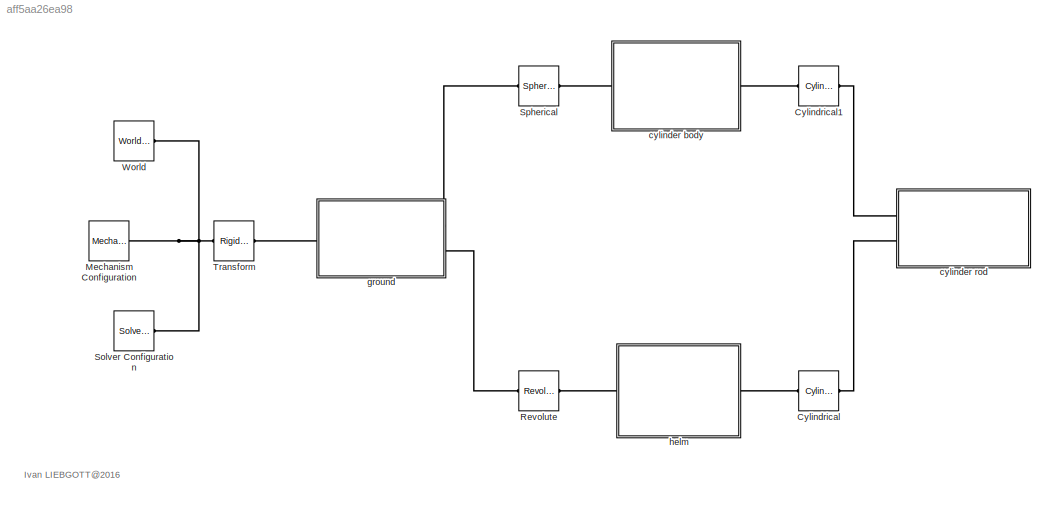
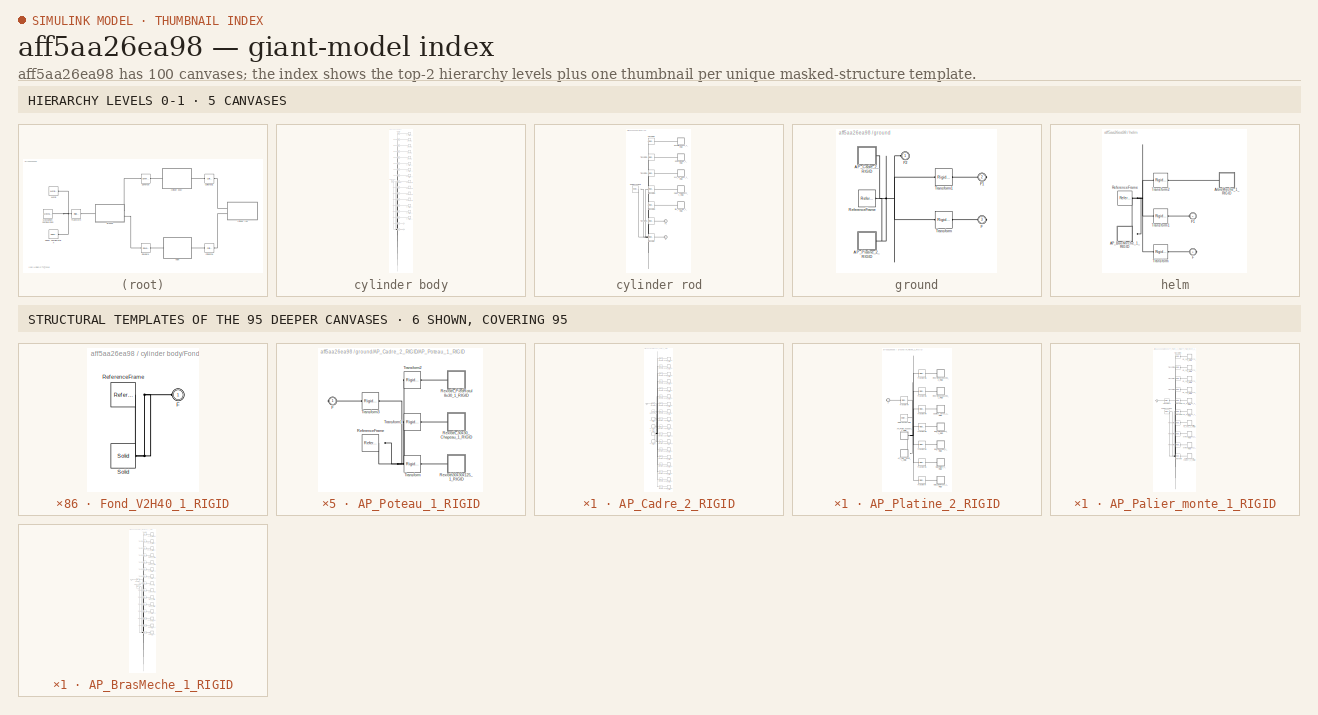
[diagram: thumbnail index - top-2 hierarchy levels (5 canvases) + 6 structural-template representatives of the remaining 95 canvases]
MODEL slx_aff5aa26ea98
KIND model
CONFIG AbsTol = auto
CONFIG FixedStep = auto
CONFIG MaxStep = auto
CONFIG MinStep = auto
CONFIG RelTol = 1e-3
CONFIG SampleTimeConstraint = Unconstrained
CONFIG Solver = ode15s
CONFIG SolverMode = Auto
CONFIG SolverName = ode15s
CONFIG StartTime = 0.0
CONFIG StopTime = 10.0
BLOCK [Reference] Cylindrical  REF=sm_lib/Joints/Cylindrical
Joint
  Ports = [0, 0, 0, 0, 0, 1, 1]
  SourceBlock = sm_lib/Joints/Cylindrical\nJoint
  SourceType = Cylindrical\nJoint
BLOCK [Reference] Cylindrical1  REF=sm_lib/Joints/Cylindrical
Joint
  Ports = [0, 0, 0, 0, 0, 1, 1]
  SourceBlock = sm_lib/Joints/Cylindrical\nJoint
  SourceType = Cylindrical\nJoint
BLOCK [Reference] Mechanism Configuration  REF=sm_lib/Utilities/Mechanism
Configuration
  Ports = [0, 0, 0, 0, 0, 0, 1]
  SourceBlock = sm_lib/Utilities/Mechanism\nConfiguration
  SourceType = Mechanism\nConfiguration
BLOCK [Reference] Revolute  REF=sm_lib/Joints/Revolute Joint
  Ports = [0, 0, 0, 0, 0, 1, 1]
  SourceBlock = sm_lib/Joints/Revolute Joint
  SourceType = Revolute Joint
BLOCK [Reference] Solver Configuration  REF=nesl_utility/Solver
Configuration
  Ports = [0, 0, 0, 0, 0, 0, 1]
  SourceBlock = nesl_utility/Solver\nConfiguration
  SourceType = Solver\nConfiguration
BLOCK [Reference] Spherical  REF=sm_lib/Joints/Spherical
Joint
  Ports = [0, 0, 0, 0, 0, 1, 1]
  SourceBlock = sm_lib/Joints/Spherical\nJoint
  SourceType = Spherical\nJoint
BLOCK [Reference] Transform  REF=sm_lib/Frames and
Transforms/Rigid
Transform
  Ports = [0, 0, 0, 0, 0, 1, 1]
  SourceBlock = sm_lib/Frames and\nTransforms/Rigid\nTransform
  SourceType = Rigid\nTransform
BLOCK [Reference] World  REF=sm_lib/Frames and
Transforms/World Frame
  Ports = [0, 0, 0, 0, 0, 0, 1]
  SourceBlock = sm_lib/Frames and\nTransforms/World Frame
  SourceType = World Frame
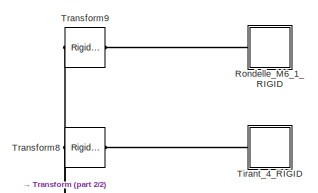
[diagram: cylinder body - part 1/2, full width, top band]
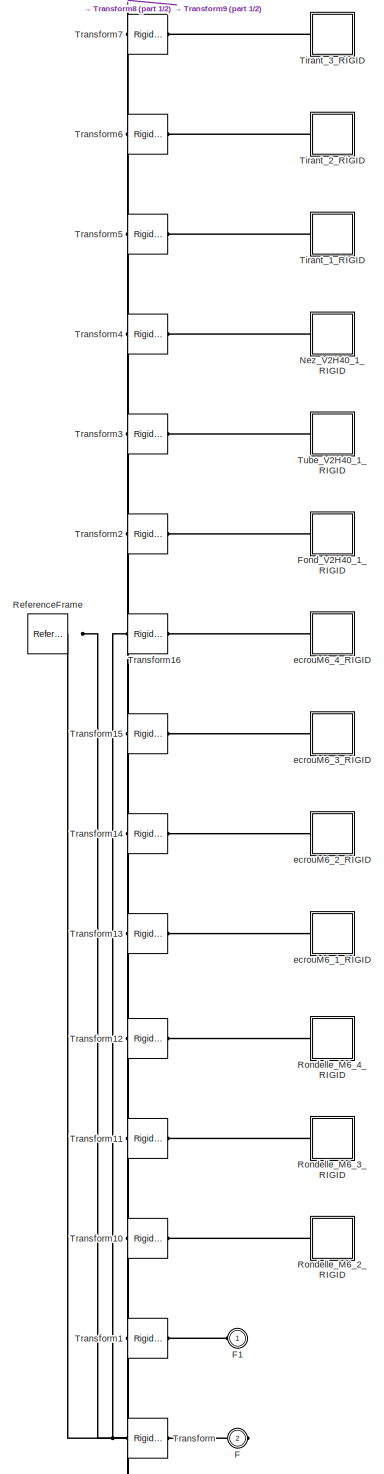
[diagram: cylinder body - part 2/2, full width, middle band]
BLOCK [SubSystem] cylinder body
  Ports = [0, 0, 0, 0, 0, 1, 1]
  RequestExecContextInheritance = off
  Variant = off
BLOCK [PMIOPort] cylinder body/F
  Port = 2
  Side = Right
BLOCK [PMIOPort] cylinder body/F1
  Port = 1
  Side = Left
BLOCK [SubSystem] cylinder body/Fond_V2H40_1_RIGID
  Ports = [0, 0, 0, 0, 0, 1]
  RequestExecContextInheritance = off
  Variant = off
BLOCK [PMIOPort] cylinder body/Fond_V2H40_1_RIGID/F
  Port = 1
  Side = Left
BLOCK [Reference] cylinder body/Fond_V2H40_1_RIGID/ReferenceFrame  REF=sm_lib/Frames and
Transforms/Reference
Frame
  Ports = [0, 0, 0, 0, 0, 0, 1]
  SourceBlock = sm_lib/Frames and\nTransforms/Reference\nFrame
  SourceType = Reference\nFrame
BLOCK [Reference] cylinder body/Fond_V2H40_1_RIGID/Solid  REF=sm_lib/Body Elements/Solid
  Ports = [0, 0, 0, 0, 0, 0, 1]
  SourceBlock = sm_lib/Body Elements/Solid
  SourceType = Solid
BLOCK [SubSystem] cylinder body/Nez_V2H40_1_RIGID
  Ports = [0, 0, 0, 0, 0, 1]
  RequestExecContextInheritance = off
  Variant = off
BLOCK [PMIOPort] cylinder body/Nez_V2H40_1_RIGID/F
  Port = 1
  Side = Left
BLOCK [Reference] cylinder body/Nez_V2H40_1_RIGID/ReferenceFrame  REF=sm_lib/Frames and
Transforms/Reference
Frame
  Ports = [0, 0, 0, 0, 0, 0, 1]
  SourceBlock = sm_lib/Frames and\nTransforms/Reference\nFrame
  SourceType = Reference\nFrame
BLOCK [Reference] cylinder body/Nez_V2H40_1_RIGID/Solid  REF=sm_lib/Body Elements/Solid
  Ports = [0, 0, 0, 0, 0, 0, 1]
  SourceBlock = sm_lib/Body Elements/Solid
  SourceType = Solid
BLOCK [Reference] cylinder body/ReferenceFrame  REF=sm_lib/Frames and
Transforms/Reference
Frame
  Ports = [0, 0, 0, 0, 0, 0, 1]
  SourceBlock = sm_lib/Frames and\nTransforms/Reference\nFrame
  SourceType = Reference\nFrame
BLOCK [SubSystem] cylinder body/Rondelle_M6_1_RIGID
  Ports = [0, 0, 0, 0, 0, 1]
  RequestExecContextInheritance = off
  Variant = off
BLOCK [PMIOPort] cylinder body/Rondelle_M6_1_RIGID/F
  Port = 1
  Side = Left
BLOCK [Reference] cylinder body/Rondelle_M6_1_RIGID/ReferenceFrame  REF=sm_lib/Frames and
Transforms/Reference
Frame
  Ports = [0, 0, 0, 0, 0, 0, 1]
  SourceBlock = sm_lib/Frames and\nTransforms/Reference\nFrame
  SourceType = Reference\nFrame
BLOCK [Reference] cylinder body/Rondelle_M6_1_RIGID/Solid  REF=sm_lib/Body Elements/Solid
  Ports = [0, 0, 0, 0, 0, 0, 1]
  SourceBlock = sm_lib/Body Elements/Solid
  SourceType = Solid
BLOCK [SubSystem] cylinder body/Rondelle_M6_2_RIGID
  Ports = [0, 0, 0, 0, 0, 1]
  RequestExecContextInheritance = off
  Variant = off
BLOCK [PMIOPort] cylinder body/Rondelle_M6_2_RIGID/F
  Port = 1
  Side = Left
BLOCK [Reference] cylinder body/Rondelle_M6_2_RIGID/ReferenceFrame  REF=sm_lib/Frames and
Transforms/Reference
Frame
  Ports = [0, 0, 0, 0, 0, 0, 1]
  SourceBlock = sm_lib/Frames and\nTransforms/Reference\nFrame
  SourceType = Reference\nFrame
BLOCK [Reference] cylinder body/Rondelle_M6_2_RIGID/Solid  REF=sm_lib/Body Elements/Solid
  Ports = [0, 0, 0, 0, 0, 0, 1]
  SourceBlock = sm_lib/Body Elements/Solid
  SourceType = Solid
BLOCK [SubSystem] cylinder body/Rondelle_M6_3_RIGID
  Ports = [0, 0, 0, 0, 0, 1]
  RequestExecContextInheritance = off
  Variant = off
BLOCK [PMIOPort] cylinder body/Rondelle_M6_3_RIGID/F
  Port = 1
  Side = Left
BLOCK [Reference] cylinder body/Rondelle_M6_3_RIGID/ReferenceFrame  REF=sm_lib/Frames and
Transforms/Reference
Frame
  Ports = [0, 0, 0, 0, 0, 0, 1]
  SourceBlock = sm_lib/Frames and\nTransforms/Reference\nFrame
  SourceType = Reference\nFrame
BLOCK [Reference] cylinder body/Rondelle_M6_3_RIGID/Solid  REF=sm_lib/Body Elements/Solid
  Ports = [0, 0, 0, 0, 0, 0, 1]
  SourceBlock = sm_lib/Body Elements/Solid
  SourceType = Solid
BLOCK [SubSystem] cylinder body/Rondelle_M6_4_RIGID
  Ports = [0, 0, 0, 0, 0, 1]
  RequestExecContextInheritance = off
  Variant = off
BLOCK [PMIOPort] cylinder body/Rondelle_M6_4_RIGID/F
  Port = 1
  Side = Left
BLOCK [Reference] cylinder body/Rondelle_M6_4_RIGID/ReferenceFrame  REF=sm_lib/Frames and
Transforms/Reference
Frame
  Ports = [0, 0, 0, 0, 0, 0, 1]
  SourceBlock = sm_lib/Frames and\nTransforms/Reference\nFrame
  SourceType = Reference\nFrame
BLOCK [Reference] cylinder body/Rondelle_M6_4_RIGID/Solid  REF=sm_lib/Body Elements/Solid
  Ports = [0, 0, 0, 0, 0, 0, 1]
  SourceBlock = sm_lib/Body Elements/Solid
  SourceType = Solid
BLOCK [SubSystem] cylinder body/Tirant_1_RIGID
  Ports = [0, 0, 0, 0, 0, 1]
  RequestExecContextInheritance = off
  Variant = off
BLOCK [PMIOPort] cylinder body/Tirant_1_RIGID/F
  Port = 1
  Side = Left
BLOCK [Reference] cylinder body/Tirant_1_RIGID/ReferenceFrame  REF=sm_lib/Frames and
Transforms/Reference
Frame
  Ports = [0, 0, 0, 0, 0, 0, 1]
  SourceBlock = sm_lib/Frames and\nTransforms/Reference\nFrame
  SourceType = Reference\nFrame
BLOCK [Reference] cylinder body/Tirant_1_RIGID/Solid  REF=sm_lib/Body Elements/Solid
  Ports = [0, 0, 0, 0, 0, 0, 1]
  SourceBlock = sm_lib/Body Elements/Solid
  SourceType = Solid
BLOCK [SubSystem] cylinder body/Tirant_2_RIGID
  Ports = [0, 0, 0, 0, 0, 1]
  RequestExecContextInheritance = off
  Variant = off
BLOCK [PMIOPort] cylinder body/Tirant_2_RIGID/F
  Port = 1
  Side = Left
BLOCK [Reference] cylinder body/Tirant_2_RIGID/ReferenceFrame  REF=sm_lib/Frames and
Transforms/Reference
Frame
  Ports = [0, 0, 0, 0, 0, 0, 1]
  SourceBlock = sm_lib/Frames and\nTransforms/Reference\nFrame
  SourceType = Reference\nFrame
BLOCK [Reference] cylinder body/Tirant_2_RIGID/Solid  REF=sm_lib/Body Elements/Solid
  Ports = [0, 0, 0, 0, 0, 0, 1]
  SourceBlock = sm_lib/Body Elements/Solid
  SourceType = Solid
BLOCK [SubSystem] cylinder body/Tirant_3_RIGID
  Ports = [0, 0, 0, 0, 0, 1]
  RequestExecContextInheritance = off
  Variant = off
BLOCK [PMIOPort] cylinder body/Tirant_3_RIGID/F
  Port = 1
  Side = Left
BLOCK [Reference] cylinder body/Tirant_3_RIGID/ReferenceFrame  REF=sm_lib/Frames and
Transforms/Reference
Frame
  Ports = [0, 0, 0, 0, 0, 0, 1]
  SourceBlock = sm_lib/Frames and\nTransforms/Reference\nFrame
  SourceType = Reference\nFrame
BLOCK [Reference] cylinder body/Tirant_3_RIGID/Solid  REF=sm_lib/Body Elements/Solid
  Ports = [0, 0, 0, 0, 0, 0, 1]
  SourceBlock = sm_lib/Body Elements/Solid
  SourceType = Solid
BLOCK [SubSystem] cylinder body/Tirant_4_RIGID
  Ports = [0, 0, 0, 0, 0, 1]
  RequestExecContextInheritance = off
  Variant = off
BLOCK [PMIOPort] cylinder body/Tirant_4_RIGID/F
  Port = 1
  Side = Left
BLOCK [Reference] cylinder body/Tirant_4_RIGID/ReferenceFrame  REF=sm_lib/Frames and
Transforms/Reference
Frame
  Ports = [0, 0, 0, 0, 0, 0, 1]
  SourceBlock = sm_lib/Frames and\nTransforms/Reference\nFrame
  SourceType = Reference\nFrame
BLOCK [Reference] cylinder body/Tirant_4_RIGID/Solid  REF=sm_lib/Body Elements/Solid
  Ports = [0, 0, 0, 0, 0, 0, 1]
  SourceBlock = sm_lib/Body Elements/Solid
  SourceType = Solid
BLOCK [Reference] cylinder body/Transform  REF=sm_lib/Frames and
Transforms/Rigid
Transform
  Ports = [0, 0, 0, 0, 0, 1, 1]
  SourceBlock = sm_lib/Frames and\nTransforms/Rigid\nTransform
  SourceType = Rigid\nTransform
BLOCK [Reference] cylinder body/Transform1  REF=sm_lib/Frames and
Transforms/Rigid
Transform
  Ports = [0, 0, 0, 0, 0, 1, 1]
  SourceBlock = sm_lib/Frames and\nTransforms/Rigid\nTransform
  SourceType = Rigid\nTransform
BLOCK [Reference] cylinder body/Transform10  REF=sm_lib/Frames and
Transforms/Rigid
Transform
  Ports = [0, 0, 0, 0, 0, 1, 1]
  SourceBlock = sm_lib/Frames and\nTransforms/Rigid\nTransform
  SourceType = Rigid\nTransform
BLOCK [Reference] cylinder body/Transform11  REF=sm_lib/Frames and
Transforms/Rigid
Transform
  Ports = [0, 0, 0, 0, 0, 1, 1]
  SourceBlock = sm_lib/Frames and\nTransforms/Rigid\nTransform
  SourceType = Rigid\nTransform
BLOCK [Reference] cylinder body/Transform12  REF=sm_lib/Frames and
Transforms/Rigid
Transform
  Ports = [0, 0, 0, 0, 0, 1, 1]
  SourceBlock = sm_lib/Frames and\nTransforms/Rigid\nTransform
  SourceType = Rigid\nTransform
BLOCK [Reference] cylinder body/Transform13  REF=sm_lib/Frames and
Transforms/Rigid
Transform
  Ports = [0, 0, 0, 0, 0, 1, 1]
  SourceBlock = sm_lib/Frames and\nTransforms/Rigid\nTransform
  SourceType = Rigid\nTransform
BLOCK [Reference] cylinder body/Transform14  REF=sm_lib/Frames and
Transforms/Rigid
Transform
  Ports = [0, 0, 0, 0, 0, 1, 1]
  SourceBlock = sm_lib/Frames and\nTransforms/Rigid\nTransform
  SourceType = Rigid\nTransform
BLOCK [Reference] cylinder body/Transform15  REF=sm_lib/Frames and
Transforms/Rigid
Transform
  Ports = [0, 0, 0, 0, 0, 1, 1]
  SourceBlock = sm_lib/Frames and\nTransforms/Rigid\nTransform
  SourceType = Rigid\nTransform
BLOCK [Reference] cylinder body/Transform16  REF=sm_lib/Frames and
Transforms/Rigid
Transform
  Ports = [0, 0, 0, 0, 0, 1, 1]
  SourceBlock = sm_lib/Frames and\nTransforms/Rigid\nTransform
  SourceType = Rigid\nTransform
BLOCK [Reference] cylinder body/Transform2  REF=sm_lib/Frames and
Transforms/Rigid
Transform
  Ports = [0, 0, 0, 0, 0, 1, 1]
  SourceBlock = sm_lib/Frames and\nTransforms/Rigid\nTransform
  SourceType = Rigid\nTransform
BLOCK [Reference] cylinder body/Transform3  REF=sm_lib/Frames and
Transforms/Rigid
Transform
  Ports = [0, 0, 0, 0, 0, 1, 1]
  SourceBlock = sm_lib/Frames and\nTransforms/Rigid\nTransform
  SourceType = Rigid\nTransform
BLOCK [Reference] cylinder body/Transform4  REF=sm_lib/Frames and
Transforms/Rigid
Transform
  Ports = [0, 0, 0, 0, 0, 1, 1]
  SourceBlock = sm_lib/Frames and\nTransforms/Rigid\nTransform
  SourceType = Rigid\nTransform
BLOCK [Reference] cylinder body/Transform5  REF=sm_lib/Frames and
Transforms/Rigid
Transform
  Ports = [0, 0, 0, 0, 0, 1, 1]
  SourceBlock = sm_lib/Frames and\nTransforms/Rigid\nTransform
  SourceType = Rigid\nTransform
BLOCK [Reference] cylinder body/Transform6  REF=sm_lib/Frames and
Transforms/Rigid
Transform
  Ports = [0, 0, 0, 0, 0, 1, 1]
  SourceBlock = sm_lib/Frames and\nTransforms/Rigid\nTransform
  SourceType = Rigid\nTransform
BLOCK [Reference] cylinder body/Transform7  REF=sm_lib/Frames and
Transforms/Rigid
Transform
  Ports = [0, 0, 0, 0, 0, 1, 1]
  SourceBlock = sm_lib/Frames and\nTransforms/Rigid\nTransform
  SourceType = Rigid\nTransform
BLOCK [Reference] cylinder body/Transform8  REF=sm_lib/Frames and
Transforms/Rigid
Transform
  Ports = [0, 0, 0, 0, 0, 1, 1]
  SourceBlock = sm_lib/Frames and\nTransforms/Rigid\nTransform
  SourceType = Rigid\nTransform
BLOCK [Reference] cylinder body/Transform9  REF=sm_lib/Frames and
Transforms/Rigid
Transform
  Ports = [0, 0, 0, 0, 0, 1, 1]
  SourceBlock = sm_lib/Frames and\nTransforms/Rigid\nTransform
  SourceType = Rigid\nTransform
BLOCK [SubSystem] cylinder body/Tube_V2H40_1_RIGID
  Ports = [0, 0, 0, 0, 0, 1]
  RequestExecContextInheritance = off
  Variant = off
BLOCK [PMIOPort] cylinder body/Tube_V2H40_1_RIGID/F
  Port = 1
  Side = Left
BLOCK [Reference] cylinder body/Tube_V2H40_1_RIGID/ReferenceFrame  REF=sm_lib/Frames and
Transforms/Reference
Frame
  Ports = [0, 0, 0, 0, 0, 0, 1]
  SourceBlock = sm_lib/Frames and\nTransforms/Reference\nFrame
  SourceType = Reference\nFrame
BLOCK [Reference] cylinder body/Tube_V2H40_1_RIGID/Solid  REF=sm_lib/Body Elements/Solid
  Ports = [0, 0, 0, 0, 0, 0, 1]
  SourceBlock = sm_lib/Body Elements/Solid
  SourceType = Solid
BLOCK [SubSystem] cylinder body/ecrouM6_1_RIGID
  Ports = [0, 0, 0, 0, 0, 1]
  RequestExecContextInheritance = off
  Variant = off
BLOCK [PMIOPort] cylinder body/ecrouM6_1_RIGID/F
  Port = 1
  Side = Left
BLOCK [Reference] cylinder body/ecrouM6_1_RIGID/ReferenceFrame  REF=sm_lib/Frames and
Transforms/Reference
Frame
  Ports = [0, 0, 0, 0, 0, 0, 1]
  SourceBlock = sm_lib/Frames and\nTransforms/Reference\nFrame
  SourceType = Reference\nFrame
BLOCK [Reference] cylinder body/ecrouM6_1_RIGID/Solid  REF=sm_lib/Body Elements/Solid
  Ports = [0, 0, 0, 0, 0, 0, 1]
  SourceBlock = sm_lib/Body Elements/Solid
  SourceType = Solid
BLOCK [SubSystem] cylinder body/ecrouM6_2_RIGID
  Ports = [0, 0, 0, 0, 0, 1]
  RequestExecContextInheritance = off
  Variant = off
BLOCK [PMIOPort] cylinder body/ecrouM6_2_RIGID/F
  Port = 1
  Side = Left
BLOCK [Reference] cylinder body/ecrouM6_2_RIGID/ReferenceFrame  REF=sm_lib/Frames and
Transforms/Reference
Frame
  Ports = [0, 0, 0, 0, 0, 0, 1]
  SourceBlock = sm_lib/Frames and\nTransforms/Reference\nFrame
  SourceType = Reference\nFrame
BLOCK [Reference] cylinder body/ecrouM6_2_RIGID/Solid  REF=sm_lib/Body Elements/Solid
  Ports = [0, 0, 0, 0, 0, 0, 1]
  SourceBlock = sm_lib/Body Elements/Solid
  SourceType = Solid
BLOCK [SubSystem] cylinder body/ecrouM6_3_RIGID
  Ports = [0, 0, 0, 0, 0, 1]
  RequestExecContextInheritance = off
  Variant = off
BLOCK [PMIOPort] cylinder body/ecrouM6_3_RIGID/F
  Port = 1
  Side = Left
BLOCK [Reference] cylinder body/ecrouM6_3_RIGID/ReferenceFrame  REF=sm_lib/Frames and
Transforms/Reference
Frame
  Ports = [0, 0, 0, 0, 0, 0, 1]
  SourceBlock = sm_lib/Frames and\nTransforms/Reference\nFrame
  SourceType = Reference\nFrame
BLOCK [Reference] cylinder body/ecrouM6_3_RIGID/Solid  REF=sm_lib/Body Elements/Solid
  Ports = [0, 0, 0, 0, 0, 0, 1]
  SourceBlock = sm_lib/Body Elements/Solid
  SourceType = Solid
BLOCK [SubSystem] cylinder body/ecrouM6_4_RIGID
  Ports = [0, 0, 0, 0, 0, 1]
  RequestExecContextInheritance = off
  Variant = off
BLOCK [PMIOPort] cylinder body/ecrouM6_4_RIGID/F
  Port = 1
  Side = Left
BLOCK [Reference] cylinder body/ecrouM6_4_RIGID/ReferenceFrame  REF=sm_lib/Frames and
Transforms/Reference
Frame
  Ports = [0, 0, 0, 0, 0, 0, 1]
  SourceBlock = sm_lib/Frames and\nTransforms/Reference\nFrame
  SourceType = Reference\nFrame
BLOCK [Reference] cylinder body/ecrouM6_4_RIGID/Solid  REF=sm_lib/Body Elements/Solid
  Ports = [0, 0, 0, 0, 0, 0, 1]
  SourceBlock = sm_lib/Body Elements/Solid
  SourceType = Solid
BLOCK [SubSystem] cylinder rod
  Ports = [0, 0, 0, 0, 0, 2]
  RequestExecContextInheritance = off
  Variant = off
BLOCK [SubSystem] cylinder rod/EmboutRotule_1_RIGID
  Ports = [0, 0, 0, 0, 0, 1]
  RequestExecContextInheritance = off
  Variant = off
BLOCK [PMIOPort] cylinder rod/EmboutRotule_1_RIGID/F
  Port = 1
  Side = Left
BLOCK [Reference] cylinder rod/EmboutRotule_1_RIGID/ReferenceFrame  REF=sm_lib/Frames and
Transforms/Reference
Frame
  Ports = [0, 0, 0, 0, 0, 0, 1]
  SourceBlock = sm_lib/Frames and\nTransforms/Reference\nFrame
  SourceType = Reference\nFrame
BLOCK [Reference] cylinder rod/EmboutRotule_1_RIGID/Solid  REF=sm_lib/Body Elements/Solid
  Ports = [0, 0, 0, 0, 0, 0, 1]
  SourceBlock = sm_lib/Body Elements/Solid
  SourceType = Solid
BLOCK [PMIOPort] cylinder rod/F
  Port = 2
  Side = Left
BLOCK [PMIOPort] cylinder rod/F1
  Port = 1
  Side = Left
BLOCK [SubSystem] cylinder rod/GoupilleFendue_1_RIGID
  Ports = [0, 0, 0, 0, 0, 1]
  RequestExecContextInheritance = off
  Variant = off
BLOCK [PMIOPort] cylinder rod/GoupilleFendue_1_RIGID/F
  Port = 1
  Side = Left
BLOCK [Reference] cylinder rod/GoupilleFendue_1_RIGID/ReferenceFrame  REF=sm_lib/Frames and
Transforms/Reference
Frame
  Ports = [0, 0, 0, 0, 0, 0, 1]
  SourceBlock = sm_lib/Frames and\nTransforms/Reference\nFrame
  SourceType = Reference\nFrame
BLOCK [Reference] cylinder rod/GoupilleFendue_1_RIGID/Solid  REF=sm_lib/Body Elements/Solid
  Ports = [0, 0, 0, 0, 0, 0, 1]
  SourceBlock = sm_lib/Body Elements/Solid
  SourceType = Solid
BLOCK [SubSystem] cylinder rod/Piston_VHM40DTP_1_RIGID
  Ports = [0, 0, 0, 0, 0, 1]
  RequestExecContextInheritance = off
  Variant = off
BLOCK [PMIOPort] cylinder rod/Piston_VHM40DTP_1_RIGID/F
  Port = 1
  Side = Left
BLOCK [Reference] cylinder rod/Piston_VHM40DTP_1_RIGID/ReferenceFrame  REF=sm_lib/Frames and
Transforms/Reference
Frame
  Ports = [0, 0, 0, 0, 0, 0, 1]
  SourceBlock = sm_lib/Frames and\nTransforms/Reference\nFrame
  SourceType = Reference\nFrame
BLOCK [Reference] cylinder rod/Piston_VHM40DTP_1_RIGID/Solid  REF=sm_lib/Body Elements/Solid
  Ports = [0, 0, 0, 0, 0, 0, 1]
  SourceBlock = sm_lib/Body Elements/Solid
  SourceType = Solid
BLOCK [Reference] cylinder rod/ReferenceFrame  REF=sm_lib/Frames and
Transforms/Reference
Frame
  Ports = [0, 0, 0, 0, 0, 0, 1]
  SourceBlock = sm_lib/Frames and\nTransforms/Reference\nFrame
  SourceType = Reference\nFrame
BLOCK [Reference] cylinder rod/Transform  REF=sm_lib/Frames and
Transforms/Rigid
Transform
  Ports = [0, 0, 0, 0, 0, 1, 1]
  SourceBlock = sm_lib/Frames and\nTransforms/Rigid\nTransform
  SourceType = Rigid\nTransform
BLOCK [Reference] cylinder rod/Transform1  REF=sm_lib/Frames and
Transforms/Rigid
Transform
  Ports = [0, 0, 0, 0, 0, 1, 1]
  SourceBlock = sm_lib/Frames and\nTransforms/Rigid\nTransform
  SourceType = Rigid\nTransform
BLOCK [Reference] cylinder rod/Transform2  REF=sm_lib/Frames and
Transforms/Rigid
Transform
  Ports = [0, 0, 0, 0, 0, 1, 1]
  SourceBlock = sm_lib/Frames and\nTransforms/Rigid\nTransform
  SourceType = Rigid\nTransform
BLOCK [Reference] cylinder rod/Transform3  REF=sm_lib/Frames and
Transforms/Rigid
Transform
  Ports = [0, 0, 0, 0, 0, 1, 1]
  SourceBlock = sm_lib/Frames and\nTransforms/Rigid\nTransform
  SourceType = Rigid\nTransform
BLOCK [Reference] cylinder rod/Transform4  REF=sm_lib/Frames and
Transforms/Rigid
Transform
  Ports = [0, 0, 0, 0, 0, 1, 1]
  SourceBlock = sm_lib/Frames and\nTransforms/Rigid\nTransform
  SourceType = Rigid\nTransform
BLOCK [Reference] cylinder rod/Transform5  REF=sm_lib/Frames and
Transforms/Rigid
Transform
  Ports = [0, 0, 0, 0, 0, 1, 1]
  SourceBlock = sm_lib/Frames and\nTransforms/Rigid\nTransform
  SourceType = Rigid\nTransform
BLOCK [Reference] cylinder rod/Transform6  REF=sm_lib/Frames and
Transforms/Rigid
Transform
  Ports = [0, 0, 0, 0, 0, 1, 1]
  SourceBlock = sm_lib/Frames and\nTransforms/Rigid\nTransform
  SourceType = Rigid\nTransform
BLOCK [SubSystem] cylinder rod/axe_de_piston_1_RIGID
  Ports = [0, 0, 0, 0, 0, 1]
  RequestExecContextInheritance = off
  Variant = off
BLOCK [PMIOPort] cylinder rod/axe_de_piston_1_RIGID/F
  Port = 1
  Side = Left
BLOCK [Reference] cylinder rod/axe_de_piston_1_RIGID/ReferenceFrame  REF=sm_lib/Frames and
Transforms/Reference
Frame
  Ports = [0, 0, 0, 0, 0, 0, 1]
  SourceBlock = sm_lib/Frames and\nTransforms/Reference\nFrame
  SourceType = Reference\nFrame
BLOCK [Reference] cylinder rod/axe_de_piston_1_RIGID/Solid  REF=sm_lib/Body Elements/Solid
  Ports = [0, 0, 0, 0, 0, 0, 1]
  SourceBlock = sm_lib/Body Elements/Solid
  SourceType = Solid
BLOCK [SubSystem] cylinder rod/tige_speciale_1_RIGID
  Ports = [0, 0, 0, 0, 0, 1]
  RequestExecContextInheritance = off
  Variant = off
BLOCK [PMIOPort] cylinder rod/tige_speciale_1_RIGID/F
  Port = 1
  Side = Left
BLOCK [Reference] cylinder rod/tige_speciale_1_RIGID/ReferenceFrame  REF=sm_lib/Frames and
Transforms/Reference
Frame
  Ports = [0, 0, 0, 0, 0, 0, 1]
  SourceBlock = sm_lib/Frames and\nTransforms/Reference\nFrame
  SourceType = Reference\nFrame
BLOCK [Reference] cylinder rod/tige_speciale_1_RIGID/Solid  REF=sm_lib/Body Elements/Solid
  Ports = [0, 0, 0, 0, 0, 0, 1]
  SourceBlock = sm_lib/Body Elements/Solid
  SourceType = Solid
BLOCK [SubSystem] ground
  Ports = [0, 0, 0, 0, 0, 1, 2]
  RequestExecContextInheritance = off
  Variant = off
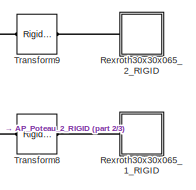
[diagram: ground/AP_Cadre_2_RIGID - part 1/3, top right region]
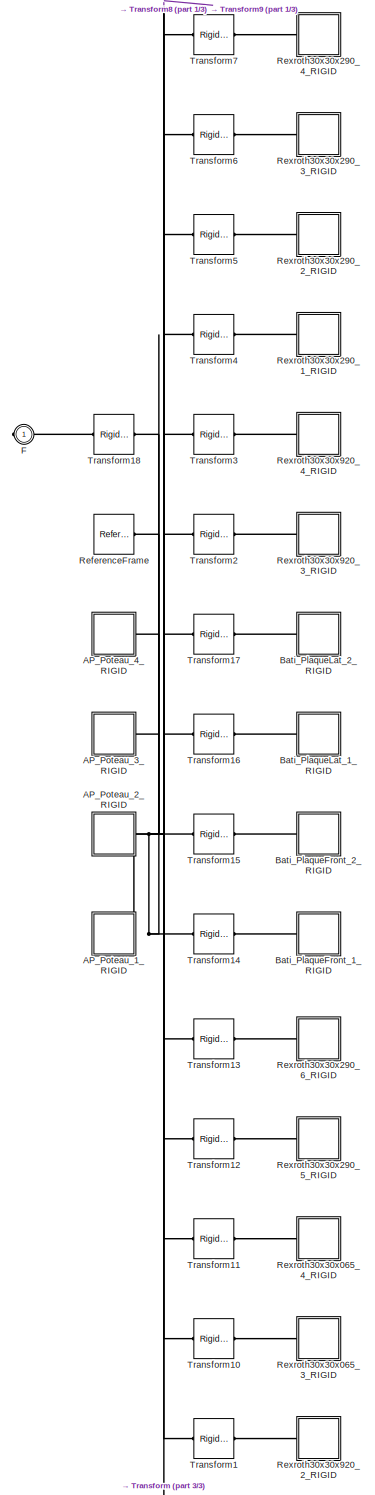
[diagram: ground/AP_Cadre_2_RIGID - part 2/3, most of the canvas]
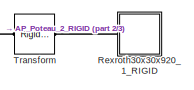
[diagram: ground/AP_Cadre_2_RIGID - part 3/3, bottom right region]
BLOCK [SubSystem] ground/AP_Cadre_2_RIGID
  Ports = [0, 0, 0, 0, 0, 0, 1]
  RequestExecContextInheritance = off
  Variant = off
BLOCK [SubSystem] ground/AP_Cadre_2_RIGID/AP_Poteau_1_RIGID
  Ports = [0, 0, 0, 0, 0, 0, 1]
  RequestExecContextInheritance = off
  Variant = off
BLOCK [PMIOPort] ground/AP_Cadre_2_RIGID/AP_Poteau_1_RIGID/F
  Port = 1
  Side = Right
BLOCK [Reference] ground/AP_Cadre_2_RIGID/AP_Poteau_1_RIGID/ReferenceFrame  REF=sm_lib/Frames and
Transforms/Reference
Frame
  Ports = [0, 0, 0, 0, 0, 0, 1]
  SourceBlock = sm_lib/Frames and\nTransforms/Reference\nFrame
  SourceType = Reference\nFrame
BLOCK [SubSystem] ground/AP_Cadre_2_RIGID/AP_Poteau_1_RIGID/Rexroth30x30x125_1_RIGID
  Ports = [0, 0, 0, 0, 0, 1]
  RequestExecContextInheritance = off
  Variant = off
BLOCK [PMIOPort] ground/AP_Cadre_2_RIGID/AP_Poteau_1_RIGID/Rexroth30x30x125_1_RIGID/F
  Port = 1
  Side = Left
BLOCK [Reference] ground/AP_Cadre_2_RIGID/AP_Poteau_1_RIGID/Rexroth30x30x125_1_RIGID/ReferenceFrame  REF=sm_lib/Frames and
Transforms/Reference
Frame
  Ports = [0, 0, 0, 0, 0, 0, 1]
  SourceBlock = sm_lib/Frames and\nTransforms/Reference\nFrame
  SourceType = Reference\nFrame
BLOCK [Reference] ground/AP_Cadre_2_RIGID/AP_Poteau_1_RIGID/Rexroth30x30x125_1_RIGID/Solid  REF=sm_lib/Body Elements/Solid
  Ports = [0, 0, 0, 0, 0, 0, 1]
  SourceBlock = sm_lib/Body Elements/Solid
  SourceType = Solid
BLOCK [SubSystem] ground/AP_Cadre_2_RIGID/AP_Poteau_1_RIGID/Rexroth_30x30_Chapeau_1_RIGID
  Ports = [0, 0, 0, 0, 0, 1]
  RequestExecContextInheritance = off
  Variant = off
BLOCK [PMIOPort] ground/AP_Cadre_2_RIGID/AP_Poteau_1_RIGID/Rexroth_30x30_Chapeau_1_RIGID/F
  Port = 1
  Side = Left
BLOCK [Reference] ground/AP_Cadre_2_RIGID/AP_Poteau_1_RIGID/Rexroth_30x30_Chapeau_1_RIGID/ReferenceFrame  REF=sm_lib/Frames and
Transforms/Reference
Frame
  Ports = [0, 0, 0, 0, 0, 0, 1]
  SourceBlock = sm_lib/Frames and\nTransforms/Reference\nFrame
  SourceType = Reference\nFrame
BLOCK [Reference] ground/AP_Cadre_2_RIGID/AP_Poteau_1_RIGID/Rexroth_30x30_Chapeau_1_RIGID/Solid  REF=sm_lib/Body Elements/Solid
  Ports = [0, 0, 0, 0, 0, 0, 1]
  SourceBlock = sm_lib/Body Elements/Solid
  SourceType = Solid
BLOCK [SubSystem] ground/AP_Cadre_2_RIGID/AP_Poteau_1_RIGID/Rexroth_PiedRotul8x30_1_RIGID
  Ports = [0, 0, 0, 0, 0, 1]
  RequestExecContextInheritance = off
  Variant = off
BLOCK [PMIOPort] ground/AP_Cadre_2_RIGID/AP_Poteau_1_RIGID/Rexroth_PiedRotul8x30_1_RIGID/F
  Port = 1
  Side = Left
BLOCK [Reference] ground/AP_Cadre_2_RIGID/AP_Poteau_1_RIGID/Rexroth_PiedRotul8x30_1_RIGID/ReferenceFrame  REF=sm_lib/Frames and
Transforms/Reference
Frame
  Ports = [0, 0, 0, 0, 0, 0, 1]
  SourceBlock = sm_lib/Frames and\nTransforms/Reference\nFrame
  SourceType = Reference\nFrame
BLOCK [Reference] ground/AP_Cadre_2_RIGID/AP_Poteau_1_RIGID/Rexroth_PiedRotul8x30_1_RIGID/Solid  REF=sm_lib/Body Elements/Solid
  Ports = [0, 0, 0, 0, 0, 0, 1]
  SourceBlock = sm_lib/Body Elements/Solid
  SourceType = Solid
BLOCK [Reference] ground/AP_Cadre_2_RIGID/AP_Poteau_1_RIGID/Transform  REF=sm_lib/Frames and
Transforms/Rigid
Transform
  Ports = [0, 0, 0, 0, 0, 1, 1]
  SourceBlock = sm_lib/Frames and\nTransforms/Rigid\nTransform
  SourceType = Rigid\nTransform
BLOCK [Reference] ground/AP_Cadre_2_RIGID/AP_Poteau_1_RIGID/Transform1  REF=sm_lib/Frames and
Transforms/Rigid
Transform
  Ports = [0, 0, 0, 0, 0, 1, 1]
  SourceBlock = sm_lib/Frames and\nTransforms/Rigid\nTransform
  SourceType = Rigid\nTransform
BLOCK [Reference] ground/AP_Cadre_2_RIGID/AP_Poteau_1_RIGID/Transform2  REF=sm_lib/Frames and
Transforms/Rigid
Transform
  Ports = [0, 0, 0, 0, 0, 1, 1]
  SourceBlock = sm_lib/Frames and\nTransforms/Rigid\nTransform
  SourceType = Rigid\nTransform
BLOCK [Reference] ground/AP_Cadre_2_RIGID/AP_Poteau_1_RIGID/Transform3  REF=sm_lib/Frames and
Transforms/Rigid
Transform
  Ports = [0, 0, 0, 0, 0, 1, 1]
  SourceBlock = sm_lib/Frames and\nTransforms/Rigid\nTransform
  SourceType = Rigid\nTransform
BLOCK [SubSystem] ground/AP_Cadre_2_RIGID/AP_Poteau_2_RIGID
  Ports = [0, 0, 0, 0, 0, 0, 1]
  RequestExecContextInheritance = off
  Variant = off
BLOCK [PMIOPort] ground/AP_Cadre_2_RIGID/AP_Poteau_2_RIGID/F
  Port = 1
  Side = Right
BLOCK [Reference] ground/AP_Cadre_2_RIGID/AP_Poteau_2_RIGID/ReferenceFrame  REF=sm_lib/Frames and
Transforms/Reference
Frame
  Ports = [0, 0, 0, 0, 0, 0, 1]
  SourceBlock = sm_lib/Frames and\nTransforms/Reference\nFrame
  SourceType = Reference\nFrame
BLOCK [SubSystem] ground/AP_Cadre_2_RIGID/AP_Poteau_2_RIGID/Rexroth30x30x125_1_RIGID
  Ports = [0, 0, 0, 0, 0, 1]
  RequestExecContextInheritance = off
  Variant = off
BLOCK [PMIOPort] ground/AP_Cadre_2_RIGID/AP_Poteau_2_RIGID/Rexroth30x30x125_1_RIGID/F
  Port = 1
  Side = Left
BLOCK [Reference] ground/AP_Cadre_2_RIGID/AP_Poteau_2_RIGID/Rexroth30x30x125_1_RIGID/ReferenceFrame  REF=sm_lib/Frames and
Transforms/Reference
Frame
  Ports = [0, 0, 0, 0, 0, 0, 1]
  SourceBlock = sm_lib/Frames and\nTransforms/Reference\nFrame
  SourceType = Reference\nFrame
BLOCK [Reference] ground/AP_Cadre_2_RIGID/AP_Poteau_2_RIGID/Rexroth30x30x125_1_RIGID/Solid  REF=sm_lib/Body Elements/Solid
  Ports = [0, 0, 0, 0, 0, 0, 1]
  SourceBlock = sm_lib/Body Elements/Solid
  SourceType = Solid
BLOCK [SubSystem] ground/AP_Cadre_2_RIGID/AP_Poteau_2_RIGID/Rexroth_30x30_Chapeau_1_RIGID
  Ports = [0, 0, 0, 0, 0, 1]
  RequestExecContextInheritance = off
  Variant = off
BLOCK [PMIOPort] ground/AP_Cadre_2_RIGID/AP_Poteau_2_RIGID/Rexroth_30x30_Chapeau_1_RIGID/F
  Port = 1
  Side = Left
BLOCK [Reference] ground/AP_Cadre_2_RIGID/AP_Poteau_2_RIGID/Rexroth_30x30_Chapeau_1_RIGID/ReferenceFrame  REF=sm_lib/Frames and
Transforms/Reference
Frame
  Ports = [0, 0, 0, 0, 0, 0, 1]
  SourceBlock = sm_lib/Frames and\nTransforms/Reference\nFrame
  SourceType = Reference\nFrame
BLOCK [Reference] ground/AP_Cadre_2_RIGID/AP_Poteau_2_RIGID/Rexroth_30x30_Chapeau_1_RIGID/Solid  REF=sm_lib/Body Elements/Solid
  Ports = [0, 0, 0, 0, 0, 0, 1]
  SourceBlock = sm_lib/Body Elements/Solid
  SourceType = Solid
BLOCK [SubSystem] ground/AP_Cadre_2_RIGID/AP_Poteau_2_RIGID/Rexroth_PiedRotul8x30_1_RIGID
  Ports = [0, 0, 0, 0, 0, 1]
  RequestExecContextInheritance = off
  Variant = off
BLOCK [PMIOPort] ground/AP_Cadre_2_RIGID/AP_Poteau_2_RIGID/Rexroth_PiedRotul8x30_1_RIGID/F
  Port = 1
  Side = Left
BLOCK [Reference] ground/AP_Cadre_2_RIGID/AP_Poteau_2_RIGID/Rexroth_PiedRotul8x30_1_RIGID/ReferenceFrame  REF=sm_lib/Frames and
Transforms/Reference
Frame
  Ports = [0, 0, 0, 0, 0, 0, 1]
  SourceBlock = sm_lib/Frames and\nTransforms/Reference\nFrame
  SourceType = Reference\nFrame
BLOCK [Reference] ground/AP_Cadre_2_RIGID/AP_Poteau_2_RIGID/Rexroth_PiedRotul8x30_1_RIGID/Solid  REF=sm_lib/Body Elements/Solid
  Ports = [0, 0, 0, 0, 0, 0, 1]
  SourceBlock = sm_lib/Body Elements/Solid
  SourceType = Solid
BLOCK [Reference] ground/AP_Cadre_2_RIGID/AP_Poteau_2_RIGID/Transform  REF=sm_lib/Frames and
Transforms/Rigid
Transform
  Ports = [0, 0, 0, 0, 0, 1, 1]
  SourceBlock = sm_lib/Frames and\nTransforms/Rigid\nTransform
  SourceType = Rigid\nTransform
BLOCK [Reference] ground/AP_Cadre_2_RIGID/AP_Poteau_2_RIGID/Transform1  REF=sm_lib/Frames and
Transforms/Rigid
Transform
  Ports = [0, 0, 0, 0, 0, 1, 1]
  SourceBlock = sm_lib/Frames and\nTransforms/Rigid\nTransform
  SourceType = Rigid\nTransform
BLOCK [Reference] ground/AP_Cadre_2_RIGID/AP_Poteau_2_RIGID/Transform2  REF=sm_lib/Frames and
Transforms/Rigid
Transform
  Ports = [0, 0, 0, 0, 0, 1, 1]
  SourceBlock = sm_lib/Frames and\nTransforms/Rigid\nTransform
  SourceType = Rigid\nTransform
BLOCK [Reference] ground/AP_Cadre_2_RIGID/AP_Poteau_2_RIGID/Transform3  REF=sm_lib/Frames and
Transforms/Rigid
Transform
  Ports = [0, 0, 0, 0, 0, 1, 1]
  SourceBlock = sm_lib/Frames and\nTransforms/Rigid\nTransform
  SourceType = Rigid\nTransform
BLOCK [SubSystem] ground/AP_Cadre_2_RIGID/AP_Poteau_3_RIGID
  Ports = [0, 0, 0, 0, 0, 0, 1]
  RequestExecContextInheritance = off
  Variant = off
BLOCK [PMIOPort] ground/AP_Cadre_2_RIGID/AP_Poteau_3_RIGID/F
  Port = 1
  Side = Right
BLOCK [Reference] ground/AP_Cadre_2_RIGID/AP_Poteau_3_RIGID/ReferenceFrame  REF=sm_lib/Frames and
Transforms/Reference
Frame
  Ports = [0, 0, 0, 0, 0, 0, 1]
  SourceBlock = sm_lib/Frames and\nTransforms/Reference\nFrame
  SourceType = Reference\nFrame
BLOCK [SubSystem] ground/AP_Cadre_2_RIGID/AP_Poteau_3_RIGID/Rexroth30x30x125_1_RIGID
  Ports = [0, 0, 0, 0, 0, 1]
  RequestExecContextInheritance = off
  Variant = off
BLOCK [PMIOPort] ground/AP_Cadre_2_RIGID/AP_Poteau_3_RIGID/Rexroth30x30x125_1_RIGID/F
  Port = 1
  Side = Left
BLOCK [Reference] ground/AP_Cadre_2_RIGID/AP_Poteau_3_RIGID/Rexroth30x30x125_1_RIGID/ReferenceFrame  REF=sm_lib/Frames and
Transforms/Reference
Frame
  Ports = [0, 0, 0, 0, 0, 0, 1]
  SourceBlock = sm_lib/Frames and\nTransforms/Reference\nFrame
  SourceType = Reference\nFrame
BLOCK [Reference] ground/AP_Cadre_2_RIGID/AP_Poteau_3_RIGID/Rexroth30x30x125_1_RIGID/Solid  REF=sm_lib/Body Elements/Solid
  Ports = [0, 0, 0, 0, 0, 0, 1]
  SourceBlock = sm_lib/Body Elements/Solid
  SourceType = Solid
BLOCK [SubSystem] ground/AP_Cadre_2_RIGID/AP_Poteau_3_RIGID/Rexroth_30x30_Chapeau_1_RIGID
  Ports = [0, 0, 0, 0, 0, 1]
  RequestExecContextInheritance = off
  Variant = off
BLOCK [PMIOPort] ground/AP_Cadre_2_RIGID/AP_Poteau_3_RIGID/Rexroth_30x30_Chapeau_1_RIGID/F
  Port = 1
  Side = Left
BLOCK [Reference] ground/AP_Cadre_2_RIGID/AP_Poteau_3_RIGID/Rexroth_30x30_Chapeau_1_RIGID/ReferenceFrame  REF=sm_lib/Frames and
Transforms/Reference
Frame
  Ports = [0, 0, 0, 0, 0, 0, 1]
  SourceBlock = sm_lib/Frames and\nTransforms/Reference\nFrame
  SourceType = Reference\nFrame
BLOCK [Reference] ground/AP_Cadre_2_RIGID/AP_Poteau_3_RIGID/Rexroth_30x30_Chapeau_1_RIGID/Solid  REF=sm_lib/Body Elements/Solid
  Ports = [0, 0, 0, 0, 0, 0, 1]
  SourceBlock = sm_lib/Body Elements/Solid
  SourceType = Solid
BLOCK [SubSystem] ground/AP_Cadre_2_RIGID/AP_Poteau_3_RIGID/Rexroth_PiedRotul8x30_1_RIGID
  Ports = [0, 0, 0, 0, 0, 1]
  RequestExecContextInheritance = off
  Variant = off
BLOCK [PMIOPort] ground/AP_Cadre_2_RIGID/AP_Poteau_3_RIGID/Rexroth_PiedRotul8x30_1_RIGID/F
  Port = 1
  Side = Left
BLOCK [Reference] ground/AP_Cadre_2_RIGID/AP_Poteau_3_RIGID/Rexroth_PiedRotul8x30_1_RIGID/ReferenceFrame  REF=sm_lib/Frames and
Transforms/Reference
Frame
  Ports = [0, 0, 0, 0, 0, 0, 1]
  SourceBlock = sm_lib/Frames and\nTransforms/Reference\nFrame
  SourceType = Reference\nFrame
BLOCK [Reference] ground/AP_Cadre_2_RIGID/AP_Poteau_3_RIGID/Rexroth_PiedRotul8x30_1_RIGID/Solid  REF=sm_lib/Body Elements/Solid
  Ports = [0, 0, 0, 0, 0, 0, 1]
  SourceBlock = sm_lib/Body Elements/Solid
  SourceType = Solid
BLOCK [Reference] ground/AP_Cadre_2_RIGID/AP_Poteau_3_RIGID/Transform  REF=sm_lib/Frames and
Transforms/Rigid
Transform
  Ports = [0, 0, 0, 0, 0, 1, 1]
  SourceBlock = sm_lib/Frames and\nTransforms/Rigid\nTransform
  SourceType = Rigid\nTransform
BLOCK [Reference] ground/AP_Cadre_2_RIGID/AP_Poteau_3_RIGID/Transform1  REF=sm_lib/Frames and
Transforms/Rigid
Transform
  Ports = [0, 0, 0, 0, 0, 1, 1]
  SourceBlock = sm_lib/Frames and\nTransforms/Rigid\nTransform
  SourceType = Rigid\nTransform
BLOCK [Reference] ground/AP_Cadre_2_RIGID/AP_Poteau_3_RIGID/Transform2  REF=sm_lib/Frames and
Transforms/Rigid
Transform
  Ports = [0, 0, 0, 0, 0, 1, 1]
  SourceBlock = sm_lib/Frames and\nTransforms/Rigid\nTransform
  SourceType = Rigid\nTransform
BLOCK [Reference] ground/AP_Cadre_2_RIGID/AP_Poteau_3_RIGID/Transform3  REF=sm_lib/Frames and
Transforms/Rigid
Transform
  Ports = [0, 0, 0, 0, 0, 1, 1]
  SourceBlock = sm_lib/Frames and\nTransforms/Rigid\nTransform
  SourceType = Rigid\nTransform
BLOCK [SubSystem] ground/AP_Cadre_2_RIGID/AP_Poteau_4_RIGID
  Ports = [0, 0, 0, 0, 0, 0, 1]
  RequestExecContextInheritance = off
  Variant = off
BLOCK [PMIOPort] ground/AP_Cadre_2_RIGID/AP_Poteau_4_RIGID/F
  Port = 1
  Side = Right
BLOCK [Reference] ground/AP_Cadre_2_RIGID/AP_Poteau_4_RIGID/ReferenceFrame  REF=sm_lib/Frames and
Transforms/Reference
Frame
  Ports = [0, 0, 0, 0, 0, 0, 1]
  SourceBlock = sm_lib/Frames and\nTransforms/Reference\nFrame
  SourceType = Reference\nFrame
BLOCK [SubSystem] ground/AP_Cadre_2_RIGID/AP_Poteau_4_RIGID/Rexroth30x30x125_1_RIGID
  Ports = [0, 0, 0, 0, 0, 1]
  RequestExecContextInheritance = off
  Variant = off
BLOCK [PMIOPort] ground/AP_Cadre_2_RIGID/AP_Poteau_4_RIGID/Rexroth30x30x125_1_RIGID/F
  Port = 1
  Side = Left
BLOCK [Reference] ground/AP_Cadre_2_RIGID/AP_Poteau_4_RIGID/Rexroth30x30x125_1_RIGID/ReferenceFrame  REF=sm_lib/Frames and
Transforms/Reference
Frame
  Ports = [0, 0, 0, 0, 0, 0, 1]
  SourceBlock = sm_lib/Frames and\nTransforms/Reference\nFrame
  SourceType = Reference\nFrame
BLOCK [Reference] ground/AP_Cadre_2_RIGID/AP_Poteau_4_RIGID/Rexroth30x30x125_1_RIGID/Solid  REF=sm_lib/Body Elements/Solid
  Ports = [0, 0, 0, 0, 0, 0, 1]
  SourceBlock = sm_lib/Body Elements/Solid
  SourceType = Solid
BLOCK [SubSystem] ground/AP_Cadre_2_RIGID/AP_Poteau_4_RIGID/Rexroth_30x30_Chapeau_1_RIGID
  Ports = [0, 0, 0, 0, 0, 1]
  RequestExecContextInheritance = off
  Variant = off
BLOCK [PMIOPort] ground/AP_Cadre_2_RIGID/AP_Poteau_4_RIGID/Rexroth_30x30_Chapeau_1_RIGID/F
  Port = 1
  Side = Left
BLOCK [Reference] ground/AP_Cadre_2_RIGID/AP_Poteau_4_RIGID/Rexroth_30x30_Chapeau_1_RIGID/ReferenceFrame  REF=sm_lib/Frames and
Transforms/Reference
Frame
  Ports = [0, 0, 0, 0, 0, 0, 1]
  SourceBlock = sm_lib/Frames and\nTransforms/Reference\nFrame
  SourceType = Reference\nFrame
BLOCK [Reference] ground/AP_Cadre_2_RIGID/AP_Poteau_4_RIGID/Rexroth_30x30_Chapeau_1_RIGID/Solid  REF=sm_lib/Body Elements/Solid
  Ports = [0, 0, 0, 0, 0, 0, 1]
  SourceBlock = sm_lib/Body Elements/Solid
  SourceType = Solid
BLOCK [SubSystem] ground/AP_Cadre_2_RIGID/AP_Poteau_4_RIGID/Rexroth_PiedRotul8x30_1_RIGID
  Ports = [0, 0, 0, 0, 0, 1]
  RequestExecContextInheritance = off
  Variant = off
BLOCK [PMIOPort] ground/AP_Cadre_2_RIGID/AP_Poteau_4_RIGID/Rexroth_PiedRotul8x30_1_RIGID/F
  Port = 1
  Side = Left
BLOCK [Reference] ground/AP_Cadre_2_RIGID/AP_Poteau_4_RIGID/Rexroth_PiedRotul8x30_1_RIGID/ReferenceFrame  REF=sm_lib/Frames and
Transforms/Reference
Frame
  Ports = [0, 0, 0, 0, 0, 0, 1]
  SourceBlock = sm_lib/Frames and\nTransforms/Reference\nFrame
  SourceType = Reference\nFrame
BLOCK [Reference] ground/AP_Cadre_2_RIGID/AP_Poteau_4_RIGID/Rexroth_PiedRotul8x30_1_RIGID/Solid  REF=sm_lib/Body Elements/Solid
  Ports = [0, 0, 0, 0, 0, 0, 1]
  SourceBlock = sm_lib/Body Elements/Solid
  SourceType = Solid
BLOCK [Reference] ground/AP_Cadre_2_RIGID/AP_Poteau_4_RIGID/Transform  REF=sm_lib/Frames and
Transforms/Rigid
Transform
  Ports = [0, 0, 0, 0, 0, 1, 1]
  SourceBlock = sm_lib/Frames and\nTransforms/Rigid\nTransform
  SourceType = Rigid\nTransform
BLOCK [Reference] ground/AP_Cadre_2_RIGID/AP_Poteau_4_RIGID/Transform1  REF=sm_lib/Frames and
Transforms/Rigid
Transform
  Ports = [0, 0, 0, 0, 0, 1, 1]
  SourceBlock = sm_lib/Frames and\nTransforms/Rigid\nTransform
  SourceType = Rigid\nTransform
BLOCK [Reference] ground/AP_Cadre_2_RIGID/AP_Poteau_4_RIGID/Transform2  REF=sm_lib/Frames and
Transforms/Rigid
Transform
  Ports = [0, 0, 0, 0, 0, 1, 1]
  SourceBlock = sm_lib/Frames and\nTransforms/Rigid\nTransform
  SourceType = Rigid\nTransform
BLOCK [Reference] ground/AP_Cadre_2_RIGID/AP_Poteau_4_RIGID/Transform3  REF=sm_lib/Frames and
Transforms/Rigid
Transform
  Ports = [0, 0, 0, 0, 0, 1, 1]
  SourceBlock = sm_lib/Frames and\nTransforms/Rigid\nTransform
  SourceType = Rigid\nTransform
BLOCK [SubSystem] ground/AP_Cadre_2_RIGID/Bati_PlaqueFront_1_RIGID
  Ports = [0, 0, 0, 0, 0, 1]
  RequestExecContextInheritance = off
  Variant = off
BLOCK [PMIOPort] ground/AP_Cadre_2_RIGID/Bati_PlaqueFront_1_RIGID/F
  Port = 1
  Side = Left
BLOCK [Reference] ground/AP_Cadre_2_RIGID/Bati_PlaqueFront_1_RIGID/ReferenceFrame  REF=sm_lib/Frames and
Transforms/Reference
Frame
  Ports = [0, 0, 0, 0, 0, 0, 1]
  SourceBlock = sm_lib/Frames and\nTransforms/Reference\nFrame
  SourceType = Reference\nFrame
BLOCK [Reference] ground/AP_Cadre_2_RIGID/Bati_PlaqueFront_1_RIGID/Solid  REF=sm_lib/Body Elements/Solid
  Ports = [0, 0, 0, 0, 0, 0, 1]
  SourceBlock = sm_lib/Body Elements/Solid
  SourceType = Solid
BLOCK [SubSystem] ground/AP_Cadre_2_RIGID/Bati_PlaqueFront_2_RIGID
  Ports = [0, 0, 0, 0, 0, 1]
  RequestExecContextInheritance = off
  Variant = off
BLOCK [PMIOPort] ground/AP_Cadre_2_RIGID/Bati_PlaqueFront_2_RIGID/F
  Port = 1
  Side = Left
BLOCK [Reference] ground/AP_Cadre_2_RIGID/Bati_PlaqueFront_2_RIGID/ReferenceFrame  REF=sm_lib/Frames and
Transforms/Reference
Frame
  Ports = [0, 0, 0, 0, 0, 0, 1]
  SourceBlock = sm_lib/Frames and\nTransforms/Reference\nFrame
  SourceType = Reference\nFrame
BLOCK [Reference] ground/AP_Cadre_2_RIGID/Bati_PlaqueFront_2_RIGID/Solid  REF=sm_lib/Body Elements/Solid
  Ports = [0, 0, 0, 0, 0, 0, 1]
  SourceBlock = sm_lib/Body Elements/Solid
  SourceType = Solid
BLOCK [SubSystem] ground/AP_Cadre_2_RIGID/Bati_PlaqueLat_1_RIGID
  Ports = [0, 0, 0, 0, 0, 1]
  RequestExecContextInheritance = off
  Variant = off
BLOCK [PMIOPort] ground/AP_Cadre_2_RIGID/Bati_PlaqueLat_1_RIGID/F
  Port = 1
  Side = Left
BLOCK [Reference] ground/AP_Cadre_2_RIGID/Bati_PlaqueLat_1_RIGID/ReferenceFrame  REF=sm_lib/Frames and
Transforms/Reference
Frame
  Ports = [0, 0, 0, 0, 0, 0, 1]
  SourceBlock = sm_lib/Frames and\nTransforms/Reference\nFrame
  SourceType = Reference\nFrame
BLOCK [Reference] ground/AP_Cadre_2_RIGID/Bati_PlaqueLat_1_RIGID/Solid  REF=sm_lib/Body Elements/Solid
  Ports = [0, 0, 0, 0, 0, 0, 1]
  SourceBlock = sm_lib/Body Elements/Solid
  SourceType = Solid
BLOCK [SubSystem] ground/AP_Cadre_2_RIGID/Bati_PlaqueLat_2_RIGID
  Ports = [0, 0, 0, 0, 0, 1]
  RequestExecContextInheritance = off
  Variant = off
BLOCK [PMIOPort] ground/AP_Cadre_2_RIGID/Bati_PlaqueLat_2_RIGID/F
  Port = 1
  Side = Left
BLOCK [Reference] ground/AP_Cadre_2_RIGID/Bati_PlaqueLat_2_RIGID/ReferenceFrame  REF=sm_lib/Frames and
Transforms/Reference
Frame
  Ports = [0, 0, 0, 0, 0, 0, 1]
  SourceBlock = sm_lib/Frames and\nTransforms/Reference\nFrame
  SourceType = Reference\nFrame
BLOCK [Reference] ground/AP_Cadre_2_RIGID/Bati_PlaqueLat_2_RIGID/Solid  REF=sm_lib/Body Elements/Solid
  Ports = [0, 0, 0, 0, 0, 0, 1]
  SourceBlock = sm_lib/Body Elements/Solid
  SourceType = Solid
BLOCK [PMIOPort] ground/AP_Cadre_2_RIGID/F
  Port = 1
  Side = Right
BLOCK [Reference] ground/AP_Cadre_2_RIGID/ReferenceFrame  REF=sm_lib/Frames and
Transforms/Reference
Frame
  Ports = [0, 0, 0, 0, 0, 0, 1]
  SourceBlock = sm_lib/Frames and\nTransforms/Reference\nFrame
  SourceType = Reference\nFrame
BLOCK [SubSystem] ground/AP_Cadre_2_RIGID/Rexroth30x30x065_1_RIGID
  Ports = [0, 0, 0, 0, 0, 1]
  RequestExecContextInheritance = off
  Variant = off
BLOCK [PMIOPort] ground/AP_Cadre_2_RIGID/Rexroth30x30x065_1_RIGID/F
  Port = 1
  Side = Left
BLOCK [Reference] ground/AP_Cadre_2_RIGID/Rexroth30x30x065_1_RIGID/ReferenceFrame  REF=sm_lib/Frames and
Transforms/Reference
Frame
  Ports = [0, 0, 0, 0, 0, 0, 1]
  SourceBlock = sm_lib/Frames and\nTransforms/Reference\nFrame
  SourceType = Reference\nFrame
BLOCK [Reference] ground/AP_Cadre_2_RIGID/Rexroth30x30x065_1_RIGID/Solid  REF=sm_lib/Body Elements/Solid
  Ports = [0, 0, 0, 0, 0, 0, 1]
  SourceBlock = sm_lib/Body Elements/Solid
  SourceType = Solid
BLOCK [SubSystem] ground/AP_Cadre_2_RIGID/Rexroth30x30x065_2_RIGID
  Ports = [0, 0, 0, 0, 0, 1]
  RequestExecContextInheritance = off
  Variant = off
BLOCK [PMIOPort] ground/AP_Cadre_2_RIGID/Rexroth30x30x065_2_RIGID/F
  Port = 1
  Side = Left
BLOCK [Reference] ground/AP_Cadre_2_RIGID/Rexroth30x30x065_2_RIGID/ReferenceFrame  REF=sm_lib/Frames and
Transforms/Reference
Frame
  Ports = [0, 0, 0, 0, 0, 0, 1]
  SourceBlock = sm_lib/Frames and\nTransforms/Reference\nFrame
  SourceType = Reference\nFrame
BLOCK [Reference] ground/AP_Cadre_2_RIGID/Rexroth30x30x065_2_RIGID/Solid  REF=sm_lib/Body Elements/Solid
  Ports = [0, 0, 0, 0, 0, 0, 1]
  SourceBlock = sm_lib/Body Elements/Solid
  SourceType = Solid
BLOCK [SubSystem] ground/AP_Cadre_2_RIGID/Rexroth30x30x065_3_RIGID
  Ports = [0, 0, 0, 0, 0, 1]
  RequestExecContextInheritance = off
  Variant = off
BLOCK [PMIOPort] ground/AP_Cadre_2_RIGID/Rexroth30x30x065_3_RIGID/F
  Port = 1
  Side = Left
BLOCK [Reference] ground/AP_Cadre_2_RIGID/Rexroth30x30x065_3_RIGID/ReferenceFrame  REF=sm_lib/Frames and
Transforms/Reference
Frame
  Ports = [0, 0, 0, 0, 0, 0, 1]
  SourceBlock = sm_lib/Frames and\nTransforms/Reference\nFrame
  SourceType = Reference\nFrame
BLOCK [Reference] ground/AP_Cadre_2_RIGID/Rexroth30x30x065_3_RIGID/Solid  REF=sm_lib/Body Elements/Solid
  Ports = [0, 0, 0, 0, 0, 0, 1]
  SourceBlock = sm_lib/Body Elements/Solid
  SourceType = Solid
BLOCK [SubSystem] ground/AP_Cadre_2_RIGID/Rexroth30x30x065_4_RIGID
  Ports = [0, 0, 0, 0, 0, 1]
  RequestExecContextInheritance = off
  Variant = off
BLOCK [PMIOPort] ground/AP_Cadre_2_RIGID/Rexroth30x30x065_4_RIGID/F
  Port = 1
  Side = Left
BLOCK [Reference] ground/AP_Cadre_2_RIGID/Rexroth30x30x065_4_RIGID/ReferenceFrame  REF=sm_lib/Frames and
Transforms/Reference
Frame
  Ports = [0, 0, 0, 0, 0, 0, 1]
  SourceBlock = sm_lib/Frames and\nTransforms/Reference\nFrame
  SourceType = Reference\nFrame
BLOCK [Reference] ground/AP_Cadre_2_RIGID/Rexroth30x30x065_4_RIGID/Solid  REF=sm_lib/Body Elements/Solid
  Ports = [0, 0, 0, 0, 0, 0, 1]
  SourceBlock = sm_lib/Body Elements/Solid
  SourceType = Solid
BLOCK [SubSystem] ground/AP_Cadre_2_RIGID/Rexroth30x30x290_1_RIGID
  Ports = [0, 0, 0, 0, 0, 1]
  RequestExecContextInheritance = off
  Variant = off
BLOCK [PMIOPort] ground/AP_Cadre_2_RIGID/Rexroth30x30x290_1_RIGID/F
  Port = 1
  Side = Left
BLOCK [Reference] ground/AP_Cadre_2_RIGID/Rexroth30x30x290_1_RIGID/ReferenceFrame  REF=sm_lib/Frames and
Transforms/Reference
Frame
  Ports = [0, 0, 0, 0, 0, 0, 1]
  SourceBlock = sm_lib/Frames and\nTransforms/Reference\nFrame
  SourceType = Reference\nFrame
BLOCK [Reference] ground/AP_Cadre_2_RIGID/Rexroth30x30x290_1_RIGID/Solid  REF=sm_lib/Body Elements/Solid
  Ports = [0, 0, 0, 0, 0, 0, 1]
  SourceBlock = sm_lib/Body Elements/Solid
  SourceType = Solid
BLOCK [SubSystem] ground/AP_Cadre_2_RIGID/Rexroth30x30x290_2_RIGID
  Ports = [0, 0, 0, 0, 0, 1]
  RequestExecContextInheritance = off
  Variant = off
BLOCK [PMIOPort] ground/AP_Cadre_2_RIGID/Rexroth30x30x290_2_RIGID/F
  Port = 1
  Side = Left
BLOCK [Reference] ground/AP_Cadre_2_RIGID/Rexroth30x30x290_2_RIGID/ReferenceFrame  REF=sm_lib/Frames and
Transforms/Reference
Frame
  Ports = [0, 0, 0, 0, 0, 0, 1]
  SourceBlock = sm_lib/Frames and\nTransforms/Reference\nFrame
  SourceType = Reference\nFrame
BLOCK [Reference] ground/AP_Cadre_2_RIGID/Rexroth30x30x290_2_RIGID/Solid  REF=sm_lib/Body Elements/Solid
  Ports = [0, 0, 0, 0, 0, 0, 1]
  SourceBlock = sm_lib/Body Elements/Solid
  SourceType = Solid
BLOCK [SubSystem] ground/AP_Cadre_2_RIGID/Rexroth30x30x290_3_RIGID
  Ports = [0, 0, 0, 0, 0, 1]
  RequestExecContextInheritance = off
  Variant = off
BLOCK [PMIOPort] ground/AP_Cadre_2_RIGID/Rexroth30x30x290_3_RIGID/F
  Port = 1
  Side = Left
BLOCK [Reference] ground/AP_Cadre_2_RIGID/Rexroth30x30x290_3_RIGID/ReferenceFrame  REF=sm_lib/Frames and
Transforms/Reference
Frame
  Ports = [0, 0, 0, 0, 0, 0, 1]
  SourceBlock = sm_lib/Frames and\nTransforms/Reference\nFrame
  SourceType = Reference\nFrame
BLOCK [Reference] ground/AP_Cadre_2_RIGID/Rexroth30x30x290_3_RIGID/Solid  REF=sm_lib/Body Elements/Solid
  Ports = [0, 0, 0, 0, 0, 0, 1]
  SourceBlock = sm_lib/Body Elements/Solid
  SourceType = Solid
BLOCK [SubSystem] ground/AP_Cadre_2_RIGID/Rexroth30x30x290_4_RIGID
  Ports = [0, 0, 0, 0, 0, 1]
  RequestExecContextInheritance = off
  Variant = off
BLOCK [PMIOPort] ground/AP_Cadre_2_RIGID/Rexroth30x30x290_4_RIGID/F
  Port = 1
  Side = Left
BLOCK [Reference] ground/AP_Cadre_2_RIGID/Rexroth30x30x290_4_RIGID/ReferenceFrame  REF=sm_lib/Frames and
Transforms/Reference
Frame
  Ports = [0, 0, 0, 0, 0, 0, 1]
  SourceBlock = sm_lib/Frames and\nTransforms/Reference\nFrame
  SourceType = Reference\nFrame
BLOCK [Reference] ground/AP_Cadre_2_RIGID/Rexroth30x30x290_4_RIGID/Solid  REF=sm_lib/Body Elements/Solid
  Ports = [0, 0, 0, 0, 0, 0, 1]
  SourceBlock = sm_lib/Body Elements/Solid
  SourceType = Solid
BLOCK [SubSystem] ground/AP_Cadre_2_RIGID/Rexroth30x30x290_5_RIGID
  Ports = [0, 0, 0, 0, 0, 1]
  RequestExecContextInheritance = off
  Variant = off
BLOCK [PMIOPort] ground/AP_Cadre_2_RIGID/Rexroth30x30x290_5_RIGID/F
  Port = 1
  Side = Left
BLOCK [Reference] ground/AP_Cadre_2_RIGID/Rexroth30x30x290_5_RIGID/ReferenceFrame  REF=sm_lib/Frames and
Transforms/Reference
Frame
  Ports = [0, 0, 0, 0, 0, 0, 1]
  SourceBlock = sm_lib/Frames and\nTransforms/Reference\nFrame
  SourceType = Reference\nFrame
BLOCK [Reference] ground/AP_Cadre_2_RIGID/Rexroth30x30x290_5_RIGID/Solid  REF=sm_lib/Body Elements/Solid
  Ports = [0, 0, 0, 0, 0, 0, 1]
  SourceBlock = sm_lib/Body Elements/Solid
  SourceType = Solid
BLOCK [SubSystem] ground/AP_Cadre_2_RIGID/Rexroth30x30x290_6_RIGID
  Ports = [0, 0, 0, 0, 0, 1]
  RequestExecContextInheritance = off
  Variant = off
BLOCK [PMIOPort] ground/AP_Cadre_2_RIGID/Rexroth30x30x290_6_RIGID/F
  Port = 1
  Side = Left
BLOCK [Reference] ground/AP_Cadre_2_RIGID/Rexroth30x30x290_6_RIGID/ReferenceFrame  REF=sm_lib/Frames and
Transforms/Reference
Frame
  Ports = [0, 0, 0, 0, 0, 0, 1]
  SourceBlock = sm_lib/Frames and\nTransforms/Reference\nFrame
  SourceType = Reference\nFrame
BLOCK [Reference] ground/AP_Cadre_2_RIGID/Rexroth30x30x290_6_RIGID/Solid  REF=sm_lib/Body Elements/Solid
  Ports = [0, 0, 0, 0, 0, 0, 1]
  SourceBlock = sm_lib/Body Elements/Solid
  SourceType = Solid
BLOCK [SubSystem] ground/AP_Cadre_2_RIGID/Rexroth30x30x920_1_RIGID
  Ports = [0, 0, 0, 0, 0, 1]
  RequestExecContextInheritance = off
  Variant = off
BLOCK [PMIOPort] ground/AP_Cadre_2_RIGID/Rexroth30x30x920_1_RIGID/F
  Port = 1
  Side = Left
BLOCK [Reference] ground/AP_Cadre_2_RIGID/Rexroth30x30x920_1_RIGID/ReferenceFrame  REF=sm_lib/Frames and
Transforms/Reference
Frame
  Ports = [0, 0, 0, 0, 0, 0, 1]
  SourceBlock = sm_lib/Frames and\nTransforms/Reference\nFrame
  SourceType = Reference\nFrame
BLOCK [Reference] ground/AP_Cadre_2_RIGID/Rexroth30x30x920_1_RIGID/Solid  REF=sm_lib/Body Elements/Solid
  Ports = [0, 0, 0, 0, 0, 0, 1]
  SourceBlock = sm_lib/Body Elements/Solid
  SourceType = Solid
BLOCK [SubSystem] ground/AP_Cadre_2_RIGID/Rexroth30x30x920_2_RIGID
  Ports = [0, 0, 0, 0, 0, 1]
  RequestExecContextInheritance = off
  Variant = off
BLOCK [PMIOPort] ground/AP_Cadre_2_RIGID/Rexroth30x30x920_2_RIGID/F
  Port = 1
  Side = Left
BLOCK [Reference] ground/AP_Cadre_2_RIGID/Rexroth30x30x920_2_RIGID/ReferenceFrame  REF=sm_lib/Frames and
Transforms/Reference
Frame
  Ports = [0, 0, 0, 0, 0, 0, 1]
  SourceBlock = sm_lib/Frames and\nTransforms/Reference\nFrame
  SourceType = Reference\nFrame
BLOCK [Reference] ground/AP_Cadre_2_RIGID/Rexroth30x30x920_2_RIGID/Solid  REF=sm_lib/Body Elements/Solid
  Ports = [0, 0, 0, 0, 0, 0, 1]
  SourceBlock = sm_lib/Body Elements/Solid
  SourceType = Solid
BLOCK [SubSystem] ground/AP_Cadre_2_RIGID/Rexroth30x30x920_3_RIGID
  Ports = [0, 0, 0, 0, 0, 1]
  RequestExecContextInheritance = off
  Variant = off
BLOCK [PMIOPort] ground/AP_Cadre_2_RIGID/Rexroth30x30x920_3_RIGID/F
  Port = 1
  Side = Left
BLOCK [Reference] ground/AP_Cadre_2_RIGID/Rexroth30x30x920_3_RIGID/ReferenceFrame  REF=sm_lib/Frames and
Transforms/Reference
Frame
  Ports = [0, 0, 0, 0, 0, 0, 1]
  SourceBlock = sm_lib/Frames and\nTransforms/Reference\nFrame
  SourceType = Reference\nFrame
BLOCK [Reference] ground/AP_Cadre_2_RIGID/Rexroth30x30x920_3_RIGID/Solid  REF=sm_lib/Body Elements/Solid
  Ports = [0, 0, 0, 0, 0, 0, 1]
  SourceBlock = sm_lib/Body Elements/Solid
  SourceType = Solid
BLOCK [SubSystem] ground/AP_Cadre_2_RIGID/Rexroth30x30x920_4_RIGID
  Ports = [0, 0, 0, 0, 0, 1]
  RequestExecContextInheritance = off
  Variant = off
BLOCK [PMIOPort] ground/AP_Cadre_2_RIGID/Rexroth30x30x920_4_RIGID/F
  Port = 1
  Side = Left
BLOCK [Reference] ground/AP_Cadre_2_RIGID/Rexroth30x30x920_4_RIGID/ReferenceFrame  REF=sm_lib/Frames and
Transforms/Reference
Frame
  Ports = [0, 0, 0, 0, 0, 0, 1]
  SourceBlock = sm_lib/Frames and\nTransforms/Reference\nFrame
  SourceType = Reference\nFrame
BLOCK [Reference] ground/AP_Cadre_2_RIGID/Rexroth30x30x920_4_RIGID/Solid  REF=sm_lib/Body Elements/Solid
  Ports = [0, 0, 0, 0, 0, 0, 1]
  SourceBlock = sm_lib/Body Elements/Solid
  SourceType = Solid
BLOCK [Reference] ground/AP_Cadre_2_RIGID/Transform  REF=sm_lib/Frames and
Transforms/Rigid
Transform
  Ports = [0, 0, 0, 0, 0, 1, 1]
  SourceBlock = sm_lib/Frames and\nTransforms/Rigid\nTransform
  SourceType = Rigid\nTransform
BLOCK [Reference] ground/AP_Cadre_2_RIGID/Transform1  REF=sm_lib/Frames and
Transforms/Rigid
Transform
  Ports = [0, 0, 0, 0, 0, 1, 1]
  SourceBlock = sm_lib/Frames and\nTransforms/Rigid\nTransform
  SourceType = Rigid\nTransform
BLOCK [Reference] ground/AP_Cadre_2_RIGID/Transform10  REF=sm_lib/Frames and
Transforms/Rigid
Transform
  Ports = [0, 0, 0, 0, 0, 1, 1]
  SourceBlock = sm_lib/Frames and\nTransforms/Rigid\nTransform
  SourceType = Rigid\nTransform
BLOCK [Reference] ground/AP_Cadre_2_RIGID/Transform11  REF=sm_lib/Frames and
Transforms/Rigid
Transform
  Ports = [0, 0, 0, 0, 0, 1, 1]
  SourceBlock = sm_lib/Frames and\nTransforms/Rigid\nTransform
  SourceType = Rigid\nTransform
BLOCK [Reference] ground/AP_Cadre_2_RIGID/Transform12  REF=sm_lib/Frames and
Transforms/Rigid
Transform
  Ports = [0, 0, 0, 0, 0, 1, 1]
  SourceBlock = sm_lib/Frames and\nTransforms/Rigid\nTransform
  SourceType = Rigid\nTransform
BLOCK [Reference] ground/AP_Cadre_2_RIGID/Transform13  REF=sm_lib/Frames and
Transforms/Rigid
Transform
  Ports = [0, 0, 0, 0, 0, 1, 1]
  SourceBlock = sm_lib/Frames and\nTransforms/Rigid\nTransform
  SourceType = Rigid\nTransform
BLOCK [Reference] ground/AP_Cadre_2_RIGID/Transform14  REF=sm_lib/Frames and
Transforms/Rigid
Transform
  Ports = [0, 0, 0, 0, 0, 1, 1]
  SourceBlock = sm_lib/Frames and\nTransforms/Rigid\nTransform
  SourceType = Rigid\nTransform
BLOCK [Reference] ground/AP_Cadre_2_RIGID/Transform15  REF=sm_lib/Frames and
Transforms/Rigid
Transform
  Ports = [0, 0, 0, 0, 0, 1, 1]
  SourceBlock = sm_lib/Frames and\nTransforms/Rigid\nTransform
  SourceType = Rigid\nTransform
BLOCK [Reference] ground/AP_Cadre_2_RIGID/Transform16  REF=sm_lib/Frames and
Transforms/Rigid
Transform
  Ports = [0, 0, 0, 0, 0, 1, 1]
  SourceBlock = sm_lib/Frames and\nTransforms/Rigid\nTransform
  SourceType = Rigid\nTransform
BLOCK [Reference] ground/AP_Cadre_2_RIGID/Transform17  REF=sm_lib/Frames and
Transforms/Rigid
Transform
  Ports = [0, 0, 0, 0, 0, 1, 1]
  SourceBlock = sm_lib/Frames and\nTransforms/Rigid\nTransform
  SourceType = Rigid\nTransform
BLOCK [Reference] ground/AP_Cadre_2_RIGID/Transform18  REF=sm_lib/Frames and
Transforms/Rigid
Transform
  Ports = [0, 0, 0, 0, 0, 1, 1]
  SourceBlock = sm_lib/Frames and\nTransforms/Rigid\nTransform
  SourceType = Rigid\nTransform
BLOCK [Reference] ground/AP_Cadre_2_RIGID/Transform2  REF=sm_lib/Frames and
Transforms/Rigid
Transform
  Ports = [0, 0, 0, 0, 0, 1, 1]
  SourceBlock = sm_lib/Frames and\nTransforms/Rigid\nTransform
  SourceType = Rigid\nTransform
BLOCK [Reference] ground/AP_Cadre_2_RIGID/Transform3  REF=sm_lib/Frames and
Transforms/Rigid
Transform
  Ports = [0, 0, 0, 0, 0, 1, 1]
  SourceBlock = sm_lib/Frames and\nTransforms/Rigid\nTransform
  SourceType = Rigid\nTransform
BLOCK [Reference] ground/AP_Cadre_2_RIGID/Transform4  REF=sm_lib/Frames and
Transforms/Rigid
Transform
  Ports = [0, 0, 0, 0, 0, 1, 1]
  SourceBlock = sm_lib/Frames and\nTransforms/Rigid\nTransform
  SourceType = Rigid\nTransform
BLOCK [Reference] ground/AP_Cadre_2_RIGID/Transform5  REF=sm_lib/Frames and
Transforms/Rigid
Transform
  Ports = [0, 0, 0, 0, 0, 1, 1]
  SourceBlock = sm_lib/Frames and\nTransforms/Rigid\nTransform
  SourceType = Rigid\nTransform
BLOCK [Reference] ground/AP_Cadre_2_RIGID/Transform6  REF=sm_lib/Frames and
Transforms/Rigid
Transform
  Ports = [0, 0, 0, 0, 0, 1, 1]
  SourceBlock = sm_lib/Frames and\nTransforms/Rigid\nTransform
  SourceType = Rigid\nTransform
BLOCK [Reference] ground/AP_Cadre_2_RIGID/Transform7  REF=sm_lib/Frames and
Transforms/Rigid
Transform
  Ports = [0, 0, 0, 0, 0, 1, 1]
  SourceBlock = sm_lib/Frames and\nTransforms/Rigid\nTransform
  SourceType = Rigid\nTransform
BLOCK [Reference] ground/AP_Cadre_2_RIGID/Transform8  REF=sm_lib/Frames and
Transforms/Rigid
Transform
  Ports = [0, 0, 0, 0, 0, 1, 1]
  SourceBlock = sm_lib/Frames and\nTransforms/Rigid\nTransform
  SourceType = Rigid\nTransform
BLOCK [Reference] ground/AP_Cadre_2_RIGID/Transform9  REF=sm_lib/Frames and
Transforms/Rigid
Transform
  Ports = [0, 0, 0, 0, 0, 1, 1]
  SourceBlock = sm_lib/Frames and\nTransforms/Rigid\nTransform
  SourceType = Rigid\nTransform
BLOCK [SubSystem] ground/AP_Platine_2_RIGID
  Ports = [0, 0, 0, 0, 0, 0, 1]
  RequestExecContextInheritance = off
  Variant = off
BLOCK [SubSystem] ground/AP_Platine_2_RIGID/AP_Palier_monte_1_RIGID
  Ports = [0, 0, 0, 0, 0, 0, 1]
  RequestExecContextInheritance = off
  Variant = off
BLOCK [SubSystem] ground/AP_Platine_2_RIGID/AP_Palier_monte_1_RIGID/Couvercle_palier_V2_H32_1_RIGID
  Ports = [0, 0, 0, 0, 0, 1]
  RequestExecContextInheritance = off
  Variant = off
BLOCK [PMIOPort] ground/AP_Platine_2_RIGID/AP_Palier_monte_1_RIGID/Couvercle_palier_V2_H32_1_RIGID/F
  Port = 1
  Side = Left
BLOCK [Reference] ground/AP_Platine_2_RIGID/AP_Palier_monte_1_RIGID/Couvercle_palier_V2_H32_1_RIGID/ReferenceFrame  REF=sm_lib/Frames and
Transforms/Reference
Frame
  Ports = [0, 0, 0, 0, 0, 0, 1]
  SourceBlock = sm_lib/Frames and\nTransforms/Reference\nFrame
  SourceType = Reference\nFrame
BLOCK [Reference] ground/AP_Platine_2_RIGID/AP_Palier_monte_1_RIGID/Couvercle_palier_V2_H32_1_RIGID/Solid  REF=sm_lib/Body Elements/Solid
  Ports = [0, 0, 0, 0, 0, 0, 1]
  SourceBlock = sm_lib/Body Elements/Solid
  SourceType = Solid
BLOCK [PMIOPort] ground/AP_Platine_2_RIGID/AP_Palier_monte_1_RIGID/F
  Port = 1
  Side = Right
BLOCK [SubSystem] ground/AP_Platine_2_RIGID/AP_Palier_monte_1_RIGID/Palier_support_VHM32_DTP_1_RIGID
  Ports = [0, 0, 0, 0, 0, 1]
  RequestExecContextInheritance = off
  Variant = off
BLOCK [PMIOPort] ground/AP_Platine_2_RIGID/AP_Palier_monte_1_RIGID/Palier_support_VHM32_DTP_1_RIGID/F
  Port = 1
  Side = Left
BLOCK [Reference] ground/AP_Platine_2_RIGID/AP_Palier_monte_1_RIGID/Palier_support_VHM32_DTP_1_RIGID/ReferenceFrame  REF=sm_lib/Frames and
Transforms/Reference
Frame
  Ports = [0, 0, 0, 0, 0, 0, 1]
  SourceBlock = sm_lib/Frames and\nTransforms/Reference\nFrame
  SourceType = Reference\nFrame
BLOCK [Reference] ground/AP_Platine_2_RIGID/AP_Palier_monte_1_RIGID/Palier_support_VHM32_DTP_1_RIGID/Solid  REF=sm_lib/Body Elements/Solid
  Ports = [0, 0, 0, 0, 0, 0, 1]
  SourceBlock = sm_lib/Body Elements/Solid
  SourceType = Solid
BLOCK [Reference] ground/AP_Platine_2_RIGID/AP_Palier_monte_1_RIGID/ReferenceFrame  REF=sm_lib/Frames and
Transforms/Reference
Frame
  Ports = [0, 0, 0, 0, 0, 0, 1]
  SourceBlock = sm_lib/Frames and\nTransforms/Reference\nFrame
  SourceType = Reference\nFrame
BLOCK [Reference] ground/AP_Platine_2_RIGID/AP_Palier_monte_1_RIGID/Transform  REF=sm_lib/Frames and
Transforms/Rigid
Transform
  Ports = [0, 0, 0, 0, 0, 1, 1]
  SourceBlock = sm_lib/Frames and\nTransforms/Rigid\nTransform
  SourceType = Rigid\nTransform
BLOCK [Reference] ground/AP_Platine_2_RIGID/AP_Palier_monte_1_RIGID/Transform1  REF=sm_lib/Frames and
Transforms/Rigid
Transform
  Ports = [0, 0, 0, 0, 0, 1, 1]
  SourceBlock = sm_lib/Frames and\nTransforms/Rigid\nTransform
  SourceType = Rigid\nTransform
BLOCK [Reference] ground/AP_Platine_2_RIGID/AP_Palier_monte_1_RIGID/Transform10  REF=sm_lib/Frames and
Transforms/Rigid
Transform
  Ports = [0, 0, 0, 0, 0, 1, 1]
  SourceBlock = sm_lib/Frames and\nTransforms/Rigid\nTransform
  SourceType = Rigid\nTransform
BLOCK [Reference] ground/AP_Platine_2_RIGID/AP_Palier_monte_1_RIGID/Transform2  REF=sm_lib/Frames and
Transforms/Rigid
Transform
  Ports = [0, 0, 0, 0, 0, 1, 1]
  SourceBlock = sm_lib/Frames and\nTransforms/Rigid\nTransform
  SourceType = Rigid\nTransform
BLOCK [Reference] ground/AP_Platine_2_RIGID/AP_Palier_monte_1_RIGID/Transform3  REF=sm_lib/Frames and
Transforms/Rigid
Transform
  Ports = [0, 0, 0, 0, 0, 1, 1]
  SourceBlock = sm_lib/Frames and\nTransforms/Rigid\nTransform
  SourceType = Rigid\nTransform
BLOCK [Reference] ground/AP_Platine_2_RIGID/AP_Palier_monte_1_RIGID/Transform4  REF=sm_lib/Frames and
Transforms/Rigid
Transform
  Ports = [0, 0, 0, 0, 0, 1, 1]
  SourceBlock = sm_lib/Frames and\nTransforms/Rigid\nTransform
  SourceType = Rigid\nTransform
BLOCK [Reference] ground/AP_Platine_2_RIGID/AP_Palier_monte_1_RIGID/Transform5  REF=sm_lib/Frames and
Transforms/Rigid
Transform
  Ports = [0, 0, 0, 0, 0, 1, 1]
  SourceBlock = sm_lib/Frames and\nTransforms/Rigid\nTransform
  SourceType = Rigid\nTransform
BLOCK [Reference] ground/AP_Platine_2_RIGID/AP_Palier_monte_1_RIGID/Transform6  REF=sm_lib/Frames and
Transforms/Rigid
Transform
  Ports = [0, 0, 0, 0, 0, 1, 1]
  SourceBlock = sm_lib/Frames and\nTransforms/Rigid\nTransform
  SourceType = Rigid\nTransform
BLOCK [Reference] ground/AP_Platine_2_RIGID/AP_Palier_monte_1_RIGID/Transform7  REF=sm_lib/Frames and
Transforms/Rigid
Transform
  Ports = [0, 0, 0, 0, 0, 1, 1]
  SourceBlock = sm_lib/Frames and\nTransforms/Rigid\nTransform
  SourceType = Rigid\nTransform
BLOCK [Reference] ground/AP_Platine_2_RIGID/AP_Palier_monte_1_RIGID/Transform8  REF=sm_lib/Frames and
Transforms/Rigid
Transform
  Ports = [0, 0, 0, 0, 0, 1, 1]
  SourceBlock = sm_lib/Frames and\nTransforms/Rigid\nTransform
  SourceType = Rigid\nTransform
BLOCK [Reference] ground/AP_Platine_2_RIGID/AP_Palier_monte_1_RIGID/Transform9  REF=sm_lib/Frames and
Transforms/Rigid
Transform
  Ports = [0, 0, 0, 0, 0, 1, 1]
  SourceBlock = sm_lib/Frames and\nTransforms/Rigid\nTransform
  SourceType = Rigid\nTransform
BLOCK [SubSystem] ground/AP_Platine_2_RIGID/AP_Palier_monte_1_RIGID/Vis_CHC_M10x70_1_RIGID
  Ports = [0, 0, 0, 0, 0, 1]
  RequestExecContextInheritance = off
  Variant = off
BLOCK [PMIOPort] ground/AP_Platine_2_RIGID/AP_Palier_monte_1_RIGID/Vis_CHC_M10x70_1_RIGID/F
  Port = 1
  Side = Left
BLOCK [Reference] ground/AP_Platine_2_RIGID/AP_Palier_monte_1_RIGID/Vis_CHC_M10x70_1_RIGID/ReferenceFrame  REF=sm_lib/Frames and
Transforms/Reference
Frame
  Ports = [0, 0, 0, 0, 0, 0, 1]
  SourceBlock = sm_lib/Frames and\nTransforms/Reference\nFrame
  SourceType = Reference\nFrame
BLOCK [Reference] ground/AP_Platine_2_RIGID/AP_Palier_monte_1_RIGID/Vis_CHC_M10x70_1_RIGID/Solid  REF=sm_lib/Body Elements/Solid
  Ports = [0, 0, 0, 0, 0, 0, 1]
  SourceBlock = sm_lib/Body Elements/Solid
  SourceType = Solid
BLOCK [SubSystem] ground/AP_Platine_2_RIGID/AP_Palier_monte_1_RIGID/Vis_CHC_M10x70_2_RIGID
  Ports = [0, 0, 0, 0, 0, 1]
  RequestExecContextInheritance = off
  Variant = off
BLOCK [PMIOPort] ground/AP_Platine_2_RIGID/AP_Palier_monte_1_RIGID/Vis_CHC_M10x70_2_RIGID/F
  Port = 1
  Side = Left
BLOCK [Reference] ground/AP_Platine_2_RIGID/AP_Palier_monte_1_RIGID/Vis_CHC_M10x70_2_RIGID/ReferenceFrame  REF=sm_lib/Frames and
Transforms/Reference
Frame
  Ports = [0, 0, 0, 0, 0, 0, 1]
  SourceBlock = sm_lib/Frames and\nTransforms/Reference\nFrame
  SourceType = Reference\nFrame
BLOCK [Reference] ground/AP_Platine_2_RIGID/AP_Palier_monte_1_RIGID/Vis_CHC_M10x70_2_RIGID/Solid  REF=sm_lib/Body Elements/Solid
  Ports = [0, 0, 0, 0, 0, 0, 1]
  SourceBlock = sm_lib/Body Elements/Solid
  SourceType = Solid
BLOCK [SubSystem] ground/AP_Platine_2_RIGID/AP_Palier_monte_1_RIGID/Vis_CHC_M10x70_3_RIGID
  Ports = [0, 0, 0, 0, 0, 1]
  RequestExecContextInheritance = off
  Variant = off
BLOCK [PMIOPort] ground/AP_Platine_2_RIGID/AP_Palier_monte_1_RIGID/Vis_CHC_M10x70_3_RIGID/F
  Port = 1
  Side = Left
BLOCK [Reference] ground/AP_Platine_2_RIGID/AP_Palier_monte_1_RIGID/Vis_CHC_M10x70_3_RIGID/ReferenceFrame  REF=sm_lib/Frames and
Transforms/Reference
Frame
  Ports = [0, 0, 0, 0, 0, 0, 1]
  SourceBlock = sm_lib/Frames and\nTransforms/Reference\nFrame
  SourceType = Reference\nFrame
BLOCK [Reference] ground/AP_Platine_2_RIGID/AP_Palier_monte_1_RIGID/Vis_CHC_M10x70_3_RIGID/Solid  REF=sm_lib/Body Elements/Solid
  Ports = [0, 0, 0, 0, 0, 0, 1]
  SourceBlock = sm_lib/Body Elements/Solid
  SourceType = Solid
BLOCK [SubSystem] ground/AP_Platine_2_RIGID/AP_Palier_monte_1_RIGID/Vis_CHC_M10x70_4_RIGID
  Ports = [0, 0, 0, 0, 0, 1]
  RequestExecContextInheritance = off
  Variant = off
BLOCK [PMIOPort] ground/AP_Platine_2_RIGID/AP_Palier_monte_1_RIGID/Vis_CHC_M10x70_4_RIGID/F
  Port = 1
  Side = Left
BLOCK [Reference] ground/AP_Platine_2_RIGID/AP_Palier_monte_1_RIGID/Vis_CHC_M10x70_4_RIGID/ReferenceFrame  REF=sm_lib/Frames and
Transforms/Reference
Frame
  Ports = [0, 0, 0, 0, 0, 0, 1]
  SourceBlock = sm_lib/Frames and\nTransforms/Reference\nFrame
  SourceType = Reference\nFrame
BLOCK [Reference] ground/AP_Platine_2_RIGID/AP_Palier_monte_1_RIGID/Vis_CHC_M10x70_4_RIGID/Solid  REF=sm_lib/Body Elements/Solid
  Ports = [0, 0, 0, 0, 0, 0, 1]
  SourceBlock = sm_lib/Body Elements/Solid
  SourceType = Solid
BLOCK [SubSystem] ground/AP_Platine_2_RIGID/AP_Palier_monte_1_RIGID/demicoussinet_1_RIGID
  Ports = [0, 0, 0, 0, 0, 1]
  RequestExecContextInheritance = off
  Variant = off
BLOCK [PMIOPort] ground/AP_Platine_2_RIGID/AP_Palier_monte_1_RIGID/demicoussinet_1_RIGID/F
  Port = 1
  Side = Left
BLOCK [Reference] ground/AP_Platine_2_RIGID/AP_Palier_monte_1_RIGID/demicoussinet_1_RIGID/ReferenceFrame  REF=sm_lib/Frames and
Transforms/Reference
Frame
  Ports = [0, 0, 0, 0, 0, 0, 1]
  SourceBlock = sm_lib/Frames and\nTransforms/Reference\nFrame
  SourceType = Reference\nFrame
BLOCK [Reference] ground/AP_Platine_2_RIGID/AP_Palier_monte_1_RIGID/demicoussinet_1_RIGID/Solid  REF=sm_lib/Body Elements/Solid
  Ports = [0, 0, 0, 0, 0, 0, 1]
  SourceBlock = sm_lib/Body Elements/Solid
  SourceType = Solid
BLOCK [SubSystem] ground/AP_Platine_2_RIGID/AP_Palier_monte_1_RIGID/demicoussinet_2_RIGID
  Ports = [0, 0, 0, 0, 0, 1]
  RequestExecContextInheritance = off
  Variant = off
BLOCK [PMIOPort] ground/AP_Platine_2_RIGID/AP_Palier_monte_1_RIGID/demicoussinet_2_RIGID/F
  Port = 1
  Side = Left
BLOCK [Reference] ground/AP_Platine_2_RIGID/AP_Palier_monte_1_RIGID/demicoussinet_2_RIGID/ReferenceFrame  REF=sm_lib/Frames and
Transforms/Reference
Frame
  Ports = [0, 0, 0, 0, 0, 0, 1]
  SourceBlock = sm_lib/Frames and\nTransforms/Reference\nFrame
  SourceType = Reference\nFrame
BLOCK [Reference] ground/AP_Platine_2_RIGID/AP_Palier_monte_1_RIGID/demicoussinet_2_RIGID/Solid  REF=sm_lib/Body Elements/Solid
  Ports = [0, 0, 0, 0, 0, 0, 1]
  SourceBlock = sm_lib/Body Elements/Solid
  SourceType = Solid
BLOCK [SubSystem] ground/AP_Platine_2_RIGID/AP_Palier_monte_1_RIGID/vis_H_M8_40_1_RIGID
  Ports = [0, 0, 0, 0, 0, 1]
  RequestExecContextInheritance = off
  Variant = off
BLOCK [PMIOPort] ground/AP_Platine_2_RIGID/AP_Palier_monte_1_RIGID/vis_H_M8_40_1_RIGID/F
  Port = 1
  Side = Left
BLOCK [Reference] ground/AP_Platine_2_RIGID/AP_Palier_monte_1_RIGID/vis_H_M8_40_1_RIGID/ReferenceFrame  REF=sm_lib/Frames and
Transforms/Reference
Frame
  Ports = [0, 0, 0, 0, 0, 0, 1]
  SourceBlock = sm_lib/Frames and\nTransforms/Reference\nFrame
  SourceType = Reference\nFrame
BLOCK [Reference] ground/AP_Platine_2_RIGID/AP_Palier_monte_1_RIGID/vis_H_M8_40_1_RIGID/Solid  REF=sm_lib/Body Elements/Solid
  Ports = [0, 0, 0, 0, 0, 0, 1]
  SourceBlock = sm_lib/Body Elements/Solid
  SourceType = Solid
BLOCK [SubSystem] ground/AP_Platine_2_RIGID/AP_Palier_monte_1_RIGID/vis_H_M8_40_2_RIGID
  Ports = [0, 0, 0, 0, 0, 1]
  RequestExecContextInheritance = off
  Variant = off
BLOCK [PMIOPort] ground/AP_Platine_2_RIGID/AP_Palier_monte_1_RIGID/vis_H_M8_40_2_RIGID/F
  Port = 1
  Side = Left
BLOCK [Reference] ground/AP_Platine_2_RIGID/AP_Palier_monte_1_RIGID/vis_H_M8_40_2_RIGID/ReferenceFrame  REF=sm_lib/Frames and
Transforms/Reference
Frame
  Ports = [0, 0, 0, 0, 0, 0, 1]
  SourceBlock = sm_lib/Frames and\nTransforms/Reference\nFrame
  SourceType = Reference\nFrame
BLOCK [Reference] ground/AP_Platine_2_RIGID/AP_Palier_monte_1_RIGID/vis_H_M8_40_2_RIGID/Solid  REF=sm_lib/Body Elements/Solid
  Ports = [0, 0, 0, 0, 0, 0, 1]
  SourceBlock = sm_lib/Body Elements/Solid
  SourceType = Solid
BLOCK [SubSystem] ground/AP_Platine_2_RIGID/AP_Poulie_Support_1_RIGID
  Ports = [0, 0, 0, 0, 0, 0, 1]
  RequestExecContextInheritance = off
  Variant = off
BLOCK [PMIOPort] ground/AP_Platine_2_RIGID/AP_Poulie_Support_1_RIGID/F
  Port = 1
  Side = Right
BLOCK [SubSystem] ground/AP_Platine_2_RIGID/AP_Poulie_Support_1_RIGID/Poulie_Axe_1_RIGID
  Ports = [0, 0, 0, 0, 0, 1]
  RequestExecContextInheritance = off
  Variant = off
BLOCK [PMIOPort] ground/AP_Platine_2_RIGID/AP_Poulie_Support_1_RIGID/Poulie_Axe_1_RIGID/F
  Port = 1
  Side = Left
BLOCK [Reference] ground/AP_Platine_2_RIGID/AP_Poulie_Support_1_RIGID/Poulie_Axe_1_RIGID/ReferenceFrame  REF=sm_lib/Frames and
Transforms/Reference
Frame
  Ports = [0, 0, 0, 0, 0, 0, 1]
  SourceBlock = sm_lib/Frames and\nTransforms/Reference\nFrame
  SourceType = Reference\nFrame
BLOCK [Reference] ground/AP_Platine_2_RIGID/AP_Poulie_Support_1_RIGID/Poulie_Axe_1_RIGID/Solid  REF=sm_lib/Body Elements/Solid
  Ports = [0, 0, 0, 0, 0, 0, 1]
  SourceBlock = sm_lib/Body Elements/Solid
  SourceType = Solid
BLOCK [SubSystem] ground/AP_Platine_2_RIGID/AP_Poulie_Support_1_RIGID/Poulie_Support_1_RIGID
  Ports = [0, 0, 0, 0, 0, 1]
  RequestExecContextInheritance = off
  Variant = off
BLOCK [PMIOPort] ground/AP_Platine_2_RIGID/AP_Poulie_Support_1_RIGID/Poulie_Support_1_RIGID/F
  Port = 1
  Side = Left
BLOCK [Reference] ground/AP_Platine_2_RIGID/AP_Poulie_Support_1_RIGID/Poulie_Support_1_RIGID/ReferenceFrame  REF=sm_lib/Frames and
Transforms/Reference
Frame
  Ports = [0, 0, 0, 0, 0, 0, 1]
  SourceBlock = sm_lib/Frames and\nTransforms/Reference\nFrame
  SourceType = Reference\nFrame
BLOCK [Reference] ground/AP_Platine_2_RIGID/AP_Poulie_Support_1_RIGID/Poulie_Support_1_RIGID/Solid  REF=sm_lib/Body Elements/Solid
  Ports = [0, 0, 0, 0, 0, 0, 1]
  SourceBlock = sm_lib/Body Elements/Solid
  SourceType = Solid
BLOCK [Reference] ground/AP_Platine_2_RIGID/AP_Poulie_Support_1_RIGID/ReferenceFrame  REF=sm_lib/Frames and
Transforms/Reference
Frame
  Ports = [0, 0, 0, 0, 0, 0, 1]
  SourceBlock = sm_lib/Frames and\nTransforms/Reference\nFrame
  SourceType = Reference\nFrame
BLOCK [Reference] ground/AP_Platine_2_RIGID/AP_Poulie_Support_1_RIGID/Transform  REF=sm_lib/Frames and
Transforms/Rigid
Transform
  Ports = [0, 0, 0, 0, 0, 1, 1]
  SourceBlock = sm_lib/Frames and\nTransforms/Rigid\nTransform
  SourceType = Rigid\nTransform
BLOCK [Reference] ground/AP_Platine_2_RIGID/AP_Poulie_Support_1_RIGID/Transform1  REF=sm_lib/Frames and
Transforms/Rigid
Transform
  Ports = [0, 0, 0, 0, 0, 1, 1]
  SourceBlock = sm_lib/Frames and\nTransforms/Rigid\nTransform
  SourceType = Rigid\nTransform
BLOCK [Reference] ground/AP_Platine_2_RIGID/AP_Poulie_Support_1_RIGID/Transform2  REF=sm_lib/Frames and
Transforms/Rigid
Transform
  Ports = [0, 0, 0, 0, 0, 1, 1]
  SourceBlock = sm_lib/Frames and\nTransforms/Rigid\nTransform
  SourceType = Rigid\nTransform
BLOCK [Reference] ground/AP_Platine_2_RIGID/AP_Poulie_Support_1_RIGID/Transform3  REF=sm_lib/Frames and
Transforms/Rigid
Transform
  Ports = [0, 0, 0, 0, 0, 1, 1]
  SourceBlock = sm_lib/Frames and\nTransforms/Rigid\nTransform
  SourceType = Rigid\nTransform
BLOCK [SubSystem] ground/AP_Platine_2_RIGID/AP_Poulie_Support_1_RIGID/ring_3am1_6_1_RIGID
  Ports = [0, 0, 0, 0, 0, 1]
  RequestExecContextInheritance = off
  Variant = off
BLOCK [PMIOPort] ground/AP_Platine_2_RIGID/AP_Poulie_Support_1_RIGID/ring_3am1_6_1_RIGID/F
  Port = 1
  Side = Left
BLOCK [Reference] ground/AP_Platine_2_RIGID/AP_Poulie_Support_1_RIGID/ring_3am1_6_1_RIGID/ReferenceFrame  REF=sm_lib/Frames and
Transforms/Reference
Frame
  Ports = [0, 0, 0, 0, 0, 0, 1]
  SourceBlock = sm_lib/Frames and\nTransforms/Reference\nFrame
  SourceType = Reference\nFrame
BLOCK [Reference] ground/AP_Platine_2_RIGID/AP_Poulie_Support_1_RIGID/ring_3am1_6_1_RIGID/Solid  REF=sm_lib/Body Elements/Solid
  Ports = [0, 0, 0, 0, 0, 0, 1]
  SourceBlock = sm_lib/Body Elements/Solid
  SourceType = Solid
BLOCK [SubSystem] ground/AP_Platine_2_RIGID/Bati_CaleRF300_1_RIGID
  Ports = [0, 0, 0, 0, 0, 1]
  RequestExecContextInheritance = off
  Variant = off
BLOCK [PMIOPort] ground/AP_Platine_2_RIGID/Bati_CaleRF300_1_RIGID/F
  Port = 1
  Side = Left
BLOCK [Reference] ground/AP_Platine_2_RIGID/Bati_CaleRF300_1_RIGID/ReferenceFrame  REF=sm_lib/Frames and
Transforms/Reference
Frame
  Ports = [0, 0, 0, 0, 0, 0, 1]
  SourceBlock = sm_lib/Frames and\nTransforms/Reference\nFrame
  SourceType = Reference\nFrame
BLOCK [Reference] ground/AP_Platine_2_RIGID/Bati_CaleRF300_1_RIGID/Solid  REF=sm_lib/Body Elements/Solid
  Ports = [0, 0, 0, 0, 0, 0, 1]
  SourceBlock = sm_lib/Body Elements/Solid
  SourceType = Solid
BLOCK [SubSystem] ground/AP_Platine_2_RIGID/Bati_CaleSupport_1_RIGID
  Ports = [0, 0, 0, 0, 0, 1]
  RequestExecContextInheritance = off
  Variant = off
BLOCK [PMIOPort] ground/AP_Platine_2_RIGID/Bati_CaleSupport_1_RIGID/F
  Port = 1
  Side = Left
BLOCK [Reference] ground/AP_Platine_2_RIGID/Bati_CaleSupport_1_RIGID/ReferenceFrame  REF=sm_lib/Frames and
Transforms/Reference
Frame
  Ports = [0, 0, 0, 0, 0, 0, 1]
  SourceBlock = sm_lib/Frames and\nTransforms/Reference\nFrame
  SourceType = Reference\nFrame
BLOCK [Reference] ground/AP_Platine_2_RIGID/Bati_CaleSupport_1_RIGID/Solid  REF=sm_lib/Body Elements/Solid
  Ports = [0, 0, 0, 0, 0, 0, 1]
  SourceBlock = sm_lib/Body Elements/Solid
  SourceType = Solid
BLOCK [SubSystem] ground/AP_Platine_2_RIGID/Bati_Coussinet_1_RIGID
  Ports = [0, 0, 0, 0, 0, 1]
  RequestExecContextInheritance = off
  Variant = off
BLOCK [PMIOPort] ground/AP_Platine_2_RIGID/Bati_Coussinet_1_RIGID/F
  Port = 1
  Side = Left
BLOCK [Reference] ground/AP_Platine_2_RIGID/Bati_Coussinet_1_RIGID/ReferenceFrame  REF=sm_lib/Frames and
Transforms/Reference
Frame
  Ports = [0, 0, 0, 0, 0, 0, 1]
  SourceBlock = sm_lib/Frames and\nTransforms/Reference\nFrame
  SourceType = Reference\nFrame
BLOCK [Reference] ground/AP_Platine_2_RIGID/Bati_Coussinet_1_RIGID/Solid  REF=sm_lib/Body Elements/Solid
  Ports = [0, 0, 0, 0, 0, 0, 1]
  SourceBlock = sm_lib/Body Elements/Solid
  SourceType = Solid
BLOCK [SubSystem] ground/AP_Platine_2_RIGID/Bati_Platine_1_RIGID
  Ports = [0, 0, 0, 0, 0, 1]
  RequestExecContextInheritance = off
  Variant = off
BLOCK [PMIOPort] ground/AP_Platine_2_RIGID/Bati_Platine_1_RIGID/F
  Port = 1
  Side = Left
BLOCK [Reference] ground/AP_Platine_2_RIGID/Bati_Platine_1_RIGID/ReferenceFrame  REF=sm_lib/Frames and
Transforms/Reference
Frame
  Ports = [0, 0, 0, 0, 0, 0, 1]
  SourceBlock = sm_lib/Frames and\nTransforms/Reference\nFrame
  SourceType = Reference\nFrame
BLOCK [Reference] ground/AP_Platine_2_RIGID/Bati_Platine_1_RIGID/Solid  REF=sm_lib/Body Elements/Solid
  Ports = [0, 0, 0, 0, 0, 0, 1]
  SourceBlock = sm_lib/Body Elements/Solid
  SourceType = Solid
BLOCK [SubSystem] ground/AP_Platine_2_RIGID/Capteur_Corps_1_RIGID
  Ports = [0, 0, 0, 0, 0, 1]
  RequestExecContextInheritance = off
  Variant = off
BLOCK [PMIOPort] ground/AP_Platine_2_RIGID/Capteur_Corps_1_RIGID/F
  Port = 1
  Side = Left
BLOCK [Reference] ground/AP_Platine_2_RIGID/Capteur_Corps_1_RIGID/ReferenceFrame  REF=sm_lib/Frames and
Transforms/Reference
Frame
  Ports = [0, 0, 0, 0, 0, 0, 1]
  SourceBlock = sm_lib/Frames and\nTransforms/Reference\nFrame
  SourceType = Reference\nFrame
BLOCK [Reference] ground/AP_Platine_2_RIGID/Capteur_Corps_1_RIGID/Solid  REF=sm_lib/Body Elements/Solid
  Ports = [0, 0, 0, 0, 0, 0, 1]
  SourceBlock = sm_lib/Body Elements/Solid
  SourceType = Solid
BLOCK [PMIOPort] ground/AP_Platine_2_RIGID/F
  Port = 1
  Side = Right
BLOCK [Reference] ground/AP_Platine_2_RIGID/ReferenceFrame  REF=sm_lib/Frames and
Transforms/Reference
Frame
  Ports = [0, 0, 0, 0, 0, 0, 1]
  SourceBlock = sm_lib/Frames and\nTransforms/Reference\nFrame
  SourceType = Reference\nFrame
BLOCK [SubSystem] ground/AP_Platine_2_RIGID/Rexroth30x30x290_1_RIGID
  Ports = [0, 0, 0, 0, 0, 1]
  RequestExecContextInheritance = off
  Variant = off
BLOCK [PMIOPort] ground/AP_Platine_2_RIGID/Rexroth30x30x290_1_RIGID/F
  Port = 1
  Side = Left
BLOCK [Reference] ground/AP_Platine_2_RIGID/Rexroth30x30x290_1_RIGID/ReferenceFrame  REF=sm_lib/Frames and
Transforms/Reference
Frame
  Ports = [0, 0, 0, 0, 0, 0, 1]
  SourceBlock = sm_lib/Frames and\nTransforms/Reference\nFrame
  SourceType = Reference\nFrame
BLOCK [Reference] ground/AP_Platine_2_RIGID/Rexroth30x30x290_1_RIGID/Solid  REF=sm_lib/Body Elements/Solid
  Ports = [0, 0, 0, 0, 0, 0, 1]
  SourceBlock = sm_lib/Body Elements/Solid
  SourceType = Solid
BLOCK [SubSystem] ground/AP_Platine_2_RIGID/Rexroth30x30x290_2_RIGID
  Ports = [0, 0, 0, 0, 0, 1]
  RequestExecContextInheritance = off
  Variant = off
BLOCK [PMIOPort] ground/AP_Platine_2_RIGID/Rexroth30x30x290_2_RIGID/F
  Port = 1
  Side = Left
BLOCK [Reference] ground/AP_Platine_2_RIGID/Rexroth30x30x290_2_RIGID/ReferenceFrame  REF=sm_lib/Frames and
Transforms/Reference
Frame
  Ports = [0, 0, 0, 0, 0, 0, 1]
  SourceBlock = sm_lib/Frames and\nTransforms/Reference\nFrame
  SourceType = Reference\nFrame
BLOCK [Reference] ground/AP_Platine_2_RIGID/Rexroth30x30x290_2_RIGID/Solid  REF=sm_lib/Body Elements/Solid
  Ports = [0, 0, 0, 0, 0, 0, 1]
  SourceBlock = sm_lib/Body Elements/Solid
  SourceType = Solid
BLOCK [Reference] ground/AP_Platine_2_RIGID/Transform  REF=sm_lib/Frames and
Transforms/Rigid
Transform
  Ports = [0, 0, 0, 0, 0, 1, 1]
  SourceBlock = sm_lib/Frames and\nTransforms/Rigid\nTransform
  SourceType = Rigid\nTransform
BLOCK [Reference] ground/AP_Platine_2_RIGID/Transform1  REF=sm_lib/Frames and
Transforms/Rigid
Transform
  Ports = [0, 0, 0, 0, 0, 1, 1]
  SourceBlock = sm_lib/Frames and\nTransforms/Rigid\nTransform
  SourceType = Rigid\nTransform
BLOCK [Reference] ground/AP_Platine_2_RIGID/Transform2  REF=sm_lib/Frames and
Transforms/Rigid
Transform
  Ports = [0, 0, 0, 0, 0, 1, 1]
  SourceBlock = sm_lib/Frames and\nTransforms/Rigid\nTransform
  SourceType = Rigid\nTransform
BLOCK [Reference] ground/AP_Platine_2_RIGID/Transform3  REF=sm_lib/Frames and
Transforms/Rigid
Transform
  Ports = [0, 0, 0, 0, 0, 1, 1]
  SourceBlock = sm_lib/Frames and\nTransforms/Rigid\nTransform
  SourceType = Rigid\nTransform
BLOCK [Reference] ground/AP_Platine_2_RIGID/Transform4  REF=sm_lib/Frames and
Transforms/Rigid
Transform
  Ports = [0, 0, 0, 0, 0, 1, 1]
  SourceBlock = sm_lib/Frames and\nTransforms/Rigid\nTransform
  SourceType = Rigid\nTransform
BLOCK [Reference] ground/AP_Platine_2_RIGID/Transform5  REF=sm_lib/Frames and
Transforms/Rigid
Transform
  Ports = [0, 0, 0, 0, 0, 1, 1]
  SourceBlock = sm_lib/Frames and\nTransforms/Rigid\nTransform
  SourceType = Rigid\nTransform
BLOCK [Reference] ground/AP_Platine_2_RIGID/Transform6  REF=sm_lib/Frames and
Transforms/Rigid
Transform
  Ports = [0, 0, 0, 0, 0, 1, 1]
  SourceBlock = sm_lib/Frames and\nTransforms/Rigid\nTransform
  SourceType = Rigid\nTransform
BLOCK [Reference] ground/AP_Platine_2_RIGID/Transform7  REF=sm_lib/Frames and
Transforms/Rigid
Transform
  Ports = [0, 0, 0, 0, 0, 1, 1]
  SourceBlock = sm_lib/Frames and\nTransforms/Rigid\nTransform
  SourceType = Rigid\nTransform
BLOCK [PMIOPort] ground/F
  Port = 3
  Side = Right
BLOCK [PMIOPort] ground/F1
  Port = 2
  Side = Right
BLOCK [PMIOPort] ground/F2
  Port = 1
  Side = Left
BLOCK [Reference] ground/ReferenceFrame  REF=sm_lib/Frames and
Transforms/Reference
Frame
  Ports = [0, 0, 0, 0, 0, 0, 1]
  SourceBlock = sm_lib/Frames and\nTransforms/Reference\nFrame
  SourceType = Reference\nFrame
BLOCK [Reference] ground/Transform  REF=sm_lib/Frames and
Transforms/Rigid
Transform
  Ports = [0, 0, 0, 0, 0, 1, 1]
  SourceBlock = sm_lib/Frames and\nTransforms/Rigid\nTransform
  SourceType = Rigid\nTransform
BLOCK [Reference] ground/Transform1  REF=sm_lib/Frames and
Transforms/Rigid
Transform
  Ports = [0, 0, 0, 0, 0, 1, 1]
  SourceBlock = sm_lib/Frames and\nTransforms/Rigid\nTransform
  SourceType = Rigid\nTransform
BLOCK [SubSystem] helm
  Ports = [0, 0, 0, 0, 0, 1, 1]
  RequestExecContextInheritance = off
  Variant = off
BLOCK [SubSystem] helm/AP_BrasMeche_1_RIGID
  Ports = [0, 0, 0, 0, 0, 0, 1]
  RequestExecContextInheritance = off
  Variant = off
BLOCK [SubSystem] helm/AP_BrasMeche_1_RIGID/Axe_1_RIGID
  Ports = [0, 0, 0, 0, 0, 1]
  RequestExecContextInheritance = off
  Variant = off
BLOCK [PMIOPort] helm/AP_BrasMeche_1_RIGID/Axe_1_RIGID/F
  Port = 1
  Side = Left
BLOCK [Reference] helm/AP_BrasMeche_1_RIGID/Axe_1_RIGID/ReferenceFrame  REF=sm_lib/Frames and
Transforms/Reference
Frame
  Ports = [0, 0, 0, 0, 0, 0, 1]
  SourceBlock = sm_lib/Frames and\nTransforms/Reference\nFrame
  SourceType = Reference\nFrame
BLOCK [Reference] helm/AP_BrasMeche_1_RIGID/Axe_1_RIGID/Solid  REF=sm_lib/Body Elements/Solid
  Ports = [0, 0, 0, 0, 0, 0, 1]
  SourceBlock = sm_lib/Body Elements/Solid
  SourceType = Solid
BLOCK [SubSystem] helm/AP_BrasMeche_1_RIGID/BrasMeche_1_RIGID
  Ports = [0, 0, 0, 0, 0, 1]
  RequestExecContextInheritance = off
  Variant = off
BLOCK [PMIOPort] helm/AP_BrasMeche_1_RIGID/BrasMeche_1_RIGID/F
  Port = 1
  Side = Left
BLOCK [Reference] helm/AP_BrasMeche_1_RIGID/BrasMeche_1_RIGID/ReferenceFrame  REF=sm_lib/Frames and
Transforms/Reference
Frame
  Ports = [0, 0, 0, 0, 0, 0, 1]
  SourceBlock = sm_lib/Frames and\nTransforms/Reference\nFrame
  SourceType = Reference\nFrame
BLOCK [Reference] helm/AP_BrasMeche_1_RIGID/BrasMeche_1_RIGID/Solid  REF=sm_lib/Body Elements/Solid
  Ports = [0, 0, 0, 0, 0, 0, 1]
  SourceBlock = sm_lib/Body Elements/Solid
  SourceType = Solid
BLOCK [SubSystem] helm/AP_BrasMeche_1_RIGID/Ecrou_Hm_M5_1_RIGID
  Ports = [0, 0, 0, 0, 0, 1]
  RequestExecContextInheritance = off
  Variant = off
BLOCK [PMIOPort] helm/AP_BrasMeche_1_RIGID/Ecrou_Hm_M5_1_RIGID/F
  Port = 1
  Side = Left
BLOCK [Reference] helm/AP_BrasMeche_1_RIGID/Ecrou_Hm_M5_1_RIGID/ReferenceFrame  REF=sm_lib/Frames and
Transforms/Reference
Frame
  Ports = [0, 0, 0, 0, 0, 0, 1]
  SourceBlock = sm_lib/Frames and\nTransforms/Reference\nFrame
  SourceType = Reference\nFrame
BLOCK [Reference] helm/AP_BrasMeche_1_RIGID/Ecrou_Hm_M5_1_RIGID/Solid  REF=sm_lib/Body Elements/Solid
  Ports = [0, 0, 0, 0, 0, 0, 1]
  SourceBlock = sm_lib/Body Elements/Solid
  SourceType = Solid
BLOCK [SubSystem] helm/AP_BrasMeche_1_RIGID/Ecrou_Nylstop_M14_1_RIGID
  Ports = [0, 0, 0, 0, 0, 1]
  RequestExecContextInheritance = off
  Variant = off
BLOCK [PMIOPort] helm/AP_BrasMeche_1_RIGID/Ecrou_Nylstop_M14_1_RIGID/F
  Port = 1
  Side = Left
BLOCK [Reference] helm/AP_BrasMeche_1_RIGID/Ecrou_Nylstop_M14_1_RIGID/ReferenceFrame  REF=sm_lib/Frames and
Transforms/Reference
Frame
  Ports = [0, 0, 0, 0, 0, 0, 1]
  SourceBlock = sm_lib/Frames and\nTransforms/Reference\nFrame
  SourceType = Reference\nFrame
BLOCK [Reference] helm/AP_BrasMeche_1_RIGID/Ecrou_Nylstop_M14_1_RIGID/Solid  REF=sm_lib/Body Elements/Solid
  Ports = [0, 0, 0, 0, 0, 0, 1]
  SourceBlock = sm_lib/Body Elements/Solid
  SourceType = Solid
BLOCK [SubSystem] helm/AP_BrasMeche_1_RIGID/Ecrou_Nylstop_d10_1_RIGID
  Ports = [0, 0, 0, 0, 0, 1]
  RequestExecContextInheritance = off
  Variant = off
BLOCK [PMIOPort] helm/AP_BrasMeche_1_RIGID/Ecrou_Nylstop_d10_1_RIGID/F
  Port = 1
  Side = Left
BLOCK [Reference] helm/AP_BrasMeche_1_RIGID/Ecrou_Nylstop_d10_1_RIGID/ReferenceFrame  REF=sm_lib/Frames and
Transforms/Reference
Frame
  Ports = [0, 0, 0, 0, 0, 0, 1]
  SourceBlock = sm_lib/Frames and\nTransforms/Reference\nFrame
  SourceType = Reference\nFrame
BLOCK [Reference] helm/AP_BrasMeche_1_RIGID/Ecrou_Nylstop_d10_1_RIGID/Solid  REF=sm_lib/Body Elements/Solid
  Ports = [0, 0, 0, 0, 0, 0, 1]
  SourceBlock = sm_lib/Body Elements/Solid
  SourceType = Solid
BLOCK [SubSystem] helm/AP_BrasMeche_1_RIGID/Ecrou_Nylstop_d10_2_RIGID
  Ports = [0, 0, 0, 0, 0, 1]
  RequestExecContextInheritance = off
  Variant = off
BLOCK [PMIOPort] helm/AP_BrasMeche_1_RIGID/Ecrou_Nylstop_d10_2_RIGID/F
  Port = 1
  Side = Left
BLOCK [Reference] helm/AP_BrasMeche_1_RIGID/Ecrou_Nylstop_d10_2_RIGID/ReferenceFrame  REF=sm_lib/Frames and
Transforms/Reference
Frame
  Ports = [0, 0, 0, 0, 0, 0, 1]
  SourceBlock = sm_lib/Frames and\nTransforms/Reference\nFrame
  SourceType = Reference\nFrame
BLOCK [Reference] helm/AP_BrasMeche_1_RIGID/Ecrou_Nylstop_d10_2_RIGID/Solid  REF=sm_lib/Body Elements/Solid
  Ports = [0, 0, 0, 0, 0, 0, 1]
  SourceBlock = sm_lib/Body Elements/Solid
  SourceType = Solid
BLOCK [SubSystem] helm/AP_BrasMeche_1_RIGID/Epingle_1_RIGID
  Ports = [0, 0, 0, 0, 0, 1]
  RequestExecContextInheritance = off
  Variant = off
BLOCK [PMIOPort] helm/AP_BrasMeche_1_RIGID/Epingle_1_RIGID/F
  Port = 1
  Side = Left
BLOCK [Reference] helm/AP_BrasMeche_1_RIGID/Epingle_1_RIGID/ReferenceFrame  REF=sm_lib/Frames and
Transforms/Reference
Frame
  Ports = [0, 0, 0, 0, 0, 0, 1]
  SourceBlock = sm_lib/Frames and\nTransforms/Reference\nFrame
  SourceType = Reference\nFrame
BLOCK [Reference] helm/AP_BrasMeche_1_RIGID/Epingle_1_RIGID/Solid  REF=sm_lib/Body Elements/Solid
  Ports = [0, 0, 0, 0, 0, 0, 1]
  SourceBlock = sm_lib/Body Elements/Solid
  SourceType = Solid
BLOCK [PMIOPort] helm/AP_BrasMeche_1_RIGID/F
  Port = 1
  Side = Right
BLOCK [Reference] helm/AP_BrasMeche_1_RIGID/ReferenceFrame  REF=sm_lib/Frames and
Transforms/Reference
Frame
  Ports = [0, 0, 0, 0, 0, 0, 1]
  SourceBlock = sm_lib/Frames and\nTransforms/Reference\nFrame
  SourceType = Reference\nFrame
BLOCK [SubSystem] helm/AP_BrasMeche_1_RIGID/Rondelle_Grower_d14_1_RIGID
  Ports = [0, 0, 0, 0, 0, 1]
  RequestExecContextInheritance = off
  Variant = off
BLOCK [PMIOPort] helm/AP_BrasMeche_1_RIGID/Rondelle_Grower_d14_1_RIGID/F
  Port = 1
  Side = Left
BLOCK [Reference] helm/AP_BrasMeche_1_RIGID/Rondelle_Grower_d14_1_RIGID/ReferenceFrame  REF=sm_lib/Frames and
Transforms/Reference
Frame
  Ports = [0, 0, 0, 0, 0, 0, 1]
  SourceBlock = sm_lib/Frames and\nTransforms/Reference\nFrame
  SourceType = Reference\nFrame
BLOCK [Reference] helm/AP_BrasMeche_1_RIGID/Rondelle_Grower_d14_1_RIGID/Solid  REF=sm_lib/Body Elements/Solid
  Ports = [0, 0, 0, 0, 0, 0, 1]
  SourceBlock = sm_lib/Body Elements/Solid
  SourceType = Solid
BLOCK [SubSystem] helm/AP_BrasMeche_1_RIGID/Rondelle_plate_d10x2_1_RIGID
  Ports = [0, 0, 0, 0, 0, 1]
  RequestExecContextInheritance = off
  Variant = off
BLOCK [PMIOPort] helm/AP_BrasMeche_1_RIGID/Rondelle_plate_d10x2_1_RIGID/F
  Port = 1
  Side = Left
BLOCK [Reference] helm/AP_BrasMeche_1_RIGID/Rondelle_plate_d10x2_1_RIGID/ReferenceFrame  REF=sm_lib/Frames and
Transforms/Reference
Frame
  Ports = [0, 0, 0, 0, 0, 0, 1]
  SourceBlock = sm_lib/Frames and\nTransforms/Reference\nFrame
  SourceType = Reference\nFrame
BLOCK [Reference] helm/AP_BrasMeche_1_RIGID/Rondelle_plate_d10x2_1_RIGID/Solid  REF=sm_lib/Body Elements/Solid
  Ports = [0, 0, 0, 0, 0, 0, 1]
  SourceBlock = sm_lib/Body Elements/Solid
  SourceType = Solid
BLOCK [SubSystem] helm/AP_BrasMeche_1_RIGID/Rondelle_plate_d10x2_2_RIGID
  Ports = [0, 0, 0, 0, 0, 1]
  RequestExecContextInheritance = off
  Variant = off
BLOCK [PMIOPort] helm/AP_BrasMeche_1_RIGID/Rondelle_plate_d10x2_2_RIGID/F
  Port = 1
  Side = Left
BLOCK [Reference] helm/AP_BrasMeche_1_RIGID/Rondelle_plate_d10x2_2_RIGID/ReferenceFrame  REF=sm_lib/Frames and
Transforms/Reference
Frame
  Ports = [0, 0, 0, 0, 0, 0, 1]
  SourceBlock = sm_lib/Frames and\nTransforms/Reference\nFrame
  SourceType = Reference\nFrame
BLOCK [Reference] helm/AP_BrasMeche_1_RIGID/Rondelle_plate_d10x2_2_RIGID/Solid  REF=sm_lib/Body Elements/Solid
  Ports = [0, 0, 0, 0, 0, 0, 1]
  SourceBlock = sm_lib/Body Elements/Solid
  SourceType = Solid
BLOCK [SubSystem] helm/AP_BrasMeche_1_RIGID/RotuleClipBoule_1_RIGID
  Ports = [0, 0, 0, 0, 0, 1]
  RequestExecContextInheritance = off
  Variant = off
BLOCK [PMIOPort] helm/AP_BrasMeche_1_RIGID/RotuleClipBoule_1_RIGID/F
  Port = 1
  Side = Left
BLOCK [Reference] helm/AP_BrasMeche_1_RIGID/RotuleClipBoule_1_RIGID/ReferenceFrame  REF=sm_lib/Frames and
Transforms/Reference
Frame
  Ports = [0, 0, 0, 0, 0, 0, 1]
  SourceBlock = sm_lib/Frames and\nTransforms/Reference\nFrame
  SourceType = Reference\nFrame
BLOCK [Reference] helm/AP_BrasMeche_1_RIGID/RotuleClipBoule_1_RIGID/Solid  REF=sm_lib/Body Elements/Solid
  Ports = [0, 0, 0, 0, 0, 0, 1]
  SourceBlock = sm_lib/Body Elements/Solid
  SourceType = Solid
BLOCK [Reference] helm/AP_BrasMeche_1_RIGID/Transform  REF=sm_lib/Frames and
Transforms/Rigid
Transform
  Ports = [0, 0, 0, 0, 0, 1, 1]
  SourceBlock = sm_lib/Frames and\nTransforms/Rigid\nTransform
  SourceType = Rigid\nTransform
BLOCK [Reference] helm/AP_BrasMeche_1_RIGID/Transform1  REF=sm_lib/Frames and
Transforms/Rigid
Transform
  Ports = [0, 0, 0, 0, 0, 1, 1]
  SourceBlock = sm_lib/Frames and\nTransforms/Rigid\nTransform
  SourceType = Rigid\nTransform
BLOCK [Reference] helm/AP_BrasMeche_1_RIGID/Transform10  REF=sm_lib/Frames and
Transforms/Rigid
Transform
  Ports = [0, 0, 0, 0, 0, 1, 1]
  SourceBlock = sm_lib/Frames and\nTransforms/Rigid\nTransform
  SourceType = Rigid\nTransform
BLOCK [Reference] helm/AP_BrasMeche_1_RIGID/Transform11  REF=sm_lib/Frames and
Transforms/Rigid
Transform
  Ports = [0, 0, 0, 0, 0, 1, 1]
  SourceBlock = sm_lib/Frames and\nTransforms/Rigid\nTransform
  SourceType = Rigid\nTransform
BLOCK [Reference] helm/AP_BrasMeche_1_RIGID/Transform12  REF=sm_lib/Frames and
Transforms/Rigid
Transform
  Ports = [0, 0, 0, 0, 0, 1, 1]
  SourceBlock = sm_lib/Frames and\nTransforms/Rigid\nTransform
  SourceType = Rigid\nTransform
BLOCK [Reference] helm/AP_BrasMeche_1_RIGID/Transform13  REF=sm_lib/Frames and
Transforms/Rigid
Transform
  Ports = [0, 0, 0, 0, 0, 1, 1]
  SourceBlock = sm_lib/Frames and\nTransforms/Rigid\nTransform
  SourceType = Rigid\nTransform
BLOCK [Reference] helm/AP_BrasMeche_1_RIGID/Transform14  REF=sm_lib/Frames and
Transforms/Rigid
Transform
  Ports = [0, 0, 0, 0, 0, 1, 1]
  SourceBlock = sm_lib/Frames and\nTransforms/Rigid\nTransform
  SourceType = Rigid\nTransform
BLOCK [Reference] helm/AP_BrasMeche_1_RIGID/Transform15  REF=sm_lib/Frames and
Transforms/Rigid
Transform
  Ports = [0, 0, 0, 0, 0, 1, 1]
  SourceBlock = sm_lib/Frames and\nTransforms/Rigid\nTransform
  SourceType = Rigid\nTransform
BLOCK [Reference] helm/AP_BrasMeche_1_RIGID/Transform2  REF=sm_lib/Frames and
Transforms/Rigid
Transform
  Ports = [0, 0, 0, 0, 0, 1, 1]
  SourceBlock = sm_lib/Frames and\nTransforms/Rigid\nTransform
  SourceType = Rigid\nTransform
BLOCK [Reference] helm/AP_BrasMeche_1_RIGID/Transform3  REF=sm_lib/Frames and
Transforms/Rigid
Transform
  Ports = [0, 0, 0, 0, 0, 1, 1]
  SourceBlock = sm_lib/Frames and\nTransforms/Rigid\nTransform
  SourceType = Rigid\nTransform
BLOCK [Reference] helm/AP_BrasMeche_1_RIGID/Transform4  REF=sm_lib/Frames and
Transforms/Rigid
Transform
  Ports = [0, 0, 0, 0, 0, 1, 1]
  SourceBlock = sm_lib/Frames and\nTransforms/Rigid\nTransform
  SourceType = Rigid\nTransform
BLOCK [Reference] helm/AP_BrasMeche_1_RIGID/Transform5  REF=sm_lib/Frames and
Transforms/Rigid
Transform
  Ports = [0, 0, 0, 0, 0, 1, 1]
  SourceBlock = sm_lib/Frames and\nTransforms/Rigid\nTransform
  SourceType = Rigid\nTransform
BLOCK [Reference] helm/AP_BrasMeche_1_RIGID/Transform6  REF=sm_lib/Frames and
Transforms/Rigid
Transform
  Ports = [0, 0, 0, 0, 0, 1, 1]
  SourceBlock = sm_lib/Frames and\nTransforms/Rigid\nTransform
  SourceType = Rigid\nTransform
BLOCK [Reference] helm/AP_BrasMeche_1_RIGID/Transform7  REF=sm_lib/Frames and
Transforms/Rigid
Transform
  Ports = [0, 0, 0, 0, 0, 1, 1]
  SourceBlock = sm_lib/Frames and\nTransforms/Rigid\nTransform
  SourceType = Rigid\nTransform
BLOCK [Reference] helm/AP_BrasMeche_1_RIGID/Transform8  REF=sm_lib/Frames and
Transforms/Rigid
Transform
  Ports = [0, 0, 0, 0, 0, 1, 1]
  SourceBlock = sm_lib/Frames and\nTransforms/Rigid\nTransform
  SourceType = Rigid\nTransform
BLOCK [Reference] helm/AP_BrasMeche_1_RIGID/Transform9  REF=sm_lib/Frames and
Transforms/Rigid
Transform
  Ports = [0, 0, 0, 0, 0, 1, 1]
  SourceBlock = sm_lib/Frames and\nTransforms/Rigid\nTransform
  SourceType = Rigid\nTransform
BLOCK [SubSystem] helm/AP_BrasMeche_1_RIGID/Vis_H_M10x60_1_RIGID
  Ports = [0, 0, 0, 0, 0, 1]
  RequestExecContextInheritance = off
  Variant = off
BLOCK [PMIOPort] helm/AP_BrasMeche_1_RIGID/Vis_H_M10x60_1_RIGID/F
  Port = 1
  Side = Left
BLOCK [Reference] helm/AP_BrasMeche_1_RIGID/Vis_H_M10x60_1_RIGID/ReferenceFrame  REF=sm_lib/Frames and
Transforms/Reference
Frame
  Ports = [0, 0, 0, 0, 0, 0, 1]
  SourceBlock = sm_lib/Frames and\nTransforms/Reference\nFrame
  SourceType = Reference\nFrame
BLOCK [Reference] helm/AP_BrasMeche_1_RIGID/Vis_H_M10x60_1_RIGID/Solid  REF=sm_lib/Body Elements/Solid
  Ports = [0, 0, 0, 0, 0, 0, 1]
  SourceBlock = sm_lib/Body Elements/Solid
  SourceType = Solid
BLOCK [SubSystem] helm/AP_BrasMeche_1_RIGID/Vis_H_M10x60_2_RIGID
  Ports = [0, 0, 0, 0, 0, 1]
  RequestExecContextInheritance = off
  Variant = off
BLOCK [PMIOPort] helm/AP_BrasMeche_1_RIGID/Vis_H_M10x60_2_RIGID/F
  Port = 1
  Side = Left
BLOCK [Reference] helm/AP_BrasMeche_1_RIGID/Vis_H_M10x60_2_RIGID/ReferenceFrame  REF=sm_lib/Frames and
Transforms/Reference
Frame
  Ports = [0, 0, 0, 0, 0, 0, 1]
  SourceBlock = sm_lib/Frames and\nTransforms/Reference\nFrame
  SourceType = Reference\nFrame
BLOCK [Reference] helm/AP_BrasMeche_1_RIGID/Vis_H_M10x60_2_RIGID/Solid  REF=sm_lib/Body Elements/Solid
  Ports = [0, 0, 0, 0, 0, 0, 1]
  SourceBlock = sm_lib/Body Elements/Solid
  SourceType = Solid
BLOCK [SubSystem] helm/AP_BrasMeche_1_RIGID/Vis_Pression_M10_1_RIGID
  Ports = [0, 0, 0, 0, 0, 1]
  RequestExecContextInheritance = off
  Variant = off
BLOCK [PMIOPort] helm/AP_BrasMeche_1_RIGID/Vis_Pression_M10_1_RIGID/F
  Port = 1
  Side = Left
BLOCK [Reference] helm/AP_BrasMeche_1_RIGID/Vis_Pression_M10_1_RIGID/ReferenceFrame  REF=sm_lib/Frames and
Transforms/Reference
Frame
  Ports = [0, 0, 0, 0, 0, 0, 1]
  SourceBlock = sm_lib/Frames and\nTransforms/Reference\nFrame
  SourceType = Reference\nFrame
BLOCK [Reference] helm/AP_BrasMeche_1_RIGID/Vis_Pression_M10_1_RIGID/Solid  REF=sm_lib/Body Elements/Solid
  Ports = [0, 0, 0, 0, 0, 0, 1]
  SourceBlock = sm_lib/Body Elements/Solid
  SourceType = Solid
BLOCK [SubSystem] helm/AP_BrasMeche_1_RIGID/Vis_Pression_M10_2_RIGID
  Ports = [0, 0, 0, 0, 0, 1]
  RequestExecContextInheritance = off
  Variant = off
BLOCK [PMIOPort] helm/AP_BrasMeche_1_RIGID/Vis_Pression_M10_2_RIGID/F
  Port = 1
  Side = Left
BLOCK [Reference] helm/AP_BrasMeche_1_RIGID/Vis_Pression_M10_2_RIGID/ReferenceFrame  REF=sm_lib/Frames and
Transforms/Reference
Frame
  Ports = [0, 0, 0, 0, 0, 0, 1]
  SourceBlock = sm_lib/Frames and\nTransforms/Reference\nFrame
  SourceType = Reference\nFrame
BLOCK [Reference] helm/AP_BrasMeche_1_RIGID/Vis_Pression_M10_2_RIGID/Solid  REF=sm_lib/Body Elements/Solid
  Ports = [0, 0, 0, 0, 0, 0, 1]
  SourceBlock = sm_lib/Body Elements/Solid
  SourceType = Solid
BLOCK [SubSystem] helm/ArbreMeche_1_RIGID
  Ports = [0, 0, 0, 0, 0, 1]
  RequestExecContextInheritance = off
  Variant = off
BLOCK [PMIOPort] helm/ArbreMeche_1_RIGID/F
  Port = 1
  Side = Left
BLOCK [Reference] helm/ArbreMeche_1_RIGID/ReferenceFrame  REF=sm_lib/Frames and
Transforms/Reference
Frame
  Ports = [0, 0, 0, 0, 0, 0, 1]
  SourceBlock = sm_lib/Frames and\nTransforms/Reference\nFrame
  SourceType = Reference\nFrame
BLOCK [Reference] helm/ArbreMeche_1_RIGID/Solid  REF=sm_lib/Body Elements/Solid
  Ports = [0, 0, 0, 0, 0, 0, 1]
  SourceBlock = sm_lib/Body Elements/Solid
  SourceType = Solid
BLOCK [PMIOPort] helm/F
  Port = 2
  Side = Right
BLOCK [PMIOPort] helm/F1
  Port = 1
  Side = Left
BLOCK [Reference] helm/ReferenceFrame  REF=sm_lib/Frames and
Transforms/Reference
Frame
  Ports = [0, 0, 0, 0, 0, 0, 1]
  SourceBlock = sm_lib/Frames and\nTransforms/Reference\nFrame
  SourceType = Reference\nFrame
BLOCK [Reference] helm/Transform  REF=sm_lib/Frames and
Transforms/Rigid
Transform
  Ports = [0, 0, 0, 0, 0, 1, 1]
  SourceBlock = sm_lib/Frames and\nTransforms/Rigid\nTransform
  SourceType = Rigid\nTransform
BLOCK [Reference] helm/Transform1  REF=sm_lib/Frames and
Transforms/Rigid
Transform
  Ports = [0, 0, 0, 0, 0, 1, 1]
  SourceBlock = sm_lib/Frames and\nTransforms/Rigid\nTransform
  SourceType = Rigid\nTransform
BLOCK [Reference] helm/Transform2  REF=sm_lib/Frames and
Transforms/Rigid
Transform
  Ports = [0, 0, 0, 0, 0, 1, 1]
  SourceBlock = sm_lib/Frames and\nTransforms/Rigid\nTransform
  SourceType = Rigid\nTransform
ANNOTATION (root): Ivan LIEBGOTT@2016
PLINE Cylindrical1:LConn1 -- cylinder body:RConn1
PLINE Cylindrical1:RConn1 -- cylinder rod:LConn1
PLINE Cylindrical:LConn1 -- helm:RConn1
PLINE Cylindrical:RConn1 -- cylinder rod:LConn2
PNET net1: Mechanism Configuration:RConn1 -- Solver Configuration:RConn1 -- Transform:LConn1 -- World:RConn1
PLINE Revolute:LConn1 -- ground:RConn2
PLINE Revolute:RConn1 -- helm:LConn1
PLINE Spherical:LConn1 -- ground:RConn1
PLINE Spherical:RConn1 -- cylinder body:LConn1
PLINE Transform:RConn1 -- ground:LConn1
PLINE cylinder body/F1:RConn1 -- cylinder body/Transform1:RConn1
PLINE cylinder body/F:RConn1 -- cylinder body/Transform:RConn1
PNET net2: cylinder body/Fond_V2H40_1_RIGID/F:RConn1 -- cylinder body/Fond_V2H40_1_RIGID/ReferenceFrame:RConn1 -- cylinder body/Fond_V2H40_1_RIGID/Solid:RConn1
PLINE cylinder body/Fond_V2H40_1_RIGID:LConn1 -- cylinder body/Transform2:RConn1
PNET net3: cylinder body/Nez_V2H40_1_RIGID/F:RConn1 -- cylinder body/Nez_V2H40_1_RIGID/ReferenceFrame:RConn1 -- cylinder body/Nez_V2H40_1_RIGID/Solid:RConn1
PLINE cylinder body/Nez_V2H40_1_RIGID:LConn1 -- cylinder body/Transform4:RConn1
PNET net4: cylinder body/ReferenceFrame:RConn1 -- cylinder body/Transform10:LConn1 -- cylinder body/Transform11:LConn1 -- cylinder body/Transform12:LConn1 -- cylinder body/Transform13:LConn1 -- cylinder body/Transform14:LConn1 -- cylinder body/Transform15:LConn1 -- cylinder body/Transform16:LConn1 -- cylinder body/Transform1:LConn1 -- cylinder body/Transform2:LConn1 -- cylinder body/Transform3:LConn1 -- cylinder body/Transform4:LConn1 -- cylinder body/Transform5:LConn1 -- cylinder body/Transform6:LConn1 -- cylinder body/Transform7:LConn1 -- cylinder body/Transform8:LConn1 -- cylinder body/Transform9:LConn1 -- cylinder body/Transform:LConn1
PNET net5: cylinder body/Rondelle_M6_1_RIGID/F:RConn1 -- cylinder body/Rondelle_M6_1_RIGID/ReferenceFrame:RConn1 -- cylinder body/Rondelle_M6_1_RIGID/Solid:RConn1
PLINE cylinder body/Rondelle_M6_1_RIGID:LConn1 -- cylinder body/Transform9:RConn1
PNET net6: cylinder body/Rondelle_M6_2_RIGID/F:RConn1 -- cylinder body/Rondelle_M6_2_RIGID/ReferenceFrame:RConn1 -- cylinder body/Rondelle_M6_2_RIGID/Solid:RConn1
PLINE cylinder body/Rondelle_M6_2_RIGID:LConn1 -- cylinder body/Transform10:RConn1
PNET net7: cylinder body/Rondelle_M6_3_RIGID/F:RConn1 -- cylinder body/Rondelle_M6_3_RIGID/ReferenceFrame:RConn1 -- cylinder body/Rondelle_M6_3_RIGID/Solid:RConn1
PLINE cylinder body/Rondelle_M6_3_RIGID:LConn1 -- cylinder body/Transform11:RConn1
PNET net8: cylinder body/Rondelle_M6_4_RIGID/F:RConn1 -- cylinder body/Rondelle_M6_4_RIGID/ReferenceFrame:RConn1 -- cylinder body/Rondelle_M6_4_RIGID/Solid:RConn1
PLINE cylinder body/Rondelle_M6_4_RIGID:LConn1 -- cylinder body/Transform12:RConn1
PNET net9: cylinder body/Tirant_1_RIGID/F:RConn1 -- cylinder body/Tirant_1_RIGID/ReferenceFrame:RConn1 -- cylinder body/Tirant_1_RIGID/Solid:RConn1
PLINE cylinder body/Tirant_1_RIGID:LConn1 -- cylinder body/Transform5:RConn1
PNET net10: cylinder body/Tirant_2_RIGID/F:RConn1 -- cylinder body/Tirant_2_RIGID/ReferenceFrame:RConn1 -- cylinder body/Tirant_2_RIGID/Solid:RConn1
PLINE cylinder body/Tirant_2_RIGID:LConn1 -- cylinder body/Transform6:RConn1
PNET net11: cylinder body/Tirant_3_RIGID/F:RConn1 -- cylinder body/Tirant_3_RIGID/ReferenceFrame:RConn1 -- cylinder body/Tirant_3_RIGID/Solid:RConn1
PLINE cylinder body/Tirant_3_RIGID:LConn1 -- cylinder body/Transform7:RConn1
PNET net12: cylinder body/Tirant_4_RIGID/F:RConn1 -- cylinder body/Tirant_4_RIGID/ReferenceFrame:RConn1 -- cylinder body/Tirant_4_RIGID/Solid:RConn1
PLINE cylinder body/Tirant_4_RIGID:LConn1 -- cylinder body/Transform8:RConn1
PLINE cylinder body/Transform13:RConn1 -- cylinder body/ecrouM6_1_RIGID:LConn1
PLINE cylinder body/Transform14:RConn1 -- cylinder body/ecrouM6_2_RIGID:LConn1
PLINE cylinder body/Transform15:RConn1 -- cylinder body/ecrouM6_3_RIGID:LConn1
PLINE cylinder body/Transform16:RConn1 -- cylinder body/ecrouM6_4_RIGID:LConn1
PLINE cylinder body/Transform3:RConn1 -- cylinder body/Tube_V2H40_1_RIGID:LConn1
PNET net13: cylinder body/Tube_V2H40_1_RIGID/F:RConn1 -- cylinder body/Tube_V2H40_1_RIGID/ReferenceFrame:RConn1 -- cylinder body/Tube_V2H40_1_RIGID/Solid:RConn1
PNET net14: cylinder body/ecrouM6_1_RIGID/F:RConn1 -- cylinder body/ecrouM6_1_RIGID/ReferenceFrame:RConn1 -- cylinder body/ecrouM6_1_RIGID/Solid:RConn1
PNET net15: cylinder body/ecrouM6_2_RIGID/F:RConn1 -- cylinder body/ecrouM6_2_RIGID/ReferenceFrame:RConn1 -- cylinder body/ecrouM6_2_RIGID/Solid:RConn1
PNET net16: cylinder body/ecrouM6_3_RIGID/F:RConn1 -- cylinder body/ecrouM6_3_RIGID/ReferenceFrame:RConn1 -- cylinder body/ecrouM6_3_RIGID/Solid:RConn1
PNET net17: cylinder body/ecrouM6_4_RIGID/F:RConn1 -- cylinder body/ecrouM6_4_RIGID/ReferenceFrame:RConn1 -- cylinder body/ecrouM6_4_RIGID/Solid:RConn1
PNET net18: cylinder rod/EmboutRotule_1_RIGID/F:RConn1 -- cylinder rod/EmboutRotule_1_RIGID/ReferenceFrame:RConn1 -- cylinder rod/EmboutRotule_1_RIGID/Solid:RConn1
PLINE cylinder rod/EmboutRotule_1_RIGID:LConn1 -- cylinder rod/Transform5:RConn1
PLINE cylinder rod/F1:RConn1 -- cylinder rod/Transform1:RConn1
PLINE cylinder rod/F:RConn1 -- cylinder rod/Transform:RConn1
PNET net19: cylinder rod/GoupilleFendue_1_RIGID/F:RConn1 -- cylinder rod/GoupilleFendue_1_RIGID/ReferenceFrame:RConn1 -- cylinder rod/GoupilleFendue_1_RIGID/Solid:RConn1
PLINE cylinder rod/GoupilleFendue_1_RIGID:LConn1 -- cylinder rod/Transform6:RConn1
PNET net20: cylinder rod/Piston_VHM40DTP_1_RIGID/F:RConn1 -- cylinder rod/Piston_VHM40DTP_1_RIGID/ReferenceFrame:RConn1 -- cylinder rod/Piston_VHM40DTP_1_RIGID/Solid:RConn1
PLINE cylinder rod/Piston_VHM40DTP_1_RIGID:LConn1 -- cylinder rod/Transform3:RConn1
PNET net21: cylinder rod/ReferenceFrame:RConn1 -- cylinder rod/Transform1:LConn1 -- cylinder rod/Transform2:LConn1 -- cylinder rod/Transform3:LConn1 -- cylinder rod/Transform4:LConn1 -- cylinder rod/Transform5:LConn1 -- cylinder rod/Transform6:LConn1 -- cylinder rod/Transform:LConn1
PLINE cylinder rod/Transform2:RConn1 -- cylinder rod/tige_speciale_1_RIGID:LConn1
PLINE cylinder rod/Transform4:RConn1 -- cylinder rod/axe_de_piston_1_RIGID:LConn1
PNET net22: cylinder rod/axe_de_piston_1_RIGID/F:RConn1 -- cylinder rod/axe_de_piston_1_RIGID/ReferenceFrame:RConn1 -- cylinder rod/axe_de_piston_1_RIGID/Solid:RConn1
PNET net23: cylinder rod/tige_speciale_1_RIGID/F:RConn1 -- cylinder rod/tige_speciale_1_RIGID/ReferenceFrame:RConn1 -- cylinder rod/tige_speciale_1_RIGID/Solid:RConn1
PLINE ground/AP_Cadre_2_RIGID/AP_Poteau_1_RIGID/F:RConn1 -- ground/AP_Cadre_2_RIGID/AP_Poteau_1_RIGID/Transform3:LConn1
PNET net24: ground/AP_Cadre_2_RIGID/AP_Poteau_1_RIGID/ReferenceFrame:RConn1 -- ground/AP_Cadre_2_RIGID/AP_Poteau_1_RIGID/Transform1:LConn1 -- ground/AP_Cadre_2_RIGID/AP_Poteau_1_RIGID/Transform2:LConn1 -- ground/AP_Cadre_2_RIGID/AP_Poteau_1_RIGID/Transform3:RConn1 -- ground/AP_Cadre_2_RIGID/AP_Poteau_1_RIGID/Transform:LConn1
PNET net25: ground/AP_Cadre_2_RIGID/AP_Poteau_1_RIGID/Rexroth30x30x125_1_RIGID/F:RConn1 -- ground/AP_Cadre_2_RIGID/AP_Poteau_1_RIGID/Rexroth30x30x125_1_RIGID/ReferenceFrame:RConn1 -- ground/AP_Cadre_2_RIGID/AP_Poteau_1_RIGID/Rexroth30x30x125_1_RIGID/Solid:RConn1
PLINE ground/AP_Cadre_2_RIGID/AP_Poteau_1_RIGID/Rexroth30x30x125_1_RIGID:LConn1 -- ground/AP_Cadre_2_RIGID/AP_Poteau_1_RIGID/Transform:RConn1
PNET net26: ground/AP_Cadre_2_RIGID/AP_Poteau_1_RIGID/Rexroth_30x30_Chapeau_1_RIGID/F:RConn1 -- ground/AP_Cadre_2_RIGID/AP_Poteau_1_RIGID/Rexroth_30x30_Chapeau_1_RIGID/ReferenceFrame:RConn1 -- ground/AP_Cadre_2_RIGID/AP_Poteau_1_RIGID/Rexroth_30x30_Chapeau_1_RIGID/Solid:RConn1
PLINE ground/AP_Cadre_2_RIGID/AP_Poteau_1_RIGID/Rexroth_30x30_Chapeau_1_RIGID:LConn1 -- ground/AP_Cadre_2_RIGID/AP_Poteau_1_RIGID/Transform1:RConn1
PNET net27: ground/AP_Cadre_2_RIGID/AP_Poteau_1_RIGID/Rexroth_PiedRotul8x30_1_RIGID/F:RConn1 -- ground/AP_Cadre_2_RIGID/AP_Poteau_1_RIGID/Rexroth_PiedRotul8x30_1_RIGID/ReferenceFrame:RConn1 -- ground/AP_Cadre_2_RIGID/AP_Poteau_1_RIGID/Rexroth_PiedRotul8x30_1_RIGID/Solid:RConn1
PLINE ground/AP_Cadre_2_RIGID/AP_Poteau_1_RIGID/Rexroth_PiedRotul8x30_1_RIGID:LConn1 -- ground/AP_Cadre_2_RIGID/AP_Poteau_1_RIGID/Transform2:RConn1
PNET net28: ground/AP_Cadre_2_RIGID/AP_Poteau_1_RIGID:RConn1 -- ground/AP_Cadre_2_RIGID/AP_Poteau_2_RIGID:RConn1 -- ground/AP_Cadre_2_RIGID/AP_Poteau_3_RIGID:RConn1 -- ground/AP_Cadre_2_RIGID/AP_Poteau_4_RIGID:RConn1 -- ground/AP_Cadre_2_RIGID/ReferenceFrame:RConn1 -- ground/AP_Cadre_2_RIGID/Transform10:LConn1 -- ground/AP_Cadre_2_RIGID/Transform11:LConn1 -- ground/AP_Cadre_2_RIGID/Transform12:LConn1 -- ground/AP_Cadre_2_RIGID/Transform13:LConn1 -- ground/AP_Cadre_2_RIGID/Transform14:LConn1 -- ground/AP_Cadre_2_RIGID/Transform15:LConn1 -- ground/AP_Cadre_2_RIGID/Transform16:LConn1 -- ground/AP_Cadre_2_RIGID/Transform17:LConn1 -- ground/AP_Cadre_2_RIGID/Transform18:RConn1 -- ground/AP_Cadre_2_RIGID/Transform1:LConn1 -- ground/AP_Cadre_2_RIGID/Transform2:LConn1 -- ground/AP_Cadre_2_RIGID/Transform3:LConn1 -- ground/AP_Cadre_2_RIGID/Transform4:LConn1 -- ground/AP_Cadre_2_RIGID/Transform5:LConn1 -- ground/AP_Cadre_2_RIGID/Transform6:LConn1 -- ground/AP_Cadre_2_RIGID/Transform7:LConn1 -- ground/AP_Cadre_2_RIGID/Transform8:LConn1 -- ground/AP_Cadre_2_RIGID/Transform9:LConn1 -- ground/AP_Cadre_2_RIGID/Transform:LConn1
PLINE ground/AP_Cadre_2_RIGID/AP_Poteau_2_RIGID/F:RConn1 -- ground/AP_Cadre_2_RIGID/AP_Poteau_2_RIGID/Transform3:LConn1
PNET net29: ground/AP_Cadre_2_RIGID/AP_Poteau_2_RIGID/ReferenceFrame:RConn1 -- ground/AP_Cadre_2_RIGID/AP_Poteau_2_RIGID/Transform1:LConn1 -- ground/AP_Cadre_2_RIGID/AP_Poteau_2_RIGID/Transform2:LConn1 -- ground/AP_Cadre_2_RIGID/AP_Poteau_2_RIGID/Transform3:RConn1 -- ground/AP_Cadre_2_RIGID/AP_Poteau_2_RIGID/Transform:LConn1
PNET net30: ground/AP_Cadre_2_RIGID/AP_Poteau_2_RIGID/Rexroth30x30x125_1_RIGID/F:RConn1 -- ground/AP_Cadre_2_RIGID/AP_Poteau_2_RIGID/Rexroth30x30x125_1_RIGID/ReferenceFrame:RConn1 -- ground/AP_Cadre_2_RIGID/AP_Poteau_2_RIGID/Rexroth30x30x125_1_RIGID/Solid:RConn1
PLINE ground/AP_Cadre_2_RIGID/AP_Poteau_2_RIGID/Rexroth30x30x125_1_RIGID:LConn1 -- ground/AP_Cadre_2_RIGID/AP_Poteau_2_RIGID/Transform:RConn1
PNET net31: ground/AP_Cadre_2_RIGID/AP_Poteau_2_RIGID/Rexroth_30x30_Chapeau_1_RIGID/F:RConn1 -- ground/AP_Cadre_2_RIGID/AP_Poteau_2_RIGID/Rexroth_30x30_Chapeau_1_RIGID/ReferenceFrame:RConn1 -- ground/AP_Cadre_2_RIGID/AP_Poteau_2_RIGID/Rexroth_30x30_Chapeau_1_RIGID/Solid:RConn1
PLINE ground/AP_Cadre_2_RIGID/AP_Poteau_2_RIGID/Rexroth_30x30_Chapeau_1_RIGID:LConn1 -- ground/AP_Cadre_2_RIGID/AP_Poteau_2_RIGID/Transform1:RConn1
PNET net32: ground/AP_Cadre_2_RIGID/AP_Poteau_2_RIGID/Rexroth_PiedRotul8x30_1_RIGID/F:RConn1 -- ground/AP_Cadre_2_RIGID/AP_Poteau_2_RIGID/Rexroth_PiedRotul8x30_1_RIGID/ReferenceFrame:RConn1 -- ground/AP_Cadre_2_RIGID/AP_Poteau_2_RIGID/Rexroth_PiedRotul8x30_1_RIGID/Solid:RConn1
PLINE ground/AP_Cadre_2_RIGID/AP_Poteau_2_RIGID/Rexroth_PiedRotul8x30_1_RIGID:LConn1 -- ground/AP_Cadre_2_RIGID/AP_Poteau_2_RIGID/Transform2:RConn1
PLINE ground/AP_Cadre_2_RIGID/AP_Poteau_3_RIGID/F:RConn1 -- ground/AP_Cadre_2_RIGID/AP_Poteau_3_RIGID/Transform3:LConn1
PNET net33: ground/AP_Cadre_2_RIGID/AP_Poteau_3_RIGID/ReferenceFrame:RConn1 -- ground/AP_Cadre_2_RIGID/AP_Poteau_3_RIGID/Transform1:LConn1 -- ground/AP_Cadre_2_RIGID/AP_Poteau_3_RIGID/Transform2:LConn1 -- ground/AP_Cadre_2_RIGID/AP_Poteau_3_RIGID/Transform3:RConn1 -- ground/AP_Cadre_2_RIGID/AP_Poteau_3_RIGID/Transform:LConn1
PNET net34: ground/AP_Cadre_2_RIGID/AP_Poteau_3_RIGID/Rexroth30x30x125_1_RIGID/F:RConn1 -- ground/AP_Cadre_2_RIGID/AP_Poteau_3_RIGID/Rexroth30x30x125_1_RIGID/ReferenceFrame:RConn1 -- ground/AP_Cadre_2_RIGID/AP_Poteau_3_RIGID/Rexroth30x30x125_1_RIGID/Solid:RConn1
PLINE ground/AP_Cadre_2_RIGID/AP_Poteau_3_RIGID/Rexroth30x30x125_1_RIGID:LConn1 -- ground/AP_Cadre_2_RIGID/AP_Poteau_3_RIGID/Transform:RConn1
PNET net35: ground/AP_Cadre_2_RIGID/AP_Poteau_3_RIGID/Rexroth_30x30_Chapeau_1_RIGID/F:RConn1 -- ground/AP_Cadre_2_RIGID/AP_Poteau_3_RIGID/Rexroth_30x30_Chapeau_1_RIGID/ReferenceFrame:RConn1 -- ground/AP_Cadre_2_RIGID/AP_Poteau_3_RIGID/Rexroth_30x30_Chapeau_1_RIGID/Solid:RConn1
PLINE ground/AP_Cadre_2_RIGID/AP_Poteau_3_RIGID/Rexroth_30x30_Chapeau_1_RIGID:LConn1 -- ground/AP_Cadre_2_RIGID/AP_Poteau_3_RIGID/Transform1:RConn1
PNET net36: ground/AP_Cadre_2_RIGID/AP_Poteau_3_RIGID/Rexroth_PiedRotul8x30_1_RIGID/F:RConn1 -- ground/AP_Cadre_2_RIGID/AP_Poteau_3_RIGID/Rexroth_PiedRotul8x30_1_RIGID/ReferenceFrame:RConn1 -- ground/AP_Cadre_2_RIGID/AP_Poteau_3_RIGID/Rexroth_PiedRotul8x30_1_RIGID/Solid:RConn1
PLINE ground/AP_Cadre_2_RIGID/AP_Poteau_3_RIGID/Rexroth_PiedRotul8x30_1_RIGID:LConn1 -- ground/AP_Cadre_2_RIGID/AP_Poteau_3_RIGID/Transform2:RConn1
PLINE ground/AP_Cadre_2_RIGID/AP_Poteau_4_RIGID/F:RConn1 -- ground/AP_Cadre_2_RIGID/AP_Poteau_4_RIGID/Transform3:LConn1
PNET net37: ground/AP_Cadre_2_RIGID/AP_Poteau_4_RIGID/ReferenceFrame:RConn1 -- ground/AP_Cadre_2_RIGID/AP_Poteau_4_RIGID/Transform1:LConn1 -- ground/AP_Cadre_2_RIGID/AP_Poteau_4_RIGID/Transform2:LConn1 -- ground/AP_Cadre_2_RIGID/AP_Poteau_4_RIGID/Transform3:RConn1 -- ground/AP_Cadre_2_RIGID/AP_Poteau_4_RIGID/Transform:LConn1
PNET net38: ground/AP_Cadre_2_RIGID/AP_Poteau_4_RIGID/Rexroth30x30x125_1_RIGID/F:RConn1 -- ground/AP_Cadre_2_RIGID/AP_Poteau_4_RIGID/Rexroth30x30x125_1_RIGID/ReferenceFrame:RConn1 -- ground/AP_Cadre_2_RIGID/AP_Poteau_4_RIGID/Rexroth30x30x125_1_RIGID/Solid:RConn1
PLINE ground/AP_Cadre_2_RIGID/AP_Poteau_4_RIGID/Rexroth30x30x125_1_RIGID:LConn1 -- ground/AP_Cadre_2_RIGID/AP_Poteau_4_RIGID/Transform:RConn1
PNET net39: ground/AP_Cadre_2_RIGID/AP_Poteau_4_RIGID/Rexroth_30x30_Chapeau_1_RIGID/F:RConn1 -- ground/AP_Cadre_2_RIGID/AP_Poteau_4_RIGID/Rexroth_30x30_Chapeau_1_RIGID/ReferenceFrame:RConn1 -- ground/AP_Cadre_2_RIGID/AP_Poteau_4_RIGID/Rexroth_30x30_Chapeau_1_RIGID/Solid:RConn1
PLINE ground/AP_Cadre_2_RIGID/AP_Poteau_4_RIGID/Rexroth_30x30_Chapeau_1_RIGID:LConn1 -- ground/AP_Cadre_2_RIGID/AP_Poteau_4_RIGID/Transform1:RConn1
PNET net40: ground/AP_Cadre_2_RIGID/AP_Poteau_4_RIGID/Rexroth_PiedRotul8x30_1_RIGID/F:RConn1 -- ground/AP_Cadre_2_RIGID/AP_Poteau_4_RIGID/Rexroth_PiedRotul8x30_1_RIGID/ReferenceFrame:RConn1 -- ground/AP_Cadre_2_RIGID/AP_Poteau_4_RIGID/Rexroth_PiedRotul8x30_1_RIGID/Solid:RConn1
PLINE ground/AP_Cadre_2_RIGID/AP_Poteau_4_RIGID/Rexroth_PiedRotul8x30_1_RIGID:LConn1 -- ground/AP_Cadre_2_RIGID/AP_Poteau_4_RIGID/Transform2:RConn1
PNET net41: ground/AP_Cadre_2_RIGID/Bati_PlaqueFront_1_RIGID/F:RConn1 -- ground/AP_Cadre_2_RIGID/Bati_PlaqueFront_1_RIGID/ReferenceFrame:RConn1 -- ground/AP_Cadre_2_RIGID/Bati_PlaqueFront_1_RIGID/Solid:RConn1
PLINE ground/AP_Cadre_2_RIGID/Bati_PlaqueFront_1_RIGID:LConn1 -- ground/AP_Cadre_2_RIGID/Transform14:RConn1
PNET net42: ground/AP_Cadre_2_RIGID/Bati_PlaqueFront_2_RIGID/F:RConn1 -- ground/AP_Cadre_2_RIGID/Bati_PlaqueFront_2_RIGID/ReferenceFrame:RConn1 -- ground/AP_Cadre_2_RIGID/Bati_PlaqueFront_2_RIGID/Solid:RConn1
PLINE ground/AP_Cadre_2_RIGID/Bati_PlaqueFront_2_RIGID:LConn1 -- ground/AP_Cadre_2_RIGID/Transform15:RConn1
PNET net43: ground/AP_Cadre_2_RIGID/Bati_PlaqueLat_1_RIGID/F:RConn1 -- ground/AP_Cadre_2_RIGID/Bati_PlaqueLat_1_RIGID/ReferenceFrame:RConn1 -- ground/AP_Cadre_2_RIGID/Bati_PlaqueLat_1_RIGID/Solid:RConn1
PLINE ground/AP_Cadre_2_RIGID/Bati_PlaqueLat_1_RIGID:LConn1 -- ground/AP_Cadre_2_RIGID/Transform16:RConn1
PNET net44: ground/AP_Cadre_2_RIGID/Bati_PlaqueLat_2_RIGID/F:RConn1 -- ground/AP_Cadre_2_RIGID/Bati_PlaqueLat_2_RIGID/ReferenceFrame:RConn1 -- ground/AP_Cadre_2_RIGID/Bati_PlaqueLat_2_RIGID/Solid:RConn1
PLINE ground/AP_Cadre_2_RIGID/Bati_PlaqueLat_2_RIGID:LConn1 -- ground/AP_Cadre_2_RIGID/Transform17:RConn1
PLINE ground/AP_Cadre_2_RIGID/F:RConn1 -- ground/AP_Cadre_2_RIGID/Transform18:LConn1
PNET net45: ground/AP_Cadre_2_RIGID/Rexroth30x30x065_1_RIGID/F:RConn1 -- ground/AP_Cadre_2_RIGID/Rexroth30x30x065_1_RIGID/ReferenceFrame:RConn1 -- ground/AP_Cadre_2_RIGID/Rexroth30x30x065_1_RIGID/Solid:RConn1
PLINE ground/AP_Cadre_2_RIGID/Rexroth30x30x065_1_RIGID:LConn1 -- ground/AP_Cadre_2_RIGID/Transform8:RConn1
PNET net46: ground/AP_Cadre_2_RIGID/Rexroth30x30x065_2_RIGID/F:RConn1 -- ground/AP_Cadre_2_RIGID/Rexroth30x30x065_2_RIGID/ReferenceFrame:RConn1 -- ground/AP_Cadre_2_RIGID/Rexroth30x30x065_2_RIGID/Solid:RConn1
PLINE ground/AP_Cadre_2_RIGID/Rexroth30x30x065_2_RIGID:LConn1 -- ground/AP_Cadre_2_RIGID/Transform9:RConn1
PNET net47: ground/AP_Cadre_2_RIGID/Rexroth30x30x065_3_RIGID/F:RConn1 -- ground/AP_Cadre_2_RIGID/Rexroth30x30x065_3_RIGID/ReferenceFrame:RConn1 -- ground/AP_Cadre_2_RIGID/Rexroth30x30x065_3_RIGID/Solid:RConn1
PLINE ground/AP_Cadre_2_RIGID/Rexroth30x30x065_3_RIGID:LConn1 -- ground/AP_Cadre_2_RIGID/Transform10:RConn1
PNET net48: ground/AP_Cadre_2_RIGID/Rexroth30x30x065_4_RIGID/F:RConn1 -- ground/AP_Cadre_2_RIGID/Rexroth30x30x065_4_RIGID/ReferenceFrame:RConn1 -- ground/AP_Cadre_2_RIGID/Rexroth30x30x065_4_RIGID/Solid:RConn1
PLINE ground/AP_Cadre_2_RIGID/Rexroth30x30x065_4_RIGID:LConn1 -- ground/AP_Cadre_2_RIGID/Transform11:RConn1
PNET net49: ground/AP_Cadre_2_RIGID/Rexroth30x30x290_1_RIGID/F:RConn1 -- ground/AP_Cadre_2_RIGID/Rexroth30x30x290_1_RIGID/ReferenceFrame:RConn1 -- ground/AP_Cadre_2_RIGID/Rexroth30x30x290_1_RIGID/Solid:RConn1
PLINE ground/AP_Cadre_2_RIGID/Rexroth30x30x290_1_RIGID:LConn1 -- ground/AP_Cadre_2_RIGID/Transform4:RConn1
PNET net50: ground/AP_Cadre_2_RIGID/Rexroth30x30x290_2_RIGID/F:RConn1 -- ground/AP_Cadre_2_RIGID/Rexroth30x30x290_2_RIGID/ReferenceFrame:RConn1 -- ground/AP_Cadre_2_RIGID/Rexroth30x30x290_2_RIGID/Solid:RConn1
PLINE ground/AP_Cadre_2_RIGID/Rexroth30x30x290_2_RIGID:LConn1 -- ground/AP_Cadre_2_RIGID/Transform5:RConn1
PNET net51: ground/AP_Cadre_2_RIGID/Rexroth30x30x290_3_RIGID/F:RConn1 -- ground/AP_Cadre_2_RIGID/Rexroth30x30x290_3_RIGID/ReferenceFrame:RConn1 -- ground/AP_Cadre_2_RIGID/Rexroth30x30x290_3_RIGID/Solid:RConn1
PLINE ground/AP_Cadre_2_RIGID/Rexroth30x30x290_3_RIGID:LConn1 -- ground/AP_Cadre_2_RIGID/Transform6:RConn1
PNET net52: ground/AP_Cadre_2_RIGID/Rexroth30x30x290_4_RIGID/F:RConn1 -- ground/AP_Cadre_2_RIGID/Rexroth30x30x290_4_RIGID/ReferenceFrame:RConn1 -- ground/AP_Cadre_2_RIGID/Rexroth30x30x290_4_RIGID/Solid:RConn1
PLINE ground/AP_Cadre_2_RIGID/Rexroth30x30x290_4_RIGID:LConn1 -- ground/AP_Cadre_2_RIGID/Transform7:RConn1
PNET net53: ground/AP_Cadre_2_RIGID/Rexroth30x30x290_5_RIGID/F:RConn1 -- ground/AP_Cadre_2_RIGID/Rexroth30x30x290_5_RIGID/ReferenceFrame:RConn1 -- ground/AP_Cadre_2_RIGID/Rexroth30x30x290_5_RIGID/Solid:RConn1
PLINE ground/AP_Cadre_2_RIGID/Rexroth30x30x290_5_RIGID:LConn1 -- ground/AP_Cadre_2_RIGID/Transform12:RConn1
PNET net54: ground/AP_Cadre_2_RIGID/Rexroth30x30x290_6_RIGID/F:RConn1 -- ground/AP_Cadre_2_RIGID/Rexroth30x30x290_6_RIGID/ReferenceFrame:RConn1 -- ground/AP_Cadre_2_RIGID/Rexroth30x30x290_6_RIGID/Solid:RConn1
PLINE ground/AP_Cadre_2_RIGID/Rexroth30x30x290_6_RIGID:LConn1 -- ground/AP_Cadre_2_RIGID/Transform13:RConn1
PNET net55: ground/AP_Cadre_2_RIGID/Rexroth30x30x920_1_RIGID/F:RConn1 -- ground/AP_Cadre_2_RIGID/Rexroth30x30x920_1_RIGID/ReferenceFrame:RConn1 -- ground/AP_Cadre_2_RIGID/Rexroth30x30x920_1_RIGID/Solid:RConn1
PLINE ground/AP_Cadre_2_RIGID/Rexroth30x30x920_1_RIGID:LConn1 -- ground/AP_Cadre_2_RIGID/Transform:RConn1
PNET net56: ground/AP_Cadre_2_RIGID/Rexroth30x30x920_2_RIGID/F:RConn1 -- ground/AP_Cadre_2_RIGID/Rexroth30x30x920_2_RIGID/ReferenceFrame:RConn1 -- ground/AP_Cadre_2_RIGID/Rexroth30x30x920_2_RIGID/Solid:RConn1
PLINE ground/AP_Cadre_2_RIGID/Rexroth30x30x920_2_RIGID:LConn1 -- ground/AP_Cadre_2_RIGID/Transform1:RConn1
PNET net57: ground/AP_Cadre_2_RIGID/Rexroth30x30x920_3_RIGID/F:RConn1 -- ground/AP_Cadre_2_RIGID/Rexroth30x30x920_3_RIGID/ReferenceFrame:RConn1 -- ground/AP_Cadre_2_RIGID/Rexroth30x30x920_3_RIGID/Solid:RConn1
PLINE ground/AP_Cadre_2_RIGID/Rexroth30x30x920_3_RIGID:LConn1 -- ground/AP_Cadre_2_RIGID/Transform2:RConn1
PNET net58: ground/AP_Cadre_2_RIGID/Rexroth30x30x920_4_RIGID/F:RConn1 -- ground/AP_Cadre_2_RIGID/Rexroth30x30x920_4_RIGID/ReferenceFrame:RConn1 -- ground/AP_Cadre_2_RIGID/Rexroth30x30x920_4_RIGID/Solid:RConn1
PLINE ground/AP_Cadre_2_RIGID/Rexroth30x30x920_4_RIGID:LConn1 -- ground/AP_Cadre_2_RIGID/Transform3:RConn1
PNET net59: ground/AP_Cadre_2_RIGID:RConn1 -- ground/AP_Platine_2_RIGID:RConn1 -- ground/F2:RConn1 -- ground/ReferenceFrame:RConn1 -- ground/Transform1:LConn1 -- ground/Transform:LConn1
PNET net60: ground/AP_Platine_2_RIGID/AP_Palier_monte_1_RIGID/Couvercle_palier_V2_H32_1_RIGID/F:RConn1 -- ground/AP_Platine_2_RIGID/AP_Palier_monte_1_RIGID/Couvercle_palier_V2_H32_1_RIGID/ReferenceFrame:RConn1 -- ground/AP_Platine_2_RIGID/AP_Palier_monte_1_RIGID/Couvercle_palier_V2_H32_1_RIGID/Solid:RConn1
PLINE ground/AP_Platine_2_RIGID/AP_Palier_monte_1_RIGID/Couvercle_palier_V2_H32_1_RIGID:LConn1 -- ground/AP_Platine_2_RIGID/AP_Palier_monte_1_RIGID/Transform3:RConn1
PLINE ground/AP_Platine_2_RIGID/AP_Palier_monte_1_RIGID/F:RConn1 -- ground/AP_Platine_2_RIGID/AP_Palier_monte_1_RIGID/Transform10:LConn1
PNET net61: ground/AP_Platine_2_RIGID/AP_Palier_monte_1_RIGID/Palier_support_VHM32_DTP_1_RIGID/F:RConn1 -- ground/AP_Platine_2_RIGID/AP_Palier_monte_1_RIGID/Palier_support_VHM32_DTP_1_RIGID/ReferenceFrame:RConn1 -- ground/AP_Platine_2_RIGID/AP_Palier_monte_1_RIGID/Palier_support_VHM32_DTP_1_RIGID/Solid:RConn1
PLINE ground/AP_Platine_2_RIGID/AP_Palier_monte_1_RIGID/Palier_support_VHM32_DTP_1_RIGID:LConn1 -- ground/AP_Platine_2_RIGID/AP_Palier_monte_1_RIGID/Transform:RConn1
PNET net62: ground/AP_Platine_2_RIGID/AP_Palier_monte_1_RIGID/ReferenceFrame:RConn1 -- ground/AP_Platine_2_RIGID/AP_Palier_monte_1_RIGID/Transform10:RConn1 -- ground/AP_Platine_2_RIGID/AP_Palier_monte_1_RIGID/Transform1:LConn1 -- ground/AP_Platine_2_RIGID/AP_Palier_monte_1_RIGID/Transform2:LConn1 -- ground/AP_Platine_2_RIGID/AP_Palier_monte_1_RIGID/Transform3:LConn1 -- ground/AP_Platine_2_RIGID/AP_Palier_monte_1_RIGID/Transform4:LConn1 -- ground/AP_Platine_2_RIGID/AP_Palier_monte_1_RIGID/Transform5:LConn1 -- ground/AP_Platine_2_RIGID/AP_Palier_monte_1_RIGID/Transform6:LConn1 -- ground/AP_Platine_2_RIGID/AP_Palier_monte_1_RIGID/Transform7:LConn1 -- ground/AP_Platine_2_RIGID/AP_Palier_monte_1_RIGID/Transform8:LConn1 -- ground/AP_Platine_2_RIGID/AP_Palier_monte_1_RIGID/Transform9:LConn1 -- ground/AP_Platine_2_RIGID/AP_Palier_monte_1_RIGID/Transform:LConn1
PLINE ground/AP_Platine_2_RIGID/AP_Palier_monte_1_RIGID/Transform1:RConn1 -- ground/AP_Platine_2_RIGID/AP_Palier_monte_1_RIGID/demicoussinet_1_RIGID:LConn1
PLINE ground/AP_Platine_2_RIGID/AP_Palier_monte_1_RIGID/Transform2:RConn1 -- ground/AP_Platine_2_RIGID/AP_Palier_monte_1_RIGID/demicoussinet_2_RIGID:LConn1
PLINE ground/AP_Platine_2_RIGID/AP_Palier_monte_1_RIGID/Transform4:RConn1 -- ground/AP_Platine_2_RIGID/AP_Palier_monte_1_RIGID/vis_H_M8_40_1_RIGID:LConn1
PLINE ground/AP_Platine_2_RIGID/AP_Palier_monte_1_RIGID/Transform5:RConn1 -- ground/AP_Platine_2_RIGID/AP_Palier_monte_1_RIGID/vis_H_M8_40_2_RIGID:LConn1
PLINE ground/AP_Platine_2_RIGID/AP_Palier_monte_1_RIGID/Transform6:RConn1 -- ground/AP_Platine_2_RIGID/AP_Palier_monte_1_RIGID/Vis_CHC_M10x70_1_RIGID:LConn1
PLINE ground/AP_Platine_2_RIGID/AP_Palier_monte_1_RIGID/Transform7:RConn1 -- ground/AP_Platine_2_RIGID/AP_Palier_monte_1_RIGID/Vis_CHC_M10x70_2_RIGID:LConn1
PLINE ground/AP_Platine_2_RIGID/AP_Palier_monte_1_RIGID/Transform8:RConn1 -- ground/AP_Platine_2_RIGID/AP_Palier_monte_1_RIGID/Vis_CHC_M10x70_3_RIGID:LConn1
PLINE ground/AP_Platine_2_RIGID/AP_Palier_monte_1_RIGID/Transform9:RConn1 -- ground/AP_Platine_2_RIGID/AP_Palier_monte_1_RIGID/Vis_CHC_M10x70_4_RIGID:LConn1
PNET net63: ground/AP_Platine_2_RIGID/AP_Palier_monte_1_RIGID/Vis_CHC_M10x70_1_RIGID/F:RConn1 -- ground/AP_Platine_2_RIGID/AP_Palier_monte_1_RIGID/Vis_CHC_M10x70_1_RIGID/ReferenceFrame:RConn1 -- ground/AP_Platine_2_RIGID/AP_Palier_monte_1_RIGID/Vis_CHC_M10x70_1_RIGID/Solid:RConn1
PNET net64: ground/AP_Platine_2_RIGID/AP_Palier_monte_1_RIGID/Vis_CHC_M10x70_2_RIGID/F:RConn1 -- ground/AP_Platine_2_RIGID/AP_Palier_monte_1_RIGID/Vis_CHC_M10x70_2_RIGID/ReferenceFrame:RConn1 -- ground/AP_Platine_2_RIGID/AP_Palier_monte_1_RIGID/Vis_CHC_M10x70_2_RIGID/Solid:RConn1
PNET net65: ground/AP_Platine_2_RIGID/AP_Palier_monte_1_RIGID/Vis_CHC_M10x70_3_RIGID/F:RConn1 -- ground/AP_Platine_2_RIGID/AP_Palier_monte_1_RIGID/Vis_CHC_M10x70_3_RIGID/ReferenceFrame:RConn1 -- ground/AP_Platine_2_RIGID/AP_Palier_monte_1_RIGID/Vis_CHC_M10x70_3_RIGID/Solid:RConn1
PNET net66: ground/AP_Platine_2_RIGID/AP_Palier_monte_1_RIGID/Vis_CHC_M10x70_4_RIGID/F:RConn1 -- ground/AP_Platine_2_RIGID/AP_Palier_monte_1_RIGID/Vis_CHC_M10x70_4_RIGID/ReferenceFrame:RConn1 -- ground/AP_Platine_2_RIGID/AP_Palier_monte_1_RIGID/Vis_CHC_M10x70_4_RIGID/Solid:RConn1
PNET net67: ground/AP_Platine_2_RIGID/AP_Palier_monte_1_RIGID/demicoussinet_1_RIGID/F:RConn1 -- ground/AP_Platine_2_RIGID/AP_Palier_monte_1_RIGID/demicoussinet_1_RIGID/ReferenceFrame:RConn1 -- ground/AP_Platine_2_RIGID/AP_Palier_monte_1_RIGID/demicoussinet_1_RIGID/Solid:RConn1
PNET net68: ground/AP_Platine_2_RIGID/AP_Palier_monte_1_RIGID/demicoussinet_2_RIGID/F:RConn1 -- ground/AP_Platine_2_RIGID/AP_Palier_monte_1_RIGID/demicoussinet_2_RIGID/ReferenceFrame:RConn1 -- ground/AP_Platine_2_RIGID/AP_Palier_monte_1_RIGID/demicoussinet_2_RIGID/Solid:RConn1
PNET net69: ground/AP_Platine_2_RIGID/AP_Palier_monte_1_RIGID/vis_H_M8_40_1_RIGID/F:RConn1 -- ground/AP_Platine_2_RIGID/AP_Palier_monte_1_RIGID/vis_H_M8_40_1_RIGID/ReferenceFrame:RConn1 -- ground/AP_Platine_2_RIGID/AP_Palier_monte_1_RIGID/vis_H_M8_40_1_RIGID/Solid:RConn1
PNET net70: ground/AP_Platine_2_RIGID/AP_Palier_monte_1_RIGID/vis_H_M8_40_2_RIGID/F:RConn1 -- ground/AP_Platine_2_RIGID/AP_Palier_monte_1_RIGID/vis_H_M8_40_2_RIGID/ReferenceFrame:RConn1 -- ground/AP_Platine_2_RIGID/AP_Palier_monte_1_RIGID/vis_H_M8_40_2_RIGID/Solid:RConn1
PNET net71: ground/AP_Platine_2_RIGID/AP_Palier_monte_1_RIGID:RConn1 -- ground/AP_Platine_2_RIGID/AP_Poulie_Support_1_RIGID:RConn1 -- ground/AP_Platine_2_RIGID/ReferenceFrame:RConn1 -- ground/AP_Platine_2_RIGID/Transform1:LConn1 -- ground/AP_Platine_2_RIGID/Transform2:LConn1 -- ground/AP_Platine_2_RIGID/Transform3:LConn1 -- ground/AP_Platine_2_RIGID/Transform4:LConn1 -- ground/AP_Platine_2_RIGID/Transform5:LConn1 -- ground/AP_Platine_2_RIGID/Transform6:LConn1 -- ground/AP_Platine_2_RIGID/Transform7:RConn1 -- ground/AP_Platine_2_RIGID/Transform:LConn1
PLINE ground/AP_Platine_2_RIGID/AP_Poulie_Support_1_RIGID/F:RConn1 -- ground/AP_Platine_2_RIGID/AP_Poulie_Support_1_RIGID/Transform3:LConn1
PNET net72: ground/AP_Platine_2_RIGID/AP_Poulie_Support_1_RIGID/Poulie_Axe_1_RIGID/F:RConn1 -- ground/AP_Platine_2_RIGID/AP_Poulie_Support_1_RIGID/Poulie_Axe_1_RIGID/ReferenceFrame:RConn1 -- ground/AP_Platine_2_RIGID/AP_Poulie_Support_1_RIGID/Poulie_Axe_1_RIGID/Solid:RConn1
PLINE ground/AP_Platine_2_RIGID/AP_Poulie_Support_1_RIGID/Poulie_Axe_1_RIGID:LConn1 -- ground/AP_Platine_2_RIGID/AP_Poulie_Support_1_RIGID/Transform1:RConn1
PNET net73: ground/AP_Platine_2_RIGID/AP_Poulie_Support_1_RIGID/Poulie_Support_1_RIGID/F:RConn1 -- ground/AP_Platine_2_RIGID/AP_Poulie_Support_1_RIGID/Poulie_Support_1_RIGID/ReferenceFrame:RConn1 -- ground/AP_Platine_2_RIGID/AP_Poulie_Support_1_RIGID/Poulie_Support_1_RIGID/Solid:RConn1
PLINE ground/AP_Platine_2_RIGID/AP_Poulie_Support_1_RIGID/Poulie_Support_1_RIGID:LConn1 -- ground/AP_Platine_2_RIGID/AP_Poulie_Support_1_RIGID/Transform:RConn1
PNET net74: ground/AP_Platine_2_RIGID/AP_Poulie_Support_1_RIGID/ReferenceFrame:RConn1 -- ground/AP_Platine_2_RIGID/AP_Poulie_Support_1_RIGID/Transform1:LConn1 -- ground/AP_Platine_2_RIGID/AP_Poulie_Support_1_RIGID/Transform2:LConn1 -- ground/AP_Platine_2_RIGID/AP_Poulie_Support_1_RIGID/Transform3:RConn1 -- ground/AP_Platine_2_RIGID/AP_Poulie_Support_1_RIGID/Transform:LConn1
PLINE ground/AP_Platine_2_RIGID/AP_Poulie_Support_1_RIGID/Transform2:RConn1 -- ground/AP_Platine_2_RIGID/AP_Poulie_Support_1_RIGID/ring_3am1_6_1_RIGID:LConn1
PNET net75: ground/AP_Platine_2_RIGID/AP_Poulie_Support_1_RIGID/ring_3am1_6_1_RIGID/F:RConn1 -- ground/AP_Platine_2_RIGID/AP_Poulie_Support_1_RIGID/ring_3am1_6_1_RIGID/ReferenceFrame:RConn1 -- ground/AP_Platine_2_RIGID/AP_Poulie_Support_1_RIGID/ring_3am1_6_1_RIGID/Solid:RConn1
PNET net76: ground/AP_Platine_2_RIGID/Bati_CaleRF300_1_RIGID/F:RConn1 -- ground/AP_Platine_2_RIGID/Bati_CaleRF300_1_RIGID/ReferenceFrame:RConn1 -- ground/AP_Platine_2_RIGID/Bati_CaleRF300_1_RIGID/Solid:RConn1
PLINE ground/AP_Platine_2_RIGID/Bati_CaleRF300_1_RIGID:LConn1 -- ground/AP_Platine_2_RIGID/Transform:RConn1
PNET net77: ground/AP_Platine_2_RIGID/Bati_CaleSupport_1_RIGID/F:RConn1 -- ground/AP_Platine_2_RIGID/Bati_CaleSupport_1_RIGID/ReferenceFrame:RConn1 -- ground/AP_Platine_2_RIGID/Bati_CaleSupport_1_RIGID/Solid:RConn1
PLINE ground/AP_Platine_2_RIGID/Bati_CaleSupport_1_RIGID:LConn1 -- ground/AP_Platine_2_RIGID/Transform3:RConn1
PNET net78: ground/AP_Platine_2_RIGID/Bati_Coussinet_1_RIGID/F:RConn1 -- ground/AP_Platine_2_RIGID/Bati_Coussinet_1_RIGID/ReferenceFrame:RConn1 -- ground/AP_Platine_2_RIGID/Bati_Coussinet_1_RIGID/Solid:RConn1
PLINE ground/AP_Platine_2_RIGID/Bati_Coussinet_1_RIGID:LConn1 -- ground/AP_Platine_2_RIGID/Transform2:RConn1
PNET net79: ground/AP_Platine_2_RIGID/Bati_Platine_1_RIGID/F:RConn1 -- ground/AP_Platine_2_RIGID/Bati_Platine_1_RIGID/ReferenceFrame:RConn1 -- ground/AP_Platine_2_RIGID/Bati_Platine_1_RIGID/Solid:RConn1
PLINE ground/AP_Platine_2_RIGID/Bati_Platine_1_RIGID:LConn1 -- ground/AP_Platine_2_RIGID/Transform1:RConn1
PNET net80: ground/AP_Platine_2_RIGID/Capteur_Corps_1_RIGID/F:RConn1 -- ground/AP_Platine_2_RIGID/Capteur_Corps_1_RIGID/ReferenceFrame:RConn1 -- ground/AP_Platine_2_RIGID/Capteur_Corps_1_RIGID/Solid:RConn1
PLINE ground/AP_Platine_2_RIGID/Capteur_Corps_1_RIGID:LConn1 -- ground/AP_Platine_2_RIGID/Transform4:RConn1
PLINE ground/AP_Platine_2_RIGID/F:RConn1 -- ground/AP_Platine_2_RIGID/Transform7:LConn1
PNET net81: ground/AP_Platine_2_RIGID/Rexroth30x30x290_1_RIGID/F:RConn1 -- ground/AP_Platine_2_RIGID/Rexroth30x30x290_1_RIGID/ReferenceFrame:RConn1 -- ground/AP_Platine_2_RIGID/Rexroth30x30x290_1_RIGID/Solid:RConn1
PLINE ground/AP_Platine_2_RIGID/Rexroth30x30x290_1_RIGID:LConn1 -- ground/AP_Platine_2_RIGID/Transform5:RConn1
PNET net82: ground/AP_Platine_2_RIGID/Rexroth30x30x290_2_RIGID/F:RConn1 -- ground/AP_Platine_2_RIGID/Rexroth30x30x290_2_RIGID/ReferenceFrame:RConn1 -- ground/AP_Platine_2_RIGID/Rexroth30x30x290_2_RIGID/Solid:RConn1
PLINE ground/AP_Platine_2_RIGID/Rexroth30x30x290_2_RIGID:LConn1 -- ground/AP_Platine_2_RIGID/Transform6:RConn1
PLINE ground/F1:RConn1 -- ground/Transform1:RConn1
PLINE ground/F:RConn1 -- ground/Transform:RConn1
PNET net83: helm/AP_BrasMeche_1_RIGID/Axe_1_RIGID/F:RConn1 -- helm/AP_BrasMeche_1_RIGID/Axe_1_RIGID/ReferenceFrame:RConn1 -- helm/AP_BrasMeche_1_RIGID/Axe_1_RIGID/Solid:RConn1
PLINE helm/AP_BrasMeche_1_RIGID/Axe_1_RIGID:LConn1 -- helm/AP_BrasMeche_1_RIGID/Transform2:RConn1
PNET net84: helm/AP_BrasMeche_1_RIGID/BrasMeche_1_RIGID/F:RConn1 -- helm/AP_BrasMeche_1_RIGID/BrasMeche_1_RIGID/ReferenceFrame:RConn1 -- helm/AP_BrasMeche_1_RIGID/BrasMeche_1_RIGID/Solid:RConn1
PLINE helm/AP_BrasMeche_1_RIGID/BrasMeche_1_RIGID:LConn1 -- helm/AP_BrasMeche_1_RIGID/Transform:RConn1
PNET net85: helm/AP_BrasMeche_1_RIGID/Ecrou_Hm_M5_1_RIGID/F:RConn1 -- helm/AP_BrasMeche_1_RIGID/Ecrou_Hm_M5_1_RIGID/ReferenceFrame:RConn1 -- helm/AP_BrasMeche_1_RIGID/Ecrou_Hm_M5_1_RIGID/Solid:RConn1
PLINE helm/AP_BrasMeche_1_RIGID/Ecrou_Hm_M5_1_RIGID:LConn1 -- helm/AP_BrasMeche_1_RIGID/Transform11:RConn1
PNET net86: helm/AP_BrasMeche_1_RIGID/Ecrou_Nylstop_M14_1_RIGID/F:RConn1 -- helm/AP_BrasMeche_1_RIGID/Ecrou_Nylstop_M14_1_RIGID/ReferenceFrame:RConn1 -- helm/AP_BrasMeche_1_RIGID/Ecrou_Nylstop_M14_1_RIGID/Solid:RConn1
PLINE helm/AP_BrasMeche_1_RIGID/Ecrou_Nylstop_M14_1_RIGID:LConn1 -- helm/AP_BrasMeche_1_RIGID/Transform13:RConn1
PNET net87: helm/AP_BrasMeche_1_RIGID/Ecrou_Nylstop_d10_1_RIGID/F:RConn1 -- helm/AP_BrasMeche_1_RIGID/Ecrou_Nylstop_d10_1_RIGID/ReferenceFrame:RConn1 -- helm/AP_BrasMeche_1_RIGID/Ecrou_Nylstop_d10_1_RIGID/Solid:RConn1
PLINE helm/AP_BrasMeche_1_RIGID/Ecrou_Nylstop_d10_1_RIGID:LConn1 -- helm/AP_BrasMeche_1_RIGID/Transform7:RConn1
PNET net88: helm/AP_BrasMeche_1_RIGID/Ecrou_Nylstop_d10_2_RIGID/F:RConn1 -- helm/AP_BrasMeche_1_RIGID/Ecrou_Nylstop_d10_2_RIGID/ReferenceFrame:RConn1 -- helm/AP_BrasMeche_1_RIGID/Ecrou_Nylstop_d10_2_RIGID/Solid:RConn1
PLINE helm/AP_BrasMeche_1_RIGID/Ecrou_Nylstop_d10_2_RIGID:LConn1 -- helm/AP_BrasMeche_1_RIGID/Transform8:RConn1
PNET net89: helm/AP_BrasMeche_1_RIGID/Epingle_1_RIGID/F:RConn1 -- helm/AP_BrasMeche_1_RIGID/Epingle_1_RIGID/ReferenceFrame:RConn1 -- helm/AP_BrasMeche_1_RIGID/Epingle_1_RIGID/Solid:RConn1
PLINE helm/AP_BrasMeche_1_RIGID/Epingle_1_RIGID:LConn1 -- helm/AP_BrasMeche_1_RIGID/Transform14:RConn1
PLINE helm/AP_BrasMeche_1_RIGID/F:RConn1 -- helm/AP_BrasMeche_1_RIGID/Transform15:LConn1
PNET net90: helm/AP_BrasMeche_1_RIGID/ReferenceFrame:RConn1 -- helm/AP_BrasMeche_1_RIGID/Transform10:LConn1 -- helm/AP_BrasMeche_1_RIGID/Transform11:LConn1 -- helm/AP_BrasMeche_1_RIGID/Transform12:LConn1 -- helm/AP_BrasMeche_1_RIGID/Transform13:LConn1 -- helm/AP_BrasMeche_1_RIGID/Transform14:LConn1 -- helm/AP_BrasMeche_1_RIGID/Transform15:RConn1 -- helm/AP_BrasMeche_1_RIGID/Transform1:LConn1 -- helm/AP_BrasMeche_1_RIGID/Transform2:LConn1 -- helm/AP_BrasMeche_1_RIGID/Transform3:LConn1 -- helm/AP_BrasMeche_1_RIGID/Transform4:LConn1 -- helm/AP_BrasMeche_1_RIGID/Transform5:LConn1 -- helm/AP_BrasMeche_1_RIGID/Transform6:LConn1 -- helm/AP_BrasMeche_1_RIGID/Transform7:LConn1 -- helm/AP_BrasMeche_1_RIGID/Transform8:LConn1 -- helm/AP_BrasMeche_1_RIGID/Transform9:LConn1 -- helm/AP_BrasMeche_1_RIGID/Transform:LConn1
PNET net91: helm/AP_BrasMeche_1_RIGID/Rondelle_Grower_d14_1_RIGID/F:RConn1 -- helm/AP_BrasMeche_1_RIGID/Rondelle_Grower_d14_1_RIGID/ReferenceFrame:RConn1 -- helm/AP_BrasMeche_1_RIGID/Rondelle_Grower_d14_1_RIGID/Solid:RConn1
PLINE helm/AP_BrasMeche_1_RIGID/Rondelle_Grower_d14_1_RIGID:LConn1 -- helm/AP_BrasMeche_1_RIGID/Transform12:RConn1
PNET net92: helm/AP_BrasMeche_1_RIGID/Rondelle_plate_d10x2_1_RIGID/F:RConn1 -- helm/AP_BrasMeche_1_RIGID/Rondelle_plate_d10x2_1_RIGID/ReferenceFrame:RConn1 -- helm/AP_BrasMeche_1_RIGID/Rondelle_plate_d10x2_1_RIGID/Solid:RConn1
PLINE helm/AP_BrasMeche_1_RIGID/Rondelle_plate_d10x2_1_RIGID:LConn1 -- helm/AP_BrasMeche_1_RIGID/Transform5:RConn1
PNET net93: helm/AP_BrasMeche_1_RIGID/Rondelle_plate_d10x2_2_RIGID/F:RConn1 -- helm/AP_BrasMeche_1_RIGID/Rondelle_plate_d10x2_2_RIGID/ReferenceFrame:RConn1 -- helm/AP_BrasMeche_1_RIGID/Rondelle_plate_d10x2_2_RIGID/Solid:RConn1
PLINE helm/AP_BrasMeche_1_RIGID/Rondelle_plate_d10x2_2_RIGID:LConn1 -- helm/AP_BrasMeche_1_RIGID/Transform6:RConn1
PNET net94: helm/AP_BrasMeche_1_RIGID/RotuleClipBoule_1_RIGID/F:RConn1 -- helm/AP_BrasMeche_1_RIGID/RotuleClipBoule_1_RIGID/ReferenceFrame:RConn1 -- helm/AP_BrasMeche_1_RIGID/RotuleClipBoule_1_RIGID/Solid:RConn1
PLINE helm/AP_BrasMeche_1_RIGID/RotuleClipBoule_1_RIGID:LConn1 -- helm/AP_BrasMeche_1_RIGID/Transform1:RConn1
PLINE helm/AP_BrasMeche_1_RIGID/Transform10:RConn1 -- helm/AP_BrasMeche_1_RIGID/Vis_Pression_M10_2_RIGID:LConn1
PLINE helm/AP_BrasMeche_1_RIGID/Transform3:RConn1 -- helm/AP_BrasMeche_1_RIGID/Vis_H_M10x60_1_RIGID:LConn1
PLINE helm/AP_BrasMeche_1_RIGID/Transform4:RConn1 -- helm/AP_BrasMeche_1_RIGID/Vis_H_M10x60_2_RIGID:LConn1
PLINE helm/AP_BrasMeche_1_RIGID/Transform9:RConn1 -- helm/AP_BrasMeche_1_RIGID/Vis_Pression_M10_1_RIGID:LConn1
PNET net95: helm/AP_BrasMeche_1_RIGID/Vis_H_M10x60_1_RIGID/F:RConn1 -- helm/AP_BrasMeche_1_RIGID/Vis_H_M10x60_1_RIGID/ReferenceFrame:RConn1 -- helm/AP_BrasMeche_1_RIGID/Vis_H_M10x60_1_RIGID/Solid:RConn1
PNET net96: helm/AP_BrasMeche_1_RIGID/Vis_H_M10x60_2_RIGID/F:RConn1 -- helm/AP_BrasMeche_1_RIGID/Vis_H_M10x60_2_RIGID/ReferenceFrame:RConn1 -- helm/AP_BrasMeche_1_RIGID/Vis_H_M10x60_2_RIGID/Solid:RConn1
PNET net97: helm/AP_BrasMeche_1_RIGID/Vis_Pression_M10_1_RIGID/F:RConn1 -- helm/AP_BrasMeche_1_RIGID/Vis_Pression_M10_1_RIGID/ReferenceFrame:RConn1 -- helm/AP_BrasMeche_1_RIGID/Vis_Pression_M10_1_RIGID/Solid:RConn1
PNET net98: helm/AP_BrasMeche_1_RIGID/Vis_Pression_M10_2_RIGID/F:RConn1 -- helm/AP_BrasMeche_1_RIGID/Vis_Pression_M10_2_RIGID/ReferenceFrame:RConn1 -- helm/AP_BrasMeche_1_RIGID/Vis_Pression_M10_2_RIGID/Solid:RConn1
PNET net99: helm/AP_BrasMeche_1_RIGID:RConn1 -- helm/ReferenceFrame:RConn1 -- helm/Transform1:LConn1 -- helm/Transform2:LConn1 -- helm/Transform:LConn1
PNET net100: helm/ArbreMeche_1_RIGID/F:RConn1 -- helm/ArbreMeche_1_RIGID/ReferenceFrame:RConn1 -- helm/ArbreMeche_1_RIGID/Solid:RConn1
PLINE helm/ArbreMeche_1_RIGID:LConn1 -- helm/Transform2:RConn1
PLINE helm/F1:RConn1 -- helm/Transform1:RConn1
PLINE helm/F:RConn1 -- helm/Transform:RConn1
note: PNET lines group multi-terminal physical nets as a canonical sorted terminal list (undirected conserving connections); 2-terminal nets keep the pairwise PLINE form
